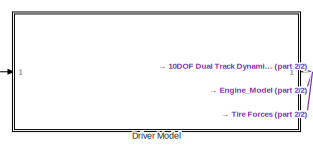
[diagram: root canvas - part 1/2, top left region]
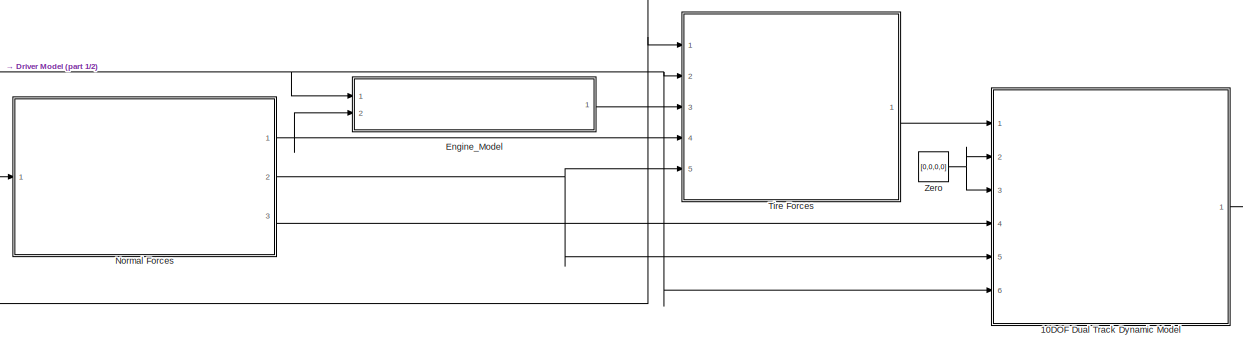
[diagram: root canvas - part 2/2, most of the canvas]
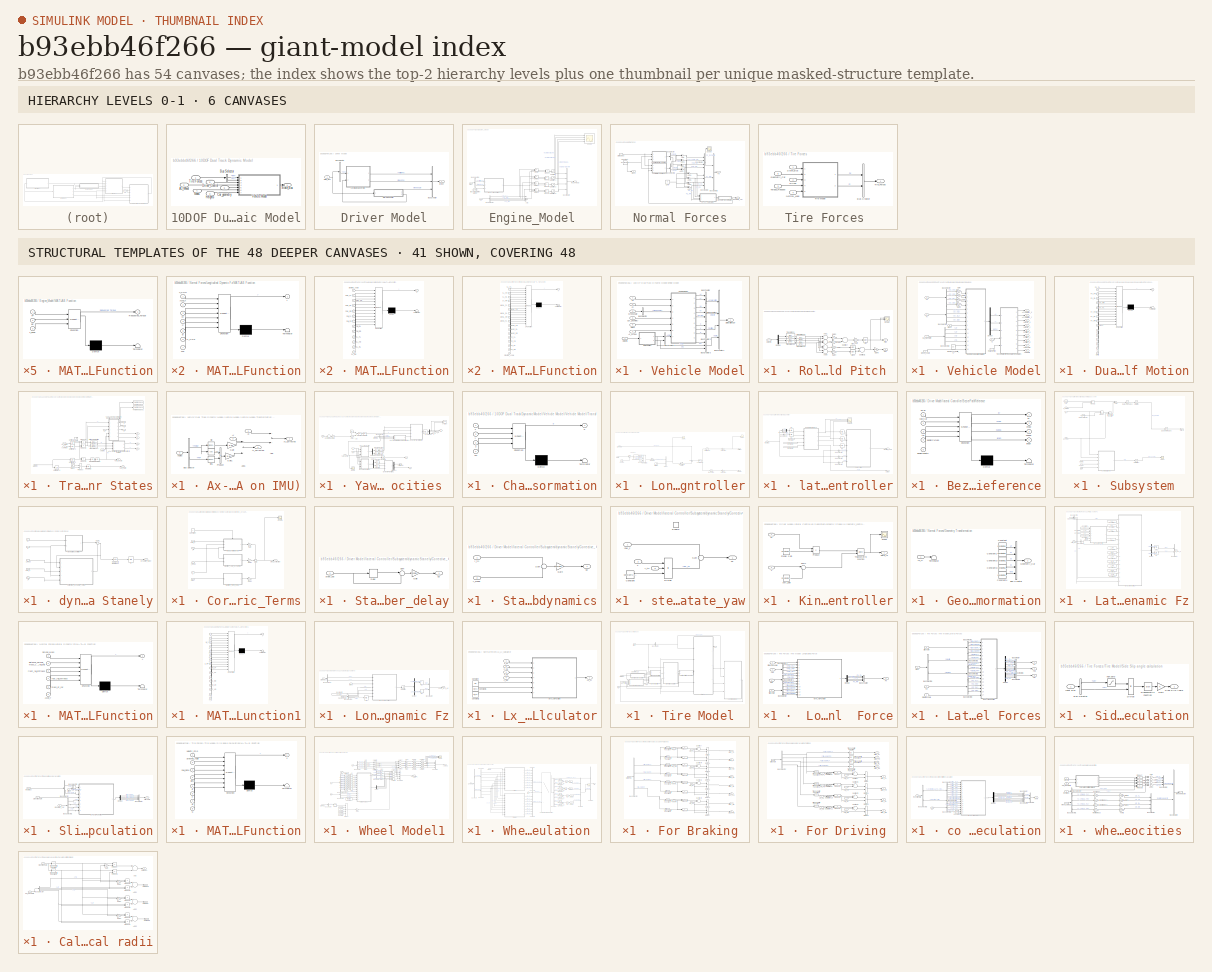
[diagram: thumbnail index - top-2 hierarchy levels (6 canvases) + 41 structural-template representatives of the remaining 48 canvases]
MODEL slx_b93ebb46f266
KIND model
CONFIG AbsTol = auto
CONFIG EnableMultiTasking = off
CONFIG FixedStep = 0.01
CONFIG MaxStep = auto
CONFIG MinStep = auto
CONFIG RelTol = 1e-3
CONFIG SampleTimeConstraint = Unconstrained
CONFIG Solver = ode1
CONFIG SolverName = ode1
CONFIG StartTime = 0.0
CONFIG StopTime = 170
BLOCK [SubSystem] 10DOF Dual Track Dynamic Model
  Ports = [6, 1]
  RequestExecContextInheritance = off
BLOCK [Inport] 10DOF Dual Track Dynamic Model/Az_Wheel
  IconDisplay = Port number
  Port = 2
BLOCK [BusSelector] 10DOF Dual Track Dynamic Model/Bus Selector
  OutputAsBus = off
  OutputSignals = Fx,Fy
  Ports = [1, 2]
BLOCK [Inport] 10DOF Dual Track Dynamic Model/Car_geometry
  IconDisplay = Port number
  Port = 5
BLOCK [Inport] 10DOF Dual Track Dynamic Model/Driver_Control
  IconDisplay = Port number
  Port = 6
BLOCK [Inport] 10DOF Dual Track Dynamic Model/Heights
  IconDisplay = Port number
  Port = 3
BLOCK [Inport] 10DOF Dual Track Dynamic Model/Mass
  IconDisplay = Port number
  Port = 4
BLOCK [Outport] 10DOF Dual Track Dynamic Model/State_Bus
  IconDisplay = Port number
  VectorParamsAs1DForOutWhenUnconnected = off
BLOCK [Inport] 10DOF Dual Track Dynamic Model/Tire Forces
  IconDisplay = Port number
BLOCK [SubSystem] 10DOF Dual Track Dynamic Model/Vehicle Model
  Ports = [7, 1]
  RequestExecContextInheritance = off
BLOCK [Inport] 10DOF Dual Track Dynamic Model/Vehicle Model/Az_Wheel
  IconDisplay = Port number
  Port = 4
BLOCK [BusCreator] 10DOF Dual Track Dynamic Model/Vehicle Model/Bus Creator
  DisplayOption = bar
  InheritFromInputs = on
  Inputs = 2
  Ports = [2, 1]
BLOCK [BusCreator] 10DOF Dual Track Dynamic Model/Vehicle Model/Bus Creator1
  DisplayOption = bar
  InheritFromInputs = on
  Inputs = 3
  Ports = [3, 1]
BLOCK [BusCreator] 10DOF Dual Track Dynamic Model/Vehicle Model/Bus Creator2
  DisplayOption = bar
  InheritFromInputs = on
  Inputs = 3
  Ports = [3, 1]
BLOCK [BusCreator] 10DOF Dual Track Dynamic Model/Vehicle Model/Bus Creator3
  DisplayOption = bar
  InheritFromInputs = on
  Inputs = 3
  Ports = [3, 1]
BLOCK [BusCreator] 10DOF Dual Track Dynamic Model/Vehicle Model/Bus Creator4
  DisplayOption = bar
  InheritFromInputs = on
  Inputs = 4
  Ports = [4, 1]
BLOCK [BusCreator] 10DOF Dual Track Dynamic Model/Vehicle Model/Bus Creator5
  DisplayOption = bar
  InheritFromInputs = on
  Inputs = 2
  Ports = [2, 1]
BLOCK [BusSelector] 10DOF Dual Track Dynamic Model/Vehicle Model/Bus Selector
  OutputAsBus = off
  OutputSignals = WheelAngle
  Ports = [1, 1]
BLOCK [Inport] 10DOF Dual Track Dynamic Model/Vehicle Model/Car_geometry
  IconDisplay = Port number
  Port = 5
BLOCK [Inport] 10DOF Dual Track Dynamic Model/Vehicle Model/Fx
  IconDisplay = Port number
BLOCK [Inport] 10DOF Dual Track Dynamic Model/Vehicle Model/Fy
  IconDisplay = Port number
  Port = 2
BLOCK [Inport] 10DOF Dual Track Dynamic Model/Vehicle Model/Heights
  IconDisplay = Port number
  Port = 7
BLOCK [Inport] 10DOF Dual Track Dynamic Model/Vehicle Model/Mass
  IconDisplay = Port number
  Port = 6
BLOCK [SubSystem] 10DOF Dual Track Dynamic Model/Vehicle Model/Roll And Pitch 
  Ports = [1, 2]
  RequestExecContextInheritance = off
BLOCK [Sum] 10DOF Dual Track Dynamic Model/Vehicle Model/Roll And Pitch /Add1
  InputSameDT = off
  OutDataTypeStr = Inherit: Inherit via internal rule
  Ports = [2, 1]
  SaturateOnIntegerOverflow = off
BLOCK [Sum] 10DOF Dual Track Dynamic Model/Vehicle Model/Roll And Pitch /Add2
  InputSameDT = off
  OutDataTypeStr = Inherit: Inherit via internal rule
  Ports = [2, 1]
  SaturateOnIntegerOverflow = off
BLOCK [Sum] 10DOF Dual Track Dynamic Model/Vehicle Model/Roll And Pitch /Add3
  InputSameDT = off
  Inputs = +-
  OutDataTypeStr = Inherit: Inherit via internal rule
  Ports = [2, 1]
  SaturateOnIntegerOverflow = off
BLOCK [Sum] 10DOF Dual Track Dynamic Model/Vehicle Model/Roll And Pitch /Add5
  InputSameDT = off
  Inputs = +-
  OutDataTypeStr = Inherit: Inherit via internal rule
  Ports = [2, 1]
  SaturateOnIntegerOverflow = off
BLOCK [Trigonometry] 10DOF Dual Track Dynamic Model/Vehicle Model/Roll And Pitch /Atan
  Operator = atan
  Ports = [1, 1]
BLOCK [Trigonometry] 10DOF Dual Track Dynamic Model/Vehicle Model/Roll And Pitch /Atan1
  Operator = atan
  Ports = [1, 1]
BLOCK [Trigonometry] 10DOF Dual Track Dynamic Model/Vehicle Model/Roll And Pitch /Atan2
  Operator = atan
  Ports = [1, 1]
BLOCK [Demux] 10DOF Dual Track Dynamic Model/Vehicle Model/Roll And Pitch /Demux
  DisplayOption = bar
  Ports = [1, 4]
BLOCK [Gain] 10DOF Dual Track Dynamic Model/Vehicle Model/Roll And Pitch /Gain
  Gain = 1/Constants.dim_param.wheel_base
  OutDataTypeStr = Inherit: Inherit via internal rule
  ParamDataTypeStr = Inherit: Inherit via internal rule
  SaturateOnIntegerOverflow = off
BLOCK [Gain] 10DOF Dual Track Dynamic Model/Vehicle Model/Roll And Pitch /Gain1
  Gain = 1/Constants.dim_param.front_track
  OutDataTypeStr = Inherit: Inherit via internal rule
  ParamDataTypeStr = Inherit: Inherit via internal rule
  SaturateOnIntegerOverflow = off
BLOCK [Gain] 10DOF Dual Track Dynamic Model/Vehicle Model/Roll And Pitch /Gain2
  Gain = 0.5
  OutDataTypeStr = Inherit: Inherit via internal rule
  ParamDataTypeStr = Inherit: Inherit via internal rule
  SaturateOnIntegerOverflow = off
BLOCK [Gain] 10DOF Dual Track Dynamic Model/Vehicle Model/Roll And Pitch /Gain3
  Gain = 0.5
  OutDataTypeStr = Inherit: Inherit via internal rule
  ParamDataTypeStr = Inherit: Inherit via internal rule
  SaturateOnIntegerOverflow = off
BLOCK [Gain] 10DOF Dual Track Dynamic Model/Vehicle Model/Roll And Pitch /Gain4
  Gain = 1/Constants.dim_param.rear_track
  OutDataTypeStr = Inherit: Inherit via internal rule
  ParamDataTypeStr = Inherit: Inherit via internal rule
  SaturateOnIntegerOverflow = off
BLOCK [Gain] 10DOF Dual Track Dynamic Model/Vehicle Model/Roll And Pitch /Gain5
  Gain = -0.5
  OutDataTypeStr = Inherit: Inherit via internal rule
  ParamDataTypeStr = Inherit: Inherit via internal rule
  SaturateOnIntegerOverflow = off
BLOCK [Inport] 10DOF Dual Track Dynamic Model/Vehicle Model/Roll And Pitch /Heights
  IconDisplay = Port number
BLOCK [Outport] 10DOF Dual Track Dynamic Model/Vehicle Model/Roll And Pitch /Pitch
  IconDisplay = Port number
  VectorParamsAs1DForOutWhenUnconnected = off
BLOCK [Outport] 10DOF Dual Track Dynamic Model/Vehicle Model/Roll And Pitch /Roll
  IconDisplay = Port number
  Port = 2
  VectorParamsAs1DForOutWhenUnconnected = off
BLOCK [Scope] 10DOF Dual Track Dynamic Model/Vehicle Model/Roll And Pitch /Scope
  Floating = off
  NumInputPorts = 2
  Ports = [2]
  ScopeSpecificationString = Simulink.scopes.TimeScopeBlockCfg('CurrentConfiguration', extmgr.ConfigurationSet(extmgr.Configuration('Core','General UI',true),extmgr.Configuration('Core','Source UI',true),extmgr.Configuration('Sources','WiredSimulink',true,'DataLoggingVariableName','ScopeData1'),extmgr.Configuration('Visuals','Time Domain',true,'SerializedDisplays',{struct('MinYLimReal','-1.00000','MaxYLimReal','1.00000','YLab...<+1375ch>
BLOCK [Sum] 10DOF Dual Track Dynamic Model/Vehicle Model/Roll And Pitch /Subtract
  InputSameDT = off
  Inputs = -+
  OutDataTypeStr = Inherit: Inherit via internal rule
  Ports = [2, 1]
  SaturateOnIntegerOverflow = off
BLOCK [Sum] 10DOF Dual Track Dynamic Model/Vehicle Model/Roll And Pitch /Subtract1
  InputSameDT = off
  OutDataTypeStr = Inherit: Inherit via internal rule
  Ports = [2, 1]
  SaturateOnIntegerOverflow = off
BLOCK [TransferFcn] 10DOF Dual Track Dynamic Model/Vehicle Model/Roll And Pitch /Transfer Fcn
  Denominator = [1 Ts]
  Numerator = [Ts]
BLOCK [TransferFcn] 10DOF Dual Track Dynamic Model/Vehicle Model/Roll And Pitch /Transfer Fcn1
  Denominator = [1 Ts]
  Numerator = [Ts]
BLOCK [TransferFcn] 10DOF Dual Track Dynamic Model/Vehicle Model/Roll And Pitch /Transfer Fcn2
  Denominator = [1 Ts]
  Numerator = [Ts]
BLOCK [TransferFcn] 10DOF Dual Track Dynamic Model/Vehicle Model/Roll And Pitch /Transfer Fcn3
  Denominator = [1 Ts]
  Numerator = [Ts]
BLOCK [Outport] 10DOF Dual Track Dynamic Model/Vehicle Model/States Of the Car
  IconDisplay = Port number
  VectorParamsAs1DForOutWhenUnconnected = off
BLOCK [SubSystem] 10DOF Dual Track Dynamic Model/Vehicle Model/Vehicle Model
  Ports = [7, 9]
  RequestExecContextInheritance = off
BLOCK [Outport] 10DOF Dual Track Dynamic Model/Vehicle Model/Vehicle Model/Acceleration_X
  IconDisplay = Port number
  VectorParamsAs1DForOutWhenUnconnected = off
BLOCK [Outport] 10DOF Dual Track Dynamic Model/Vehicle Model/Vehicle Model/Acceleration_Y
  IconDisplay = Port number
  Port = 2
  VectorParamsAs1DForOutWhenUnconnected = off
BLOCK [Inport] 10DOF Dual Track Dynamic Model/Vehicle Model/Vehicle Model/Az
  IconDisplay = Port number
  Port = 6
BLOCK [BusSelector] 10DOF Dual Track Dynamic Model/Vehicle Model/Vehicle Model/Bus Selector
  OutputAsBus = off
  OutputSignals = Fx_FR,Fx_FR,Fx_RL,Fx_RR
  Ports = [1, 4]
BLOCK [BusSelector] 10DOF Dual Track Dynamic Model/Vehicle Model/Vehicle Model/Bus Selector1
  OutputAsBus = off
  OutputSignals = Fy_FL,Fy_FR,Fy_RL,Fy_RR
  Ports = [1, 4]
BLOCK [BusSelector] 10DOF Dual Track Dynamic Model/Vehicle Model/Vehicle Model/Bus Selector2
  OutputAsBus = off
  OutputSignals = Lf,Lr,Tf,Tr
  Ports = [1, 4]
BLOCK [Inport] 10DOF Dual Track Dynamic Model/Vehicle Model/Vehicle Model/Car_Geometry
  IconDisplay = Port number
  Port = 4
BLOCK [Demux] 10DOF Dual Track Dynamic Model/Vehicle Model/Vehicle Model/Demux
  DisplayOption = bar
  Outputs = 3
  Ports = [1, 3]
BLOCK [SubSystem] 10DOF Dual Track Dynamic Model/Vehicle Model/Vehicle Model/Dual Track Equation of Motion
  ErrorFcn = Stateflow.Translate.translate
  PermitHierarchicalResolution = ExplicitOnly
  Ports = [15, 1]
  RequestExecContextInheritance = off
  SFBlockType = MATLAB Function
  TreatAsAtomicUnit = on
BLOCK [Demux] 10DOF Dual Track Dynamic Model/Vehicle Model/Vehicle Model/Dual Track Equation of Motion/ Demux 
  Outputs = 1
  Ports = [1, 1]
BLOCK [S-Function] 10DOF Dual Track Dynamic Model/Vehicle Model/Vehicle Model/Dual Track Equation of Motion/ SFunction 
  EnableBusSupport = on
  FunctionName = sf_sfun
  PortCounts = [15 2]
  Ports = [15, 2]
  SFcnIsStateOwnerBlock = off
  SFunctionDeploymentMode = off
  Tag = Stateflow S-Function 18
BLOCK [Terminator] 10DOF Dual Track Dynamic Model/Vehicle Model/Vehicle Model/Dual Track Equation of Motion/ Terminator 
BLOCK [Inport] 10DOF Dual Track Dynamic Model/Vehicle Model/Vehicle Model/Dual Track Equation of Motion/Delta
  IconDisplay = Port number
  Port = 15
BLOCK [Inport] 10DOF Dual Track Dynamic Model/Vehicle Model/Vehicle Model/Dual Track Equation of Motion/Fx_FL
  IconDisplay = Port number
BLOCK [Inport] 10DOF Dual Track Dynamic Model/Vehicle Model/Vehicle Model/Dual Track Equation of Motion/Fx_FR
  IconDisplay = Port number
  Port = 2
BLOCK [Inport] 10DOF Dual Track Dynamic Model/Vehicle Model/Vehicle Model/Dual Track Equation of Motion/Fx_RL
  IconDisplay = Port number
  Port = 3
BLOCK [Inport] 10DOF Dual Track Dynamic Model/Vehicle Model/Vehicle Model/Dual Track Equation of Motion/Fx_RR
  IconDisplay = Port number
  Port = 4
BLOCK [Inport] 10DOF Dual Track Dynamic Model/Vehicle Model/Vehicle Model/Dual Track Equation of Motion/Fy_FL
  IconDisplay = Port number
  Port = 5
BLOCK [Inport] 10DOF Dual Track Dynamic Model/Vehicle Model/Vehicle Model/Dual Track Equation of Motion/Fy_FR
  IconDisplay = Port number
  Port = 6
BLOCK [Inport] 10DOF Dual Track Dynamic Model/Vehicle Model/Vehicle Model/Dual Track Equation of Motion/Fy_RL
  IconDisplay = Port number
  Port = 7
BLOCK [Inport] 10DOF Dual Track Dynamic Model/Vehicle Model/Vehicle Model/Dual Track Equation of Motion/Fy_RR
  IconDisplay = Port number
  Port = 8
BLOCK [Inport] 10DOF Dual Track Dynamic Model/Vehicle Model/Vehicle Model/Dual Track Equation of Motion/Jz
  IconDisplay = Port number
  Port = 14
BLOCK [Inport] 10DOF Dual Track Dynamic Model/Vehicle Model/Vehicle Model/Dual Track Equation of Motion/Lf
  IconDisplay = Port number
  Port = 10
BLOCK [Inport] 10DOF Dual Track Dynamic Model/Vehicle Model/Vehicle Model/Dual Track Equation of Motion/Lr
  IconDisplay = Port number
  Port = 11
BLOCK [Inport] 10DOF Dual Track Dynamic Model/Vehicle Model/Vehicle Model/Dual Track Equation of Motion/Mass
  IconDisplay = Port number
  Port = 9
BLOCK [Inport] 10DOF Dual Track Dynamic Model/Vehicle Model/Vehicle Model/Dual Track Equation of Motion/Tf
  IconDisplay = Port number
  Port = 12
BLOCK [Inport] 10DOF Dual Track Dynamic Model/Vehicle Model/Vehicle Model/Dual Track Equation of Motion/Tr
  IconDisplay = Port number
  Port = 13
BLOCK [Outport] 10DOF Dual Track Dynamic Model/Vehicle Model/Vehicle Model/Dual Track Equation of Motion/y
  IconDisplay = Port number
  VectorParamsAs1DForOutWhenUnconnected = off
BLOCK [Inport] 10DOF Dual Track Dynamic Model/Vehicle Model/Vehicle Model/Fx
  IconDisplay = Port number
BLOCK [Inport] 10DOF Dual Track Dynamic Model/Vehicle Model/Vehicle Model/Fy 
  IconDisplay = Port number
  Port = 2
BLOCK [Gain] 10DOF Dual Track Dynamic Model/Vehicle Model/Vehicle Model/Gain
  Gain = 1/(Radius)
  OutDataTypeStr = Inherit: Inherit via internal rule
  ParamDataTypeStr = Inherit: Inherit via internal rule
  SaturateOnIntegerOverflow = off
BLOCK [Gain] 10DOF Dual Track Dynamic Model/Vehicle Model/Vehicle Model/Gain1
  Gain = 1/(Radius)
  OutDataTypeStr = Inherit: Inherit via internal rule
  ParamDataTypeStr = Inherit: Inherit via internal rule
  SaturateOnIntegerOverflow = off
BLOCK [Gain] 10DOF Dual Track Dynamic Model/Vehicle Model/Vehicle Model/Gain2
  Gain = 1/(Radius)
  OutDataTypeStr = Inherit: Inherit via internal rule
  ParamDataTypeStr = Inherit: Inherit via internal rule
  SaturateOnIntegerOverflow = off
BLOCK [Gain] 10DOF Dual Track Dynamic Model/Vehicle Model/Vehicle Model/Gain3
  Gain = 1/(Radius)
  OutDataTypeStr = Inherit: Inherit via internal rule
  ParamDataTypeStr = Inherit: Inherit via internal rule
  SaturateOnIntegerOverflow = off
BLOCK [Inport] 10DOF Dual Track Dynamic Model/Vehicle Model/Vehicle Model/Mass
  IconDisplay = Port number
  Port = 5
BLOCK [Constant] 10DOF Dual Track Dynamic Model/Vehicle Model/Vehicle Model/Moment_of_Inertia_Z
  Value = Jz
BLOCK [Outport] 10DOF Dual Track Dynamic Model/Vehicle Model/Vehicle Model/Position_X
  IconDisplay = Port number
  Port = 6
  VectorParamsAs1DForOutWhenUnconnected = off
BLOCK [Outport] 10DOF Dual Track Dynamic Model/Vehicle Model/Vehicle Model/Position_Y
  IconDisplay = Port number
  Port = 7
  VectorParamsAs1DForOutWhenUnconnected = off
BLOCK [Outport] 10DOF Dual Track Dynamic Model/Vehicle Model/Vehicle Model/Position_Z
  IconDisplay = Port number
  Port = 8
  VectorParamsAs1DForOutWhenUnconnected = off
BLOCK [Inport] 10DOF Dual Track Dynamic Model/Vehicle Model/Vehicle Model/Roll and Pitch
  IconDisplay = Port number
  Port = 7
BLOCK [SubSystem] 10DOF Dual Track Dynamic Model/Vehicle Model/Vehicle Model/Transformation from Raw States to Car States
  Ports = [5, 9]
  RequestExecContextInheritance = off
BLOCK [Inport] 10DOF Dual Track Dynamic Model/Vehicle Model/Vehicle Model/Transformation from Raw States to Car States/Angles
  IconDisplay = Port number
  Port = 5
BLOCK [Outport] 10DOF Dual Track Dynamic Model/Vehicle Model/Vehicle Model/Transformation from Raw States to Car States/Ax
  IconDisplay = Port number
  VectorParamsAs1DForOutWhenUnconnected = off
BLOCK [SubSystem] 10DOF Dual Track Dynamic Model/Vehicle Model/Vehicle Model/Transformation from Raw States to Car States/Ax-Ay Correction (Roll and Pitch effects on IMU)
  Ports = [3, 2]
  RequestExecContextInheritance = off
BLOCK [Sum] 10DOF Dual Track Dynamic Model/Vehicle Model/Vehicle Model/Transformation from Raw States to Car States/Ax-Ay Correction (Roll and Pitch effects on IMU)/Add
  InputSameDT = off
  OutDataTypeStr = Inherit: Inherit via internal rule
  Ports = [2, 1]
  SaturateOnIntegerOverflow = off
BLOCK [Sum] 10DOF Dual Track Dynamic Model/Vehicle Model/Vehicle Model/Transformation from Raw States to Car States/Ax-Ay Correction (Roll and Pitch effects on IMU)/Add1
  InputSameDT = off
  Inputs = +-
  OutDataTypeStr = Inherit: Inherit via internal rule
  Ports = [2, 1]
  SaturateOnIntegerOverflow = off
BLOCK [Inport] 10DOF Dual Track Dynamic Model/Vehicle Model/Vehicle Model/Transformation from Raw States to Car States/Ax-Ay Correction (Roll and Pitch effects on IMU)/Angles 
  IconDisplay = Port number
  Port = 3
BLOCK [Inport] 10DOF Dual Track Dynamic Model/Vehicle Model/Vehicle Model/Transformation from Raw States to Car States/Ax-Ay Correction (Roll and Pitch effects on IMU)/Ax
  IconDisplay = Port number
BLOCK [Outport] 10DOF Dual Track Dynamic Model/Vehicle Model/Vehicle Model/Transformation from Raw States to Car States/Ax-Ay Correction (Roll and Pitch effects on IMU)/Ax_Corrected
  IconDisplay = Port number
  VectorParamsAs1DForOutWhenUnconnected = off
BLOCK [Inport] 10DOF Dual Track Dynamic Model/Vehicle Model/Vehicle Model/Transformation from Raw States to Car States/Ax-Ay Correction (Roll and Pitch effects on IMU)/Ay
  IconDisplay = Port number
  Port = 2
BLOCK [Outport] 10DOF Dual Track Dynamic Model/Vehicle Model/Vehicle Model/Transformation from Raw States to Car States/Ax-Ay Correction (Roll and Pitch effects on IMU)/Ay_Corrected 
  IconDisplay = Port number
  Port = 2
  VectorParamsAs1DForOutWhenUnconnected = off
BLOCK [BusSelector] 10DOF Dual Track Dynamic Model/Vehicle Model/Vehicle Model/Transformation from Raw States to Car States/Ax-Ay Correction (Roll and Pitch effects on IMU)/Bus Selector
  OutputAsBus = off
  OutputSignals = Theta,Phi
  Ports = [1, 2]
BLOCK [Trigonometry] 10DOF Dual Track Dynamic Model/Vehicle Model/Vehicle Model/Transformation from Raw States to Car States/Ax-Ay Correction (Roll and Pitch effects on IMU)/Cos
  Operator = cos
  Ports = [1, 1]
BLOCK [Gain] 10DOF Dual Track Dynamic Model/Vehicle Model/Vehicle Model/Transformation from Raw States to Car States/Ax-Ay Correction (Roll and Pitch effects on IMU)/Gain
  Gain = 9.81
  OutDataTypeStr = Inherit: Inherit via internal rule
  ParamDataTypeStr = Inherit: Inherit via internal rule
  SaturateOnIntegerOverflow = off
BLOCK [Gain] 10DOF Dual Track Dynamic Model/Vehicle Model/Vehicle Model/Transformation from Raw States to Car States/Ax-Ay Correction (Roll and Pitch effects on IMU)/Gain1
  Gain = 9.81
  OutDataTypeStr = Inherit: Inherit via internal rule
  ParamDataTypeStr = Inherit: Inherit via internal rule
  SaturateOnIntegerOverflow = off
BLOCK [Product] 10DOF Dual Track Dynamic Model/Vehicle Model/Vehicle Model/Transformation from Raw States to Car States/Ax-Ay Correction (Roll and Pitch effects on IMU)/Product
  InputSameDT = off
  OutDataTypeStr = Inherit: Inherit via internal rule
  Ports = [2, 1]
  RndMeth = Floor
  SaturateOnIntegerOverflow = off
BLOCK [Trigonometry] 10DOF Dual Track Dynamic Model/Vehicle Model/Vehicle Model/Transformation from Raw States to Car States/Ax-Ay Correction (Roll and Pitch effects on IMU)/Sin
  Ports = [1, 1]
BLOCK [Trigonometry] 10DOF Dual Track Dynamic Model/Vehicle Model/Vehicle Model/Transformation from Raw States to Car States/Ax-Ay Correction (Roll and Pitch effects on IMU)/Sin1
  Ports = [1, 1]
BLOCK [Inport] 10DOF Dual Track Dynamic Model/Vehicle Model/Vehicle Model/Transformation from Raw States to Car States/Ax_Raw
  IconDisplay = Port number
BLOCK [Outport] 10DOF Dual Track Dynamic Model/Vehicle Model/Vehicle Model/Transformation from Raw States to Car States/Ay
  IconDisplay = Port number
  Port = 2
  VectorParamsAs1DForOutWhenUnconnected = off
BLOCK [Inport] 10DOF Dual Track Dynamic Model/Vehicle Model/Vehicle Model/Transformation from Raw States to Car States/Ay_Raw
  IconDisplay = Port number
  Port = 2
BLOCK [Inport] 10DOF Dual Track Dynamic Model/Vehicle Model/Vehicle Model/Transformation from Raw States to Car States/Az
  IconDisplay = Port number
  Port = 4
BLOCK [TransferFcn] 10DOF Dual Track Dynamic Model/Vehicle Model/Vehicle Model/Transformation from Raw States to Car States/Filter sampling time
  Denominator = [1 Ts]
  Numerator = [Ts]
BLOCK [Integrator] 10DOF Dual Track Dynamic Model/Vehicle Model/Vehicle Model/Transformation from Raw States to Car States/Integrator1
  Ports = [1, 1]
BLOCK [Integrator] 10DOF Dual Track Dynamic Model/Vehicle Model/Vehicle Model/Transformation from Raw States to Car States/Integrator2
  InitialCondition = 0.0000000001
  Ports = [1, 1]
BLOCK [Integrator] 10DOF Dual Track Dynamic Model/Vehicle Model/Vehicle Model/Transformation from Raw States to Car States/Integrator6
  Ports = [1, 1]
BLOCK [Product] 10DOF Dual Track Dynamic Model/Vehicle Model/Vehicle Model/Transformation from Raw States to Car States/Product
  InputSameDT = off
  OutDataTypeStr = Inherit: Inherit via internal rule
  Ports = [2, 1]
  RndMeth = Floor
  SaturateOnIntegerOverflow = off
BLOCK [Product] 10DOF Dual Track Dynamic Model/Vehicle Model/Vehicle Model/Transformation from Raw States to Car States/Product1
  InputSameDT = off
  OutDataTypeStr = Inherit: Inherit via internal rule
  Ports = [2, 1]
  RndMeth = Floor
  SaturateOnIntegerOverflow = off
BLOCK [Product] 10DOF Dual Track Dynamic Model/Vehicle Model/Vehicle Model/Transformation from Raw States to Car States/Product2
  InputSameDT = off
  OutDataTypeStr = Inherit: Inherit via internal rule
  Ports = [2, 1]
  RndMeth = Floor
  SaturateOnIntegerOverflow = off
BLOCK [Product] 10DOF Dual Track Dynamic Model/Vehicle Model/Vehicle Model/Transformation from Raw States to Car States/Product3
  InputSameDT = off
  OutDataTypeStr = Inherit: Inherit via internal rule
  Ports = [2, 1]
  RndMeth = Floor
  SaturateOnIntegerOverflow = off
BLOCK [Step] 10DOF Dual Track Dynamic Model/Vehicle Model/Vehicle Model/Transformation from Raw States to Car States/Step
  Time = 2
BLOCK [Step] 10DOF Dual Track Dynamic Model/Vehicle Model/Vehicle Model/Transformation from Raw States to Car States/Step1
  Time = 2.00000
BLOCK [ToWorkspace] 10DOF Dual Track Dynamic Model/Vehicle Model/Vehicle Model/Transformation from Raw States to Car States/To Workspace
  FixptAsFi = on
  MaxDataPoints = inf
  Ports = [1]
  SampleTime = -1
  VariableName = xout
BLOCK [ToWorkspace] 10DOF Dual Track Dynamic Model/Vehicle Model/Vehicle Model/Transformation from Raw States to Car States/To Workspace1
  FixptAsFi = on
  MaxDataPoints = inf
  Ports = [1]
  SampleTime = -1
  VariableName = yout
BLOCK [TransferFcn] 10DOF Dual Track Dynamic Model/Vehicle Model/Vehicle Model/Transformation from Raw States to Car States/Transfer Fcn1
  Denominator = [1 Ts]
  Numerator = [Ts]
BLOCK [UnitDelay] 10DOF Dual Track Dynamic Model/Vehicle Model/Vehicle Model/Transformation from Raw States to Car States/Unit Delay1
  HasFrameUpgradeWarning = on
  SampleTime = -1
BLOCK [UnitDelay] 10DOF Dual Track Dynamic Model/Vehicle Model/Vehicle Model/Transformation from Raw States to Car States/Unit Delay2
  HasFrameUpgradeWarning = on
  SampleTime = -1
BLOCK [UnitDelay] 10DOF Dual Track Dynamic Model/Vehicle Model/Vehicle Model/Transformation from Raw States to Car States/Unit Delay3
  HasFrameUpgradeWarning = on
  SampleTime = -1
BLOCK [UnitDelay] 10DOF Dual Track Dynamic Model/Vehicle Model/Vehicle Model/Transformation from Raw States to Car States/Unit Delay4
  HasFrameUpgradeWarning = on
  InitialCondition = 0.1
  SampleTime = -1
BLOCK [Outport] 10DOF Dual Track Dynamic Model/Vehicle Model/Vehicle Model/Transformation from Raw States to Car States/Vx
  IconDisplay = Port number
  Port = 3
  VectorParamsAs1DForOutWhenUnconnected = off
BLOCK [Outport] 10DOF Dual Track Dynamic Model/Vehicle Model/Vehicle Model/Transformation from Raw States to Car States/Vy
  IconDisplay = Port number
  Port = 4
  VectorParamsAs1DForOutWhenUnconnected = off
BLOCK [Outport] 10DOF Dual Track Dynamic Model/Vehicle Model/Vehicle Model/Transformation from Raw States to Car States/X
  IconDisplay = Port number
  Port = 5
  VectorParamsAs1DForOutWhenUnconnected = off
BLOCK [Outport] 10DOF Dual Track Dynamic Model/Vehicle Model/Vehicle Model/Transformation from Raw States to Car States/Y
  IconDisplay = Port number
  Port = 6
  VectorParamsAs1DForOutWhenUnconnected = off
BLOCK [SubSystem] 10DOF Dual Track Dynamic Model/Vehicle Model/Vehicle Model/Transformation from Raw States to Car States/Yaw Angle Transformation Positions and Velocities 
  Ports = [5, 5]
  RequestExecContextInheritance = off
BLOCK [Sum] 10DOF Dual Track Dynamic Model/Vehicle Model/Vehicle Model/Transformation from Raw States to Car States/Yaw Angle Transformation Positions and Velocities /Add
  InputSameDT = off
  OutDataTypeStr = Inherit: Inherit via internal rule
  Ports = [2, 1]
  SaturateOnIntegerOverflow = off
BLOCK [Inport] 10DOF Dual Track Dynamic Model/Vehicle Model/Vehicle Model/Transformation from Raw States to Car States/Yaw Angle Transformation Positions and Velocities /Ax
  IconDisplay = Port number
BLOCK [Inport] 10DOF Dual Track Dynamic Model/Vehicle Model/Vehicle Model/Transformation from Raw States to Car States/Yaw Angle Transformation Positions and Velocities /Ay
  IconDisplay = Port number
  Port = 2
BLOCK [Inport] 10DOF Dual Track Dynamic Model/Vehicle Model/Vehicle Model/Transformation from Raw States to Car States/Yaw Angle Transformation Positions and Velocities /Az 
  IconDisplay = Port number
  Port = 3
BLOCK [BusSelector] 10DOF Dual Track Dynamic Model/Vehicle Model/Vehicle Model/Transformation from Raw States to Car States/Yaw Angle Transformation Positions and Velocities /Bus Selector
  OutputAsBus = off
  OutputSignals = Phi,Theta
  Ports = [1, 2]
BLOCK [SubSystem] 10DOF Dual Track Dynamic Model/Vehicle Model/Vehicle Model/Transformation from Raw States to Car States/Yaw Angle Transformation Positions and Velocities /Chassis Transformation
  ErrorFcn = Stateflow.Translate.translate
  PermitHierarchicalResolution = ExplicitOnly
  Ports = [4, 1]
  RequestExecContextInheritance = off
  SFBlockType = MATLAB Function
  TreatAsAtomicUnit = on
BLOCK [Demux] 10DOF Dual Track Dynamic Model/Vehicle Model/Vehicle Model/Transformation from Raw States to Car States/Yaw Angle Transformation Positions and Velocities /Chassis Transformation/ Demux 
  Outputs = 1
  Ports = [1, 1]
BLOCK [S-Function] 10DOF Dual Track Dynamic Model/Vehicle Model/Vehicle Model/Transformation from Raw States to Car States/Yaw Angle Transformation Positions and Velocities /Chassis Transformation/ SFunction 
  EnableBusSupport = on
  FunctionName = sf_sfun
  PortCounts = [4 2]
  Ports = [4, 2]
  SFcnIsStateOwnerBlock = off
  SFunctionDeploymentMode = off
  Tag = Stateflow S-Function 2
BLOCK [Terminator] 10DOF Dual Track Dynamic Model/Vehicle Model/Vehicle Model/Transformation from Raw States to Car States/Yaw Angle Transformation Positions and Velocities /Chassis Transformation/ Terminator 
BLOCK [Inport] 10DOF Dual Track Dynamic Model/Vehicle Model/Vehicle Model/Transformation from Raw States to Car States/Yaw Angle Transformation Positions and Velocities /Chassis Transformation/TM
  IconDisplay = Port number
  Port = 4
BLOCK [Outport] 10DOF Dual Track Dynamic Model/Vehicle Model/Vehicle Model/Transformation from Raw States to Car States/Yaw Angle Transformation Positions and Velocities /Chassis Transformation/p
  IconDisplay = Port number
  VectorParamsAs1DForOutWhenUnconnected = off
BLOCK [Inport] 10DOF Dual Track Dynamic Model/Vehicle Model/Vehicle Model/Transformation from Raw States to Car States/Yaw Angle Transformation Positions and Velocities /Chassis Transformation/x
  IconDisplay = Port number
BLOCK [Inport] 10DOF Dual Track Dynamic Model/Vehicle Model/Vehicle Model/Transformation from Raw States to Car States/Yaw Angle Transformation Positions and Velocities /Chassis Transformation/y
  IconDisplay = Port number
  Port = 2
BLOCK [Inport] 10DOF Dual Track Dynamic Model/Vehicle Model/Vehicle Model/Transformation from Raw States to Car States/Yaw Angle Transformation Positions and Velocities /Chassis Transformation/z
  IconDisplay = Port number
  Port = 3
BLOCK [Demux] 10DOF Dual Track Dynamic Model/Vehicle Model/Vehicle Model/Transformation from Raw States to Car States/Yaw Angle Transformation Positions and Velocities /Demux
  DisplayOption = bar
  Outputs = 2
  Ports = [1, 2]
BLOCK [Demux] 10DOF Dual Track Dynamic Model/Vehicle Model/Vehicle Model/Transformation from Raw States to Car States/Yaw Angle Transformation Positions and Velocities /Demux1
  DisplayOption = bar
  Outputs = 2
  Ports = [1, 2]
BLOCK [Demux] 10DOF Dual Track Dynamic Model/Vehicle Model/Vehicle Model/Transformation from Raw States to Car States/Yaw Angle Transformation Positions and Velocities /Demux2
  DisplayOption = bar
  Outputs = 2
  Ports = [1, 2]
BLOCK [Demux] 10DOF Dual Track Dynamic Model/Vehicle Model/Vehicle Model/Transformation from Raw States to Car States/Yaw Angle Transformation Positions and Velocities /Demux3
  DisplayOption = bar
  Outputs = 3
  Ports = [1, 3]
BLOCK [Gain] 10DOF Dual Track Dynamic Model/Vehicle Model/Vehicle Model/Transformation from Raw States to Car States/Yaw Angle Transformation Positions and Velocities /Gain
  Gain = 0.25
  OutDataTypeStr = Inherit: Inherit via internal rule
  ParamDataTypeStr = Inherit: Inherit via internal rule
  SaturateOnIntegerOverflow = off
BLOCK [Gain] 10DOF Dual Track Dynamic Model/Vehicle Model/Vehicle Model/Transformation from Raw States to Car States/Yaw Angle Transformation Positions and Velocities /Gain4
  Gain = -1
  OutDataTypeStr = Inherit: Inherit via internal rule
  ParamDataTypeStr = Inherit: Inherit via internal rule
  SaturateOnIntegerOverflow = off
BLOCK [InitialCondition] 10DOF Dual Track Dynamic Model/Vehicle Model/Vehicle Model/Transformation from Raw States to Car States/Yaw Angle Transformation Positions and Velocities /IC
  Value = [Constants.initial_param.X0;Constants.initial_param.Y0;Constants.initial_param.Z0]
BLOCK [Integrator] 10DOF Dual Track Dynamic Model/Vehicle Model/Vehicle Model/Transformation from Raw States to Car States/Yaw Angle Transformation Positions and Velocities /Integrator
  Ports = [1, 1]
BLOCK [Integrator] 10DOF Dual Track Dynamic Model/Vehicle Model/Vehicle Model/Transformation from Raw States to Car States/Yaw Angle Transformation Positions and Velocities /Integrator1
  Ports = [1, 1]
BLOCK [Integrator] 10DOF Dual Track Dynamic Model/Vehicle Model/Vehicle Model/Transformation from Raw States to Car States/Yaw Angle Transformation Positions and Velocities /Integrator2
  InitialCondition = Constants.initial_param.X0
  Ports = [1, 1]
BLOCK [Integrator] 10DOF Dual Track Dynamic Model/Vehicle Model/Vehicle Model/Transformation from Raw States to Car States/Yaw Angle Transformation Positions and Velocities /Integrator3
  InitialCondition = Constants.initial_param.Y0
  Ports = [1, 1]
BLOCK [Integrator] 10DOF Dual Track Dynamic Model/Vehicle Model/Vehicle Model/Transformation from Raw States to Car States/Yaw Angle Transformation Positions and Velocities /Integrator4
  Ports = [1, 1]
BLOCK [Integrator] 10DOF Dual Track Dynamic Model/Vehicle Model/Vehicle Model/Transformation from Raw States to Car States/Yaw Angle Transformation Positions and Velocities /Integrator5
  Ports = [1, 1]
BLOCK [Integrator] 10DOF Dual Track Dynamic Model/Vehicle Model/Vehicle Model/Transformation from Raw States to Car States/Yaw Angle Transformation Positions and Velocities /Integrator6
  InitialCondition = 0.1
  Ports = [1, 1]
BLOCK [Integrator] 10DOF Dual Track Dynamic Model/Vehicle Model/Vehicle Model/Transformation from Raw States to Car States/Yaw Angle Transformation Positions and Velocities /Integrator7
  Ports = [1, 1]
BLOCK [Integrator] 10DOF Dual Track Dynamic Model/Vehicle Model/Vehicle Model/Transformation from Raw States to Car States/Yaw Angle Transformation Positions and Velocities /Integrator8
  InitialCondition = Constants.initial_param.Z0
  Ports = [1, 1]
BLOCK [SubSystem] 10DOF Dual Track Dynamic Model/Vehicle Model/Vehicle Model/Transformation from Raw States to Car States/Yaw Angle Transformation Positions and Velocities /MATLAB Function
  ErrorFcn = Stateflow.Translate.translate
  PermitHierarchicalResolution = ExplicitOnly
  Ports = [3, 1]
  RequestExecContextInheritance = off
  SFBlockType = MATLAB Function
  TreatAsAtomicUnit = on
BLOCK [Demux] 10DOF Dual Track Dynamic Model/Vehicle Model/Vehicle Model/Transformation from Raw States to Car States/Yaw Angle Transformation Positions and Velocities /MATLAB Function/ Demux 
  Outputs = 1
  Ports = [1, 1]
BLOCK [S-Function] 10DOF Dual Track Dynamic Model/Vehicle Model/Vehicle Model/Transformation from Raw States to Car States/Yaw Angle Transformation Positions and Velocities /MATLAB Function/ SFunction 
  EnableBusSupport = on
  FunctionName = sf_sfun
  PortCounts = [3 2]
  Ports = [3, 2]
  SFcnIsStateOwnerBlock = off
  SFunctionDeploymentMode = off
  Tag = Stateflow S-Function 19
BLOCK [Terminator] 10DOF Dual Track Dynamic Model/Vehicle Model/Vehicle Model/Transformation from Raw States to Car States/Yaw Angle Transformation Positions and Velocities /MATLAB Function/ Terminator 
BLOCK [Inport] 10DOF Dual Track Dynamic Model/Vehicle Model/Vehicle Model/Transformation from Raw States to Car States/Yaw Angle Transformation Positions and Velocities /MATLAB Function/Ax
  IconDisplay = Port number
BLOCK [Inport] 10DOF Dual Track Dynamic Model/Vehicle Model/Vehicle Model/Transformation from Raw States to Car States/Yaw Angle Transformation Positions and Velocities /MATLAB Function/Ay
  IconDisplay = Port number
  Port = 2
BLOCK [Inport] 10DOF Dual Track Dynamic Model/Vehicle Model/Vehicle Model/Transformation from Raw States to Car States/Yaw Angle Transformation Positions and Velocities /MATLAB Function/Ya
  IconDisplay = Port number
  Port = 3
BLOCK [Outport] 10DOF Dual Track Dynamic Model/Vehicle Model/Vehicle Model/Transformation from Raw States to Car States/Yaw Angle Transformation Positions and Velocities /MATLAB Function/y
  IconDisplay = Port number
  VectorParamsAs1DForOutWhenUnconnected = off
BLOCK [SubSystem] 10DOF Dual Track Dynamic Model/Vehicle Model/Vehicle Model/Transformation from Raw States to Car States/Yaw Angle Transformation Positions and Velocities /MATLAB Function1
  ErrorFcn = Stateflow.Translate.translate
  PermitHierarchicalResolution = ExplicitOnly
  Ports = [3, 1]
  RequestExecContextInheritance = off
  SFBlockType = MATLAB Function
  TreatAsAtomicUnit = on
BLOCK [Demux] 10DOF Dual Track Dynamic Model/Vehicle Model/Vehicle Model/Transformation from Raw States to Car States/Yaw Angle Transformation Positions and Velocities /MATLAB Function1/ Demux 
  Outputs = 1
  Ports = [1, 1]
BLOCK [S-Function] 10DOF Dual Track Dynamic Model/Vehicle Model/Vehicle Model/Transformation from Raw States to Car States/Yaw Angle Transformation Positions and Velocities /MATLAB Function1/ SFunction 
  EnableBusSupport = on
  FunctionName = sf_sfun
  PortCounts = [3 2]
  Ports = [3, 2]
  SFcnIsStateOwnerBlock = off
  SFunctionDeploymentMode = off
  Tag = Stateflow S-Function 20
BLOCK [Terminator] 10DOF Dual Track Dynamic Model/Vehicle Model/Vehicle Model/Transformation from Raw States to Car States/Yaw Angle Transformation Positions and Velocities /MATLAB Function1/ Terminator 
BLOCK [Inport] 10DOF Dual Track Dynamic Model/Vehicle Model/Vehicle Model/Transformation from Raw States to Car States/Yaw Angle Transformation Positions and Velocities /MATLAB Function1/Ax
  IconDisplay = Port number
BLOCK [Inport] 10DOF Dual Track Dynamic Model/Vehicle Model/Vehicle Model/Transformation from Raw States to Car States/Yaw Angle Transformation Positions and Velocities /MATLAB Function1/Ay
  IconDisplay = Port number
  Port = 2
BLOCK [Inport] 10DOF Dual Track Dynamic Model/Vehicle Model/Vehicle Model/Transformation from Raw States to Car States/Yaw Angle Transformation Positions and Velocities /MATLAB Function1/Ya
  IconDisplay = Port number
  Port = 3
BLOCK [Outport] 10DOF Dual Track Dynamic Model/Vehicle Model/Vehicle Model/Transformation from Raw States to Car States/Yaw Angle Transformation Positions and Velocities /MATLAB Function1/y
  IconDisplay = Port number
  VectorParamsAs1DForOutWhenUnconnected = off
BLOCK [SubSystem] 10DOF Dual Track Dynamic Model/Vehicle Model/Vehicle Model/Transformation from Raw States to Car States/Yaw Angle Transformation Positions and Velocities /MATLAB Function2
  ErrorFcn = Stateflow.Translate.translate
  PermitHierarchicalResolution = ExplicitOnly
  Ports = [3, 1]
  RequestExecContextInheritance = off
  SFBlockType = MATLAB Function
  TreatAsAtomicUnit = on
BLOCK [Demux] 10DOF Dual Track Dynamic Model/Vehicle Model/Vehicle Model/Transformation from Raw States to Car States/Yaw Angle Transformation Positions and Velocities /MATLAB Function2/ Demux 
  Outputs = 1
  Ports = [1, 1]
BLOCK [S-Function] 10DOF Dual Track Dynamic Model/Vehicle Model/Vehicle Model/Transformation from Raw States to Car States/Yaw Angle Transformation Positions and Velocities /MATLAB Function2/ SFunction 
  EnableBusSupport = on
  FunctionName = sf_sfun
  PortCounts = [3 2]
  Ports = [3, 2]
  SFcnIsStateOwnerBlock = off
  SFunctionDeploymentMode = off
  Tag = Stateflow S-Function 21
BLOCK [Terminator] 10DOF Dual Track Dynamic Model/Vehicle Model/Vehicle Model/Transformation from Raw States to Car States/Yaw Angle Transformation Positions and Velocities /MATLAB Function2/ Terminator 
BLOCK [Inport] 10DOF Dual Track Dynamic Model/Vehicle Model/Vehicle Model/Transformation from Raw States to Car States/Yaw Angle Transformation Positions and Velocities /MATLAB Function2/Vx
  IconDisplay = Port number
BLOCK [Inport] 10DOF Dual Track Dynamic Model/Vehicle Model/Vehicle Model/Transformation from Raw States to Car States/Yaw Angle Transformation Positions and Velocities /MATLAB Function2/Vy
  IconDisplay = Port number
  Port = 2
BLOCK [Inport] 10DOF Dual Track Dynamic Model/Vehicle Model/Vehicle Model/Transformation from Raw States to Car States/Yaw Angle Transformation Positions and Velocities /MATLAB Function2/Ya
  IconDisplay = Port number
  Port = 3
BLOCK [Outport] 10DOF Dual Track Dynamic Model/Vehicle Model/Vehicle Model/Transformation from Raw States to Car States/Yaw Angle Transformation Positions and Velocities /MATLAB Function2/y
  IconDisplay = Port number
  VectorParamsAs1DForOutWhenUnconnected = off
BLOCK [Inport] 10DOF Dual Track Dynamic Model/Vehicle Model/Vehicle Model/Transformation from Raw States to Car States/Yaw Angle Transformation Positions and Velocities /Pitch Roll 
  IconDisplay = Port number
  Port = 5
BLOCK [SubSystem] 10DOF Dual Track Dynamic Model/Vehicle Model/Vehicle Model/Transformation from Raw States to Car States/Yaw Angle Transformation Positions and Velocities /Pos Transformation (Angle Corrections) 
  ErrorFcn = Stateflow.Translate.translate
  PermitHierarchicalResolution = ExplicitOnly
  Ports = [3, 1]
  RequestExecContextInheritance = off
  SFBlockType = MATLAB Function
  TreatAsAtomicUnit = on
BLOCK [Demux] 10DOF Dual Track Dynamic Model/Vehicle Model/Vehicle Model/Transformation from Raw States to Car States/Yaw Angle Transformation Positions and Velocities /Pos Transformation (Angle Corrections) / Demux 
  Outputs = 1
  Ports = [1, 1]
BLOCK [S-Function] 10DOF Dual Track Dynamic Model/Vehicle Model/Vehicle Model/Transformation from Raw States to Car States/Yaw Angle Transformation Positions and Velocities /Pos Transformation (Angle Corrections) / SFunction 
  EnableBusSupport = on
  FunctionName = sf_sfun
  PortCounts = [3 2]
  Ports = [3, 2]
  SFcnIsStateOwnerBlock = off
  SFunctionDeploymentMode = off
  Tag = Stateflow S-Function 3
BLOCK [Terminator] 10DOF Dual Track Dynamic Model/Vehicle Model/Vehicle Model/Transformation from Raw States to Car States/Yaw Angle Transformation Positions and Velocities /Pos Transformation (Angle Corrections) / Terminator 
BLOCK [Outport] 10DOF Dual Track Dynamic Model/Vehicle Model/Vehicle Model/Transformation from Raw States to Car States/Yaw Angle Transformation Positions and Velocities /Pos Transformation (Angle Corrections) /TM
  IconDisplay = Port number
  VectorParamsAs1DForOutWhenUnconnected = off
BLOCK [Inport] 10DOF Dual Track Dynamic Model/Vehicle Model/Vehicle Model/Transformation from Raw States to Car States/Yaw Angle Transformation Positions and Velocities /Pos Transformation (Angle Corrections) /a
  IconDisplay = Port number
BLOCK [Inport] 10DOF Dual Track Dynamic Model/Vehicle Model/Vehicle Model/Transformation from Raw States to Car States/Yaw Angle Transformation Positions and Velocities /Pos Transformation (Angle Corrections) /b
  IconDisplay = Port number
  Port = 2
BLOCK [Inport] 10DOF Dual Track Dynamic Model/Vehicle Model/Vehicle Model/Transformation from Raw States to Car States/Yaw Angle Transformation Positions and Velocities /Pos Transformation (Angle Corrections) /g
  IconDisplay = Port number
  Port = 3
BLOCK [Scope] 10DOF Dual Track Dynamic Model/Vehicle Model/Vehicle Model/Transformation from Raw States to Car States/Yaw Angle Transformation Positions and Velocities /Scope
  Floating = off
  NumInputPorts = 1
  Ports = [1]
  ScopeSpecificationString = Simulink.scopes.TimeScopeBlockCfg('CurrentConfiguration', extmgr.ConfigurationSet(extmgr.Configuration('Core','General UI',true),extmgr.Configuration('Core','Source UI',true),extmgr.Configuration('Sources','WiredSimulink',true,'DataLoggingVariableName','ScopeData1'),extmgr.Configuration('Visuals','Time Domain',true,'SerializedDisplays',{struct('MinYLimReal','-1.70805','MaxYLimReal','2.56333','YLab...<+1368ch>
BLOCK [Sum] 10DOF Dual Track Dynamic Model/Vehicle Model/Vehicle Model/Transformation from Raw States to Car States/Yaw Angle Transformation Positions and Velocities /Sum of Elements
  InputSameDT = off
  Inputs = +
  OutDataTypeStr = Inherit: Inherit via internal rule
  Ports = [1, 1]
  SaturateOnIntegerOverflow = off
BLOCK [Terminator] 10DOF Dual Track Dynamic Model/Vehicle Model/Vehicle Model/Transformation from Raw States to Car States/Yaw Angle Transformation Positions and Velocities /Terminator
BLOCK [Outport] 10DOF Dual Track Dynamic Model/Vehicle Model/Vehicle Model/Transformation from Raw States to Car States/Yaw Angle Transformation Positions and Velocities /Vx
  IconDisplay = Port number
  Port = 4
  VectorParamsAs1DForOutWhenUnconnected = off
BLOCK [Outport] 10DOF Dual Track Dynamic Model/Vehicle Model/Vehicle Model/Transformation from Raw States to Car States/Yaw Angle Transformation Positions and Velocities /Vy
  IconDisplay = Port number
  Port = 5
  VectorParamsAs1DForOutWhenUnconnected = off
BLOCK [Outport] 10DOF Dual Track Dynamic Model/Vehicle Model/Vehicle Model/Transformation from Raw States to Car States/Yaw Angle Transformation Positions and Velocities /X
  IconDisplay = Port number
  VectorParamsAs1DForOutWhenUnconnected = off
BLOCK [Reference] 10DOF Dual Track Dynamic Model/Vehicle Model/Vehicle Model/Transformation from Raw States to Car States/Yaw Angle Transformation Positions and Velocities /XY Graph  REF=simulink/Sinks/XY Graph
  Ports = [2]
  SourceBlock = simulink/Sinks/XY Graph
  SourceProductBaseCode = SL
  SourceProductName = Simulink
  SourceType = XY scope.
BLOCK [Outport] 10DOF Dual Track Dynamic Model/Vehicle Model/Vehicle Model/Transformation from Raw States to Car States/Yaw Angle Transformation Positions and Velocities /Y
  IconDisplay = Port number
  Port = 2
  VectorParamsAs1DForOutWhenUnconnected = off
BLOCK [Inport] 10DOF Dual Track Dynamic Model/Vehicle Model/Vehicle Model/Transformation from Raw States to Car States/Yaw Angle Transformation Positions and Velocities /Yaw_Angle
  IconDisplay = Port number
  Port = 4
BLOCK [Outport] 10DOF Dual Track Dynamic Model/Vehicle Model/Vehicle Model/Transformation from Raw States to Car States/Yaw Angle Transformation Positions and Velocities /Z
  IconDisplay = Port number
  Port = 3
  VectorParamsAs1DForOutWhenUnconnected = off
BLOCK [Constant] 10DOF Dual Track Dynamic Model/Vehicle Model/Vehicle Model/Transformation from Raw States to Car States/Yaw Angle Transformation Positions and Velocities /g
  Value = -9.81
BLOCK [Outport] 10DOF Dual Track Dynamic Model/Vehicle Model/Vehicle Model/Transformation from Raw States to Car States/Yaw_Rate
  IconDisplay = Port number
  Port = 9
  VectorParamsAs1DForOutWhenUnconnected = off
BLOCK [Outport] 10DOF Dual Track Dynamic Model/Vehicle Model/Vehicle Model/Transformation from Raw States to Car States/Yaw_angle
  IconDisplay = Port number
  Port = 8
  VectorParamsAs1DForOutWhenUnconnected = off
BLOCK [Outport] 10DOF Dual Track Dynamic Model/Vehicle Model/Vehicle Model/Transformation from Raw States to Car States/Z
  IconDisplay = Port number
  Port = 7
  VectorParamsAs1DForOutWhenUnconnected = off
BLOCK [Inport] 10DOF Dual Track Dynamic Model/Vehicle Model/Vehicle Model/Transformation from Raw States to Car States/ddPsi
  IconDisplay = Port number
  Port = 3
BLOCK [Outport] 10DOF Dual Track Dynamic Model/Vehicle Model/Vehicle Model/Velocity_X
  IconDisplay = Port number
  Port = 3
  VectorParamsAs1DForOutWhenUnconnected = off
BLOCK [Outport] 10DOF Dual Track Dynamic Model/Vehicle Model/Vehicle Model/Velocity_Y
  IconDisplay = Port number
  Port = 4
  VectorParamsAs1DForOutWhenUnconnected = off
BLOCK [Inport] 10DOF Dual Track Dynamic Model/Vehicle Model/Vehicle Model/Wheel_Angle
  IconDisplay = Port number
  Port = 3
BLOCK [Outport] 10DOF Dual Track Dynamic Model/Vehicle Model/Vehicle Model/Yaw Angle
  IconDisplay = Port number
  Port = 9
  VectorParamsAs1DForOutWhenUnconnected = off
BLOCK [Outport] 10DOF Dual Track Dynamic Model/Vehicle Model/Vehicle Model/Yaw Rate
  IconDisplay = Port number
  Port = 5
  VectorParamsAs1DForOutWhenUnconnected = off
BLOCK [Inport] 10DOF Dual Track Dynamic Model/Vehicle Model/Wheel Angle
  IconDisplay = Port number
  Port = 3
BLOCK [SubSystem] Driver Model
  Ports = [1, 1]
  RequestExecContextInheritance = off
BLOCK [BusCreator] Driver Model/Bus Creator
  DisplayOption = bar
  InheritFromInputs = on
  Inputs = 3
  Ports = [3, 1]
BLOCK [BusSelector] Driver Model/Bus Selector
  OutputAsBus = off
  OutputSignals = Velocity.Vx
  Ports = [1, 1]
BLOCK [Outport] Driver Model/Driver
  IconDisplay = Port number
  VectorParamsAs1DForOutWhenUnconnected = off
BLOCK [SubSystem] Driver Model/Longitudinal Controller
  Ports = [2, 2]
  RequestExecContextInheritance = off
  VariantControl = Manual_Driving
BLOCK [Lookup_n-D] Driver Model/Longitudinal Controller/1-D Lookup Table
  BreakpointsForDimension1 = Ln
  InternalRulePriority = Speed
  NumberOfTableDimensions = 1
  Ports = [1, 1]
  RndMeth = Simplest
  Table = v31
BLOCK [Gain] Driver Model/Longitudinal Controller/B % to Decimal
  Gain = -0.01
  OutDataTypeStr = Inherit: Inherit via internal rule
  ParamDataTypeStr = Inherit: Inherit via internal rule
  SaturateOnIntegerOverflow = off
BLOCK [Outport] Driver Model/Longitudinal Controller/Brake (0-1)
  IconDisplay = Port number
  Port = 2
  VectorParamsAs1DForOutWhenUnconnected = off
BLOCK [Saturate] Driver Model/Longitudinal Controller/Brake extractor
  InputPortMap = u0
  LowerLimit = -100
  Ports = [1, 1]
  UpperLimit = 0
BLOCK [Constant] Driver Model/Longitudinal Controller/Constant1
  Value = 1.53
BLOCK [Inport] Driver Model/Longitudinal Controller/Drive Velocity
  IconDisplay = Port number
BLOCK [Step] Driver Model/Longitudinal Controller/Initialization
  After = Constants.initial_param.step_val
  Time = Constants.initial_param.initialization_velocity
BLOCK [Reference] Driver Model/Longitudinal Controller/Longitudinal PID  REF=simulink/Continuous/PID Controller
  Ports = [1, 1]
  SourceBlock = simulink/Continuous/PID Controller
  SourceProductBaseCode = SL
  SourceProductName = Simulink
  SourceType = PID 1dof
BLOCK [Constant] Driver Model/Longitudinal Controller/Manual Input
  Value = 35
BLOCK [ManualSwitch] Driver Model/Longitudinal Controller/Manual Switch
  CurrentSetting = 0
BLOCK [Saturate] Driver Model/Longitudinal Controller/Max_Velocity Saturation
  InputPortMap = u0
  LowerLimit = 0
  Ports = [1, 1]
  UpperLimit = 50
BLOCK [Product] Driver Model/Longitudinal Controller/Product
  InputSameDT = off
  OutDataTypeStr = Inherit: Inherit via internal rule
  Ports = [2, 1]
  RndMeth = Floor
  SaturateOnIntegerOverflow = off
BLOCK [Scope] Driver Model/Longitudinal Controller/Scope1
  Floating = off
  NumInputPorts = 1
  Ports = [1]
  ScopeSpecificationString = Simulink.scopes.TimeScopeBlockCfg('CurrentConfiguration', extmgr.ConfigurationSet(extmgr.Configuration('Core','General UI',true),extmgr.Configuration('Core','Source UI',true),extmgr.Configuration('Sources','WiredSimulink',true,'DataLoggingVariableName','ScopeData1'),extmgr.Configuration('Visuals','Time Domain',true,'SerializedDisplays',{struct('MinYLimReal','8.72222','MaxYLimReal','10.72222','YLab...<+1368ch>
BLOCK [Scope] Driver Model/Longitudinal Controller/Scope2
  Floating = off
  NumInputPorts = 1
  Ports = [1]
  ScopeSpecificationString = Simulink.scopes.TimeScopeBlockCfg('CurrentConfiguration', extmgr.ConfigurationSet(extmgr.Configuration('Core','General UI',true),extmgr.Configuration('Core','Source UI',true),extmgr.Configuration('Sources','WiredSimulink',true,'DataLoggingVariableName','ScopeData2'),extmgr.Configuration('Visuals','Time Domain',true,'SerializedDisplays',{struct('MinYLimReal','-0.07111','MaxYLimReal','1.11901','YLab...<+1373ch>
BLOCK [Sum] Driver Model/Longitudinal Controller/Sum
  IconShape = round
  InputSameDT = off
  Inputs = -+
  OutDataTypeStr = Inherit: Inherit via internal rule
  Ports = [2, 1]
  SaturateOnIntegerOverflow = off
BLOCK [Sum] Driver Model/Longitudinal Controller/Sum1
  IconShape = round
  InputSameDT = off
  Inputs = |++
  OutDataTypeStr = Inherit: Inherit via internal rule
  Ports = [2, 1]
  SaturateOnIntegerOverflow = off
BLOCK [Gain] Driver Model/Longitudinal Controller/T % to Decimal
  Gain = 0.01
  OutDataTypeStr = Inherit: Inherit via internal rule
  ParamDataTypeStr = Inherit: Inherit via internal rule
  SaturateOnIntegerOverflow = off
BLOCK [Outport] Driver Model/Longitudinal Controller/Throttle (0-1)
  IconDisplay = Port number
  VectorParamsAs1DForOutWhenUnconnected = off
BLOCK [Saturate] Driver Model/Longitudinal Controller/Throttle extractor
  InputPortMap = u0
  LowerLimit = 0
  Ports = [1, 1]
  UpperLimit = 100
BLOCK [Gain] Driver Model/Longitudinal Controller/kmph to mps
  Gain = 1/3.6
  OutDataTypeStr = Inherit: Inherit via internal rule
  ParamDataTypeStr = Inherit: Inherit via internal rule
  SaturateOnIntegerOverflow = off
BLOCK [Gain] Driver Model/Longitudinal Controller/kmph to mps2
  Gain = 3.6
  OutDataTypeStr = Inherit: Inherit via internal rule
  ParamDataTypeStr = Inherit: Inherit via internal rule
  SaturateOnIntegerOverflow = off
BLOCK [Inport] Driver Model/Longitudinal Controller/length
  IconDisplay = Port number
  Port = 2
BLOCK [Inport] Driver Model/State_Bus
  IconDisplay = Port number
BLOCK [SubSystem] Driver Model/lateral Controller
  Ports = [1, 2]
  RequestExecContextInheritance = off
BLOCK [SubSystem] Driver Model/lateral Controller/BezierPathReference
  ErrorFcn = Stateflow.Translate.translate
  PermitHierarchicalResolution = ExplicitOnly
  Ports = [5, 4]
  RequestExecContextInheritance = off
  SFBlockType = MATLAB Function
  TreatAsAtomicUnit = on
BLOCK [Demux] Driver Model/lateral Controller/BezierPathReference/ Demux 
  Outputs = 1
  Ports = [1, 1]
BLOCK [S-Function] Driver Model/lateral Controller/BezierPathReference/ SFunction 
  EnableBusSupport = on
  FunctionName = sf_sfun
  PortCounts = [5 5]
  Ports = [5, 5]
  SFcnIsStateOwnerBlock = off
  SFunctionDeploymentMode = off
  Tag = Stateflow S-Function 4
BLOCK [Terminator] Driver Model/lateral Controller/BezierPathReference/ Terminator 
BLOCK [Inport] Driver Model/lateral Controller/BezierPathReference/bezierCurves
  IconDisplay = Port number
  Port = 4
BLOCK [Inport] Driver Model/lateral Controller/BezierPathReference/bezierLength
  IconDisplay = Port number
  Port = 5
BLOCK [Outport] Driver Model/lateral Controller/BezierPathReference/eYaw
  IconDisplay = Port number
  Port = 2
  VectorParamsAs1DForOutWhenUnconnected = off
BLOCK [Outport] Driver Model/lateral Controller/BezierPathReference/ey
  IconDisplay = Port number
  VectorParamsAs1DForOutWhenUnconnected = off
BLOCK [Outport] Driver Model/lateral Controller/BezierPathReference/kappa
  IconDisplay = Port number
  Port = 3
BLOCK [Outport] Driver Model/lateral Controller/BezierPathReference/lengh
  IconDisplay = Port number
  Port = 4
BLOCK [Inport] Driver Model/lateral Controller/BezierPathReference/pCar
  IconDisplay = Port number
BLOCK [Inport] Driver Model/lateral Controller/BezierPathReference/tol
  IconDisplay = Port number
  Port = 3
BLOCK [Inport] Driver Model/lateral Controller/BezierPathReference/yawCar
  IconDisplay = Port number
  Port = 2
BLOCK [BusSelector] Driver Model/lateral Controller/Bus Selector
  OutputAsBus = off
  OutputSignals = Angle.Psi
  Ports = [1, 1]
BLOCK [BusSelector] Driver Model/lateral Controller/Bus Selector1
  OutputAsBus = off
  OutputSignals = Position.X,Position.Y,Position.Z
  Ports = [1, 3]
BLOCK [BusSelector] Driver Model/lateral Controller/Bus Selector2
  OutputAsBus = off
  OutputSignals = Velocity.Psi_Dot
  Ports = [1, 1]
BLOCK [BusSelector] Driver Model/lateral Controller/Bus Selector3
  OutputAsBus = off
  OutputSignals = Velocity.Vx
  Ports = [1, 1]
BLOCK [BusSelector] Driver Model/lateral Controller/Bus Selector4
  OutputAsBus = off
  OutputSignals = Angle.Psi
  Ports = [1, 1]
BLOCK [Constant] Driver Model/lateral Controller/Constant
  Value = 0.001
BLOCK [Constant] Driver Model/lateral Controller/Constant1
  Value = BezierCurves
BLOCK [Constant] Driver Model/lateral Controller/Constant2
  Value = BezierLength
BLOCK [InitialCondition] Driver Model/lateral Controller/IC
  Value = 0
BLOCK [InitialCondition] Driver Model/lateral Controller/IC1
  Value = 0
BLOCK [InitialCondition] Driver Model/lateral Controller/IC2
  Value = 0
BLOCK [InitialCondition] Driver Model/lateral Controller/IC3
  Value = [0;0;0]
BLOCK [InitialCondition] Driver Model/lateral Controller/IC4
  Value = 0
BLOCK [Inport] Driver Model/lateral Controller/Input Bus 
  IconDisplay = Port number
BLOCK [Mux] Driver Model/lateral Controller/Mux
  DisplayOption = bar
  Inputs = 3
  Ports = [3, 1]
BLOCK [Outport] Driver Model/lateral Controller/Output
  IconDisplay = Port number
  Port = 2
BLOCK [Scope] Driver Model/lateral Controller/Scope2
  Floating = off
  NumInputPorts = 3
  Ports = [3]
  ScopeSpecificationString = Simulink.scopes.TimeScopeBlockCfg('CurrentConfiguration', extmgr.ConfigurationSet(extmgr.Configuration('Core','General UI',true),extmgr.Configuration('Core','Source UI',true),extmgr.Configuration('Sources','WiredSimulink',true,'DataLoggingVariableName','ScopeData3'),extmgr.Configuration('Visuals','Time Domain',true,'SerializedDisplays',{struct('MinYLimReal','-0.53419','MaxYLimReal','0.65546','YLab...<+1446ch>
BLOCK [Outport] Driver Model/lateral Controller/Steering_Angle
  IconDisplay = Port number
  VectorParamsAs1DForOutWhenUnconnected = off
BLOCK [SubSystem] Driver Model/lateral Controller/Subsystem
  Ports = [6, 1]
  RequestExecContextInheritance = off
BLOCK [Reference] Driver Model/lateral Controller/Subsystem/Degrees to Radians  REF=simulink_extras/Transformations/Degrees to
Radians
  Ports = [1, 1]
  SourceBlock = simulink_extras/Transformations/Degrees to\nRadians
  SourceProductBaseCode = SL
  SourceProductName = Simulink
  SourceType = DegreesToRadians
BLOCK [Constant] Driver Model/lateral Controller/Subsystem/Gain
  Value = Constants.cont_param.k_yaw
BLOCK [Product] Driver Model/lateral Controller/Subsystem/Product
  InputSameDT = off
  Inputs = **
  OutDataTypeStr = Inherit: Inherit via internal rule
  Ports = [2, 1]
  RndMeth = Floor
  SaturateOnIntegerOverflow = off
BLOCK [Product] Driver Model/lateral Controller/Subsystem/Product1
  InputSameDT = off
  OutDataTypeStr = Inherit: Inherit via internal rule
  Ports = [2, 1]
  RndMeth = Floor
  SaturateOnIntegerOverflow = off
BLOCK [Reference] Driver Model/lateral Controller/Subsystem/Radians to Degrees  REF=simulink_extras/Transformations/Radians
to Degrees
  Ports = [1, 1]
  SourceBlock = simulink_extras/Transformations/Radians\nto Degrees
  SourceProductBaseCode = SL
  SourceProductName = Simulink
  SourceType = RadiansToDegrees
BLOCK [Saturate] Driver Model/lateral Controller/Subsystem/Saturation
  InputPortMap = u0
  LowerLimit = -30
  Ports = [1, 1]
  UpperLimit = 30
BLOCK [Saturate] Driver Model/lateral Controller/Subsystem/Saturation1
  Commented = on
  InputPortMap = u0
  LowerLimit = -30
  Ports = [1, 1]
  UpperLimit = 30
BLOCK [Scope] Driver Model/lateral Controller/Subsystem/Scope
  Commented = on
  Floating = off
  NumInputPorts = 1
  Ports = [1]
  ScopeSpecificationString = Simulink.scopes.TimeScopeBlockCfg('CurrentConfiguration', extmgr.ConfigurationSet(extmgr.Configuration('Core','General UI',true),extmgr.Configuration('Core','Source UI',true),extmgr.Configuration('Sources','WiredSimulink',true,'DataLoggingVariableName','ScopeData1'),extmgr.Configuration('Visuals','Time Domain',true,'SerializedDisplays',{struct('MinYLimReal','-37.5','MaxYLimReal','37.5','YLabelReal...<+1354ch>
BLOCK [Constant] Driver Model/lateral Controller/Subsystem/Stanley Gain max
  Value = Constants.cont_param.k_stan
BLOCK [Sum] Driver Model/lateral Controller/Subsystem/Sum
  IconShape = round
  InputSameDT = off
  Inputs = |++
  OutDataTypeStr = Inherit: Inherit via internal rule
  Ports = [2, 1]
  SaturateOnIntegerOverflow = off
BLOCK [Trigonometry] Driver Model/lateral Controller/Subsystem/Trigonometric Function
  Operator = atan2
  Ports = [2, 1]
BLOCK [Outport] Driver Model/lateral Controller/Subsystem/delta_fb
  IconDisplay = Port number
  VectorParamsAs1DForOutWhenUnconnected = off
BLOCK [Inport] Driver Model/lateral Controller/Subsystem/dx_C_dt
  IconDisplay = Port number
  Port = 5
BLOCK [SubSystem] Driver Model/lateral Controller/Subsystem/dynamic Stanely
  Commented = on
  Ports = [5, 1]
  RequestExecContextInheritance = off
BLOCK [SubSystem] Driver Model/lateral Controller/Subsystem/dynamic Stanely/Corrective_dynamic_Terms
  Ports = [5, 1]
  RequestExecContextInheritance = off
BLOCK [Constant] Driver Model/lateral Controller/Subsystem/dynamic Stanely/Corrective_dynamic_Terms/Constant
BLOCK [Gain] Driver Model/lateral Controller/Subsystem/dynamic Stanely/Corrective_dynamic_Terms/Gain
  Gain = 0
  OutDataTypeStr = Inherit: Inherit via internal rule
  ParamDataTypeStr = Inherit: Inherit via internal rule
  SaturateOnIntegerOverflow = off
BLOCK [Gain] Driver Model/lateral Controller/Subsystem/dynamic Stanely/Corrective_dynamic_Terms/Gain1
  Gain = 0
  OutDataTypeStr = Inherit: Inherit via internal rule
  ParamDataTypeStr = Inherit: Inherit via internal rule
  SaturateOnIntegerOverflow = off
BLOCK [Gain] Driver Model/lateral Controller/Subsystem/dynamic Stanely/Corrective_dynamic_Terms/Gain2
  OutDataTypeStr = Inherit: Inherit via internal rule
  ParamDataTypeStr = Inherit: Inherit via internal rule
  SaturateOnIntegerOverflow = off
BLOCK [Scope] Driver Model/lateral Controller/Subsystem/dynamic Stanely/Corrective_dynamic_Terms/Scope
  Floating = off
  NumInputPorts = 1
  Ports = [1]
  ScopeSpecificationString = Simulink.scopes.TimeScopeBlockCfg('CurrentConfiguration', extmgr.ConfigurationSet(extmgr.Configuration('Core','General UI',true),extmgr.Configuration('Core','Source UI',true),extmgr.Configuration('Sources','WiredSimulink',true,'DataLoggingVariableName','ScopeData3'),extmgr.Configuration('Visuals','Time Domain',true,'SerializedDisplays',{struct('MinYLimReal','-1.00000','MaxYLimReal','1.00000','YLab...<+1362ch>
BLOCK [SubSystem] Driver Model/lateral Controller/Subsystem/dynamic Stanely/Corrective_dynamic_Terms/Stabilize_steer_delay
  Ports = [1, 1]
  RequestExecContextInheritance = off
BLOCK [Delay] Driver Model/lateral Controller/Subsystem/dynamic Stanely/Corrective_dynamic_Terms/Stabilize_steer_delay/Delay
  InitialCondition = 0.001
  InputPortMap = u0
  Ports = [1, 1]
BLOCK [Gain] Driver Model/lateral Controller/Subsystem/dynamic Stanely/Corrective_dynamic_Terms/Stabilize_steer_delay/Gain
  Gain = Constants.cont_param.kd_steer*-1
  OutDataTypeStr = Inherit: Inherit via internal rule
  ParamDataTypeStr = Inherit: Inherit via internal rule
  SaturateOnIntegerOverflow = off
BLOCK [Sum] Driver Model/lateral Controller/Subsystem/dynamic Stanely/Corrective_dynamic_Terms/Stabilize_steer_delay/Sum
  IconShape = round
  InputSameDT = off
  Inputs = |+-
  OutDataTypeStr = Inherit: Inherit via internal rule
  Ports = [2, 1]
  SaturateOnIntegerOverflow = off
BLOCK [Outport] Driver Model/lateral Controller/Subsystem/dynamic Stanely/Corrective_dynamic_Terms/Stabilize_steer_delay/d3
  IconDisplay = Port number
BLOCK [Inport] Driver Model/lateral Controller/Subsystem/dynamic Stanely/Corrective_dynamic_Terms/Stabilize_steer_delay/steer_out
  IconDisplay = Port number
BLOCK [SubSystem] Driver Model/lateral Controller/Subsystem/dynamic Stanely/Corrective_dynamic_Terms/Stabilize_yaw_dynamics
  Ports = [2, 1]
  RequestExecContextInheritance = off
BLOCK [Gain] Driver Model/lateral Controller/Subsystem/dynamic Stanely/Corrective_dynamic_Terms/Stabilize_yaw_dynamics/Gain
  Gain = Constants.cont_param.kd_yaw
  OutDataTypeStr = Inherit: Inherit via internal rule
  ParamDataTypeStr = Inherit: Inherit via internal rule
  SaturateOnIntegerOverflow = off
BLOCK [Sum] Driver Model/lateral Controller/Subsystem/dynamic Stanely/Corrective_dynamic_Terms/Stabilize_yaw_dynamics/Sum
  IconShape = round
  InputSameDT = off
  Inputs = -+
  OutDataTypeStr = Inherit: Inherit via internal rule
  Ports = [2, 1]
  SaturateOnIntegerOverflow = off
BLOCK [Outport] Driver Model/lateral Controller/Subsystem/dynamic Stanely/Corrective_dynamic_Terms/Stabilize_yaw_dynamics/d2
  IconDisplay = Port number
BLOCK [Inport] Driver Model/lateral Controller/Subsystem/dynamic Stanely/Corrective_dynamic_Terms/Stabilize_yaw_dynamics/r_meas
  IconDisplay = Port number
  Port = 2
BLOCK [Inport] Driver Model/lateral Controller/Subsystem/dynamic Stanely/Corrective_dynamic_Terms/Stabilize_yaw_dynamics/r_trj
  IconDisplay = Port number
BLOCK [Sum] Driver Model/lateral Controller/Subsystem/dynamic Stanely/Corrective_dynamic_Terms/Sum
  IconShape = round
  InputSameDT = off
  Inputs = +++
  OutDataTypeStr = Inherit: Inherit via internal rule
  Ports = [3, 1]
  SaturateOnIntegerOverflow = off
BLOCK [Inport] Driver Model/lateral Controller/Subsystem/dynamic Stanely/Corrective_dynamic_Terms/r_meas
  IconDisplay = Port number
BLOCK [Inport] Driver Model/lateral Controller/Subsystem/dynamic Stanely/Corrective_dynamic_Terms/r_trj
  IconDisplay = Port number
  Port = 5
BLOCK [SubSystem] Driver Model/lateral Controller/Subsystem/dynamic Stanely/Corrective_dynamic_Terms/steadystate_yaw
  Ports = [3, 1, 1]
  RequestExecContextInheritance = off
BLOCK [Constant] Driver Model/lateral Controller/Subsystem/dynamic Stanely/Corrective_dynamic_Terms/steadystate_yaw/Constant
  Value = Constants.cont_param.k_ag/-1
BLOCK [Product] Driver Model/lateral Controller/Subsystem/dynamic Stanely/Corrective_dynamic_Terms/steadystate_yaw/Divide
  InputSameDT = off
  Inputs = ***
  OutDataTypeStr = Inherit: Inherit via internal rule
  Ports = [3, 1]
  RndMeth = Floor
  SaturateOnIntegerOverflow = off
BLOCK [EnablePort] Driver Model/lateral Controller/Subsystem/dynamic Stanely/Corrective_dynamic_Terms/steadystate_yaw/Enable
  Ports = []
BLOCK [Sum] Driver Model/lateral Controller/Subsystem/dynamic Stanely/Corrective_dynamic_Terms/steadystate_yaw/Sum
  IconShape = round
  InputSameDT = off
  Inputs = +-
  OutDataTypeStr = Inherit: Inherit via internal rule
  Ports = [2, 1]
  SaturateOnIntegerOverflow = off
BLOCK [Outport] Driver Model/lateral Controller/Subsystem/dynamic Stanely/Corrective_dynamic_Terms/steadystate_yaw/d1
  IconDisplay = Port number
BLOCK [Inport] Driver Model/lateral Controller/Subsystem/dynamic Stanely/Corrective_dynamic_Terms/steadystate_yaw/r_trj
  IconDisplay = Port number
  Port = 3
BLOCK [Inport] Driver Model/lateral Controller/Subsystem/dynamic Stanely/Corrective_dynamic_Terms/steadystate_yaw/v
  IconDisplay = Port number
  Port = 2
BLOCK [Inport] Driver Model/lateral Controller/Subsystem/dynamic Stanely/Corrective_dynamic_Terms/steadystate_yaw/yaw_c
  IconDisplay = Port number
BLOCK [Inport] Driver Model/lateral Controller/Subsystem/dynamic Stanely/Corrective_dynamic_Terms/steer
  IconDisplay = Port number
  Port = 2
BLOCK [Outport] Driver Model/lateral Controller/Subsystem/dynamic Stanely/Corrective_dynamic_Terms/steer_correction
  IconDisplay = Port number
BLOCK [Inport] Driver Model/lateral Controller/Subsystem/dynamic Stanely/Corrective_dynamic_Terms/v
  IconDisplay = Port number
  Port = 4
BLOCK [Inport] Driver Model/lateral Controller/Subsystem/dynamic Stanely/Corrective_dynamic_Terms/yaw_c
  IconDisplay = Port number
  Port = 3
BLOCK [InitialCondition] Driver Model/lateral Controller/Subsystem/dynamic Stanely/IC
  Value = 0
BLOCK [SubSystem] Driver Model/lateral Controller/Subsystem/dynamic Stanely/Kinematic_controller
  Ports = [2, 1]
  RequestExecContextInheritance = off
BLOCK [Product] Driver Model/lateral Controller/Subsystem/dynamic Stanely/Kinematic_controller/Product
  InputSameDT = off
  Inputs = **
  OutDataTypeStr = Inherit: Inherit via internal rule
  Ports = [2, 1]
  RndMeth = Floor
  SaturateOnIntegerOverflow = off
BLOCK [Scope] Driver Model/lateral Controller/Subsystem/dynamic Stanely/Kinematic_controller/Scope
  Floating = off
  NumInputPorts = 1
  Ports = [1]
  ScopeSpecificationString = Simulink.scopes.TimeScopeBlockCfg('CurrentConfiguration', extmgr.ConfigurationSet(extmgr.Configuration('Core','General UI',true),extmgr.Configuration('Core','Source UI',true),extmgr.Configuration('Sources','WiredSimulink',true,'DataLoggingVariableName','ScopeData2'),extmgr.Configuration('Visuals','Time Domain',true,'SerializedDisplays',{struct('MinYLimReal','-1.92514','MaxYLimReal','1.90341','YLab...<+1414ch>
BLOCK [Constant] Driver Model/lateral Controller/Subsystem/dynamic Stanely/Kinematic_controller/Stanley Gain
  Value = Constants.cont_param.k_stan
BLOCK [Sum] Driver Model/lateral Controller/Subsystem/dynamic Stanely/Kinematic_controller/Sum1
  IconShape = round
  InputSameDT = off
  Inputs = |++
  OutDataTypeStr = Inherit: Inherit via internal rule
  Ports = [2, 1]
  SaturateOnIntegerOverflow = off
BLOCK [Trigonometry] Driver Model/lateral Controller/Subsystem/dynamic Stanely/Kinematic_controller/Trigonometric Function
  Operator = atan2
  Ports = [2, 1]
BLOCK [Outport] Driver Model/lateral Controller/Subsystem/dynamic Stanely/Kinematic_controller/delta_fb
  IconDisplay = Port number
  VectorParamsAs1DForOutWhenUnconnected = off
BLOCK [Inport] Driver Model/lateral Controller/Subsystem/dynamic Stanely/Kinematic_controller/ey
  IconDisplay = Port number
BLOCK [Constant] Driver Model/lateral Controller/Subsystem/dynamic Stanely/Kinematic_controller/soft_gain
  Value = Constants.cont_param.k_soft
BLOCK [Inport] Driver Model/lateral Controller/Subsystem/dynamic Stanely/Kinematic_controller/v
  IconDisplay = Port number
  Port = 2
BLOCK [Reference] Driver Model/lateral Controller/Subsystem/dynamic Stanely/Radians to Degrees1  REF=simulink_extras/Transformations/Radians
to Degrees
  Ports = [1, 1]
  SourceBlock = simulink_extras/Transformations/Radians\nto Degrees
  SourceProductBaseCode = SL
  SourceProductName = Simulink
  SourceType = RadiansToDegrees
BLOCK [Sum] Driver Model/lateral Controller/Subsystem/dynamic Stanely/Sum1
  IconShape = round
  InputSameDT = off
  Inputs = |++
  OutDataTypeStr = Inherit: Inherit via internal rule
  Ports = [2, 1]
  SaturateOnIntegerOverflow = off
BLOCK [Inport] Driver Model/lateral Controller/Subsystem/dynamic Stanely/Yaw_c
  IconDisplay = Port number
  Port = 5
BLOCK [Outport] Driver Model/lateral Controller/Subsystem/dynamic Stanely/dynamic_steer
  IconDisplay = Port number
BLOCK [Inport] Driver Model/lateral Controller/Subsystem/dynamic Stanely/ey
  IconDisplay = Port number
BLOCK [Inport] Driver Model/lateral Controller/Subsystem/dynamic Stanely/r_meas
  IconDisplay = Port number
  Port = 3
BLOCK [Inport] Driver Model/lateral Controller/Subsystem/dynamic Stanely/r_trj
  IconDisplay = Port number
  Port = 4
BLOCK [Inport] Driver Model/lateral Controller/Subsystem/dynamic Stanely/v
  IconDisplay = Port number
  Port = 2
BLOCK [Inport] Driver Model/lateral Controller/Subsystem/e_gamma
  IconDisplay = Port number
  Port = 2
BLOCK [Inport] Driver Model/lateral Controller/Subsystem/ey
  IconDisplay = Port number
BLOCK [Inport] Driver Model/lateral Controller/Subsystem/kappa
  IconDisplay = Port number
  Port = 3
BLOCK [Inport] Driver Model/lateral Controller/Subsystem/psi
  IconDisplay = Port number
  Port = 6
BLOCK [Inport] Driver Model/lateral Controller/Subsystem/psi_dot
  IconDisplay = Port number
  Port = 4
BLOCK [SubSystem] Engine_Model
  Ports = [2, 1]
  RequestExecContextInheritance = off
BLOCK [Sum] Engine_Model/Add
  InputSameDT = off
  Inputs = 4
  OutDataTypeStr = Inherit: Inherit via internal rule
  Ports = [4, 1]
  SaturateOnIntegerOverflow = off
BLOCK [BusCreator] Engine_Model/Bus Creator
  DisplayOption = bar
  InheritFromInputs = on
  Inputs = 4
  Ports = [4, 1]
BLOCK [BusSelector] Engine_Model/Bus Selector
  OutputAsBus = off
  OutputSignals = Fz_total.FZ_FL,Fz_total.FZ_FR,Fz_total.FZ_RL,Fz_total.FZ_RR
  Ports = [1, 4]
BLOCK [BusSelector] Engine_Model/Bus Selector1
  OutputAsBus = off
  OutputSignals = ThrottlePos,BrakePos
  Ports = [1, 2]
BLOCK [Product] Engine_Model/Divide
  InputSameDT = off
  Inputs = */
  OutDataTypeStr = Inherit: Inherit via internal rule
  Ports = [2, 1]
  RndMeth = Floor
  SaturateOnIntegerOverflow = off
BLOCK [Product] Engine_Model/Divide1
  InputSameDT = off
  Inputs = */
  OutDataTypeStr = Inherit: Inherit via internal rule
  Ports = [2, 1]
  RndMeth = Floor
  SaturateOnIntegerOverflow = off
BLOCK [Product] Engine_Model/Divide2
  InputSameDT = off
  Inputs = */
  OutDataTypeStr = Inherit: Inherit via internal rule
  Ports = [2, 1]
  RndMeth = Floor
  SaturateOnIntegerOverflow = off
BLOCK [Product] Engine_Model/Divide3
  InputSameDT = off
  Inputs = */
  OutDataTypeStr = Inherit: Inherit via internal rule
  Ports = [2, 1]
  RndMeth = Floor
  SaturateOnIntegerOverflow = off
BLOCK [Inport] Engine_Model/Driver 
  IconDisplay = Port number
BLOCK [Inport] Engine_Model/Fz
  IconDisplay = Port number
  Port = 2
BLOCK [SubSystem] Engine_Model/MATLAB Function
  ErrorFcn = Stateflow.Translate.translate
  PermitHierarchicalResolution = ExplicitOnly
  Ports = [3, 1]
  RequestExecContextInheritance = off
  SFBlockType = MATLAB Function
  TreatAsAtomicUnit = on
BLOCK [Demux] Engine_Model/MATLAB Function/ Demux 
  Outputs = 1
  Ports = [1, 1]
BLOCK [S-Function] Engine_Model/MATLAB Function/ SFunction 
  EnableBusSupport = on
  FunctionName = sf_sfun
  PortCounts = [3 2]
  Ports = [3, 2]
  SFcnIsStateOwnerBlock = off
  SFunctionDeploymentMode = off
  Tag = Stateflow S-Function 1
BLOCK [Terminator] Engine_Model/MATLAB Function/ Terminator 
BLOCK [Inport] Engine_Model/MATLAB Function/BP
  IconDisplay = Port number
  Port = 2
BLOCK [Outport] Engine_Model/MATLAB Function/Requested_Torque
  IconDisplay = Port number
  VectorParamsAs1DForOutWhenUnconnected = off
BLOCK [Inport] Engine_Model/MATLAB Function/TP
  IconDisplay = Port number
BLOCK [Inport] Engine_Model/MATLAB Function/T_peak
  IconDisplay = Port number
  Port = 3
BLOCK [Constant] Engine_Model/Max Torque for the Car(Nm)
  Value = Constants.driving_param.front_peak_torque*4
BLOCK [Product] Engine_Model/Product
  InputSameDT = off
  OutDataTypeStr = Inherit: Inherit via internal rule
  Ports = [2, 1]
  RndMeth = Floor
  SaturateOnIntegerOverflow = off
BLOCK [Product] Engine_Model/Product1
  InputSameDT = off
  OutDataTypeStr = Inherit: Inherit via internal rule
  Ports = [2, 1]
  RndMeth = Floor
  SaturateOnIntegerOverflow = off
BLOCK [Product] Engine_Model/Product2
  InputSameDT = off
  OutDataTypeStr = Inherit: Inherit via internal rule
  Ports = [2, 1]
  RndMeth = Floor
  SaturateOnIntegerOverflow = off
BLOCK [Product] Engine_Model/Product3
  InputSameDT = off
  OutDataTypeStr = Inherit: Inherit via internal rule
  Ports = [2, 1]
  RndMeth = Floor
  SaturateOnIntegerOverflow = off
BLOCK [Outport] Engine_Model/Req_Torque
  IconDisplay = Port number
  VectorParamsAs1DForOutWhenUnconnected = off
BLOCK [Saturate] Engine_Model/Saturation
  InputPortMap = u0
  LowerLimit = -Constants.driving_param.front_peak_torque
  Ports = [1, 1]
  UpperLimit = Constants.driving_param.front_peak_torque
BLOCK [Saturate] Engine_Model/Saturation1
  InputPortMap = u0
  LowerLimit = -Constants.driving_param.front_peak_torque
  Ports = [1, 1]
  UpperLimit = Constants.driving_param.front_peak_torque
BLOCK [Saturate] Engine_Model/Saturation2
  InputPortMap = u0
  LowerLimit = -Constants.driving_param.front_peak_torque
  Ports = [1, 1]
  UpperLimit = Constants.driving_param.front_peak_torque
BLOCK [Saturate] Engine_Model/Saturation3
  InputPortMap = u0
  LowerLimit = -Constants.driving_param.front_peak_torque
  Ports = [1, 1]
  UpperLimit = Constants.driving_param.front_peak_torque
BLOCK [Scope] Engine_Model/Scope
  Floating = off
  NumInputPorts = 4
  Ports = [4]
  ScopeSpecificationString = Simulink.scopes.TimeScopeBlockCfg('CurrentConfiguration', extmgr.ConfigurationSet(extmgr.Configuration('Core','General UI',true),extmgr.Configuration('Core','Source UI',true),extmgr.Configuration('Sources','WiredSimulink',true,'DataLoggingVariableName','ScopeData2'),extmgr.Configuration('Visuals','Time Domain',true,'SerializedDisplays',{struct('MinYLimReal','-26.76449','MaxYLimReal','22.52625','YL...<+1496ch>
BLOCK [SubSystem] Normal Forces
  Ports = [1, 3]
  RequestExecContextInheritance = off
BLOCK [Sum] Normal Forces/Add
  InputSameDT = off
  Inputs = +-
  OutDataTypeStr = Inherit: Inherit via internal rule
  Ports = [2, 1]
  SaturateOnIntegerOverflow = off
BLOCK [Sum] Normal Forces/Add1
  InputSameDT = off
  OutDataTypeStr = Inherit: Inherit via internal rule
  Ports = [2, 1]
  SaturateOnIntegerOverflow = off
BLOCK [Sum] Normal Forces/Add2
  InputSameDT = off
  Inputs = +-
  OutDataTypeStr = Inherit: Inherit via internal rule
  Ports = [2, 1]
  SaturateOnIntegerOverflow = off
BLOCK [Sum] Normal Forces/Add3
  InputSameDT = off
  OutDataTypeStr = Inherit: Inherit via internal rule
  Ports = [2, 1]
  SaturateOnIntegerOverflow = off
BLOCK [Sum] Normal Forces/Add4
  InputSameDT = off
  OutDataTypeStr = Inherit: Inherit via internal rule
  Ports = [2, 1]
  SaturateOnIntegerOverflow = off
BLOCK [Sum] Normal Forces/Add5
  InputSameDT = off
  OutDataTypeStr = Inherit: Inherit via internal rule
  Ports = [2, 1]
  SaturateOnIntegerOverflow = off
BLOCK [Sum] Normal Forces/Add6
  InputSameDT = off
  OutDataTypeStr = Inherit: Inherit via internal rule
  Ports = [2, 1]
  SaturateOnIntegerOverflow = off
BLOCK [Sum] Normal Forces/Add7
  InputSameDT = off
  OutDataTypeStr = Inherit: Inherit via internal rule
  Ports = [2, 1]
  SaturateOnIntegerOverflow = off
BLOCK [BusCreator] Normal Forces/Bus Creator
  DisplayOption = bar
  InheritFromInputs = on
  Inputs = 4
  Ports = [4, 1]
BLOCK [BusCreator] Normal Forces/Bus Creator1
  DisplayOption = bar
  InheritFromInputs = on
  Inputs = 4
  Ports = [4, 1]
BLOCK [BusCreator] Normal Forces/Bus Creator2
  DisplayOption = bar
  InheritFromInputs = on
  Inputs = 2
  Ports = [2, 1]
BLOCK [BusSelector] Normal Forces/Bus Selector
  OutputAsBus = off
  OutputSignals = Front,Rear
  Ports = [1, 2]
BLOCK [BusSelector] Normal Forces/Bus Selector1
  OutputAsBus = off
  OutputSignals = Front,Rear
  Ports = [1, 2]
BLOCK [Constant] Normal Forces/Constant
  Value = Constants.mass_param.car_mass
BLOCK [Outport] Normal Forces/Fz
  IconDisplay = Port number
  VectorParamsAs1DForOutWhenUnconnected = off
BLOCK [SubSystem] Normal Forces/Geometry Transformation
  Ports = [1, 1]
  RequestExecContextInheritance = off
BLOCK [BusCreator] Normal Forces/Geometry Transformation/Bus Creator
  DisplayOption = bar
  InheritFromInputs = on
  Inputs = 5
  Ports = [5, 1]
BLOCK [Constant] Normal Forces/Geometry Transformation/Constant
  Value = Constants.dim_param.dist_cg_front
BLOCK [Constant] Normal Forces/Geometry Transformation/Constant1
  Value = Constants.dim_param.dist_cg_rear
BLOCK [Constant] Normal Forces/Geometry Transformation/Constant2
  Value = Constants.dim_param.front_track
BLOCK [Constant] Normal Forces/Geometry Transformation/Constant3
  Value = Constants.dim_param.rear_track
BLOCK [Constant] Normal Forces/Geometry Transformation/Constant4
  Value = Constants.dim_param.wheel_base
BLOCK [Outport] Normal Forces/Geometry Transformation/Geometry_Car
  IconDisplay = Port number
  VectorParamsAs1DForOutWhenUnconnected = off
BLOCK [Inport] Normal Forces/Geometry Transformation/Lx_Ly
  IconDisplay = Port number
BLOCK [Terminator] Normal Forces/Geometry Transformation/Terminator
BLOCK [Outport] Normal Forces/Geometry_car
  IconDisplay = Port number
  Port = 2
  VectorParamsAs1DForOutWhenUnconnected = off
BLOCK [SubSystem] Normal Forces/Lateral Dynamic Fz
  Ports = [3, 1]
  RequestExecContextInheritance = off
BLOCK [BusCreator] Normal Forces/Lateral Dynamic Fz/Bus Creator
  DisplayOption = bar
  InheritFromInputs = on
  Inputs = 2
  Ports = [2, 1]
BLOCK [BusSelector] Normal Forces/Lateral Dynamic Fz/Bus Selector
  OutputAsBus = off
  OutputSignals = Acceleration.Ay
  Ports = [1, 1]
BLOCK [BusSelector] Normal Forces/Lateral Dynamic Fz/Bus Selector1
  OutputAsBus = off
  OutputSignals = Wb,Tf,Tr
  Ports = [1, 3]
BLOCK [Constant] Normal Forces/Lateral Dynamic Fz/Constant1
  Value = K_F
BLOCK [Constant] Normal Forces/Lateral Dynamic Fz/Constant10
  Value = W_uF
  VectorParams1D = off
BLOCK [Constant] Normal Forces/Lateral Dynamic Fz/Constant11
  Value = Z_uF
  VectorParams1D = off
BLOCK [Constant] Normal Forces/Lateral Dynamic Fz/Constant12
  Value = K_R
  VectorParams1D = off
BLOCK [Constant] Normal Forces/Lateral Dynamic Fz/Constant13
  Value = Z_RR
  VectorParams1D = off
BLOCK [Constant] Normal Forces/Lateral Dynamic Fz/Constant14
  Value = W_uR
  VectorParams1D = off
BLOCK [Constant] Normal Forces/Lateral Dynamic Fz/Constant15
  Value = Z_uR
  VectorParams1D = off
BLOCK [Constant] Normal Forces/Lateral Dynamic Fz/Constant2
  Value = W_s
BLOCK [Constant] Normal Forces/Lateral Dynamic Fz/Constant3
  Value = L_cgr
BLOCK [Constant] Normal Forces/Lateral Dynamic Fz/Constant4
  Value = K_R
BLOCK [Constant] Normal Forces/Lateral Dynamic Fz/Constant5
  Value = a_s
BLOCK [Constant] Normal Forces/Lateral Dynamic Fz/Constant6
  Value = W_s
  VectorParams1D = off
BLOCK [Constant] Normal Forces/Lateral Dynamic Fz/Constant7
  Value = K_F
  VectorParams1D = off
BLOCK [Constant] Normal Forces/Lateral Dynamic Fz/Constant8
  Value = H_s
  VectorParams1D = off
BLOCK [Constant] Normal Forces/Lateral Dynamic Fz/Constant9
  Value = Z_RF
  VectorParams1D = off
BLOCK [Demux] Normal Forces/Lateral Dynamic Fz/Demux
  DisplayOption = bar
  Outputs = 2
  Ports = [1, 2]
BLOCK [InitialCondition] Normal Forces/Lateral Dynamic Fz/IC
  Value = 0
BLOCK [InitialCondition] Normal Forces/Lateral Dynamic Fz/IC1
  Value = 0
BLOCK [Outport] Normal Forces/Lateral Dynamic Fz/Lat_Dyn_Nz
  IconDisplay = Port number
  VectorParamsAs1DForOutWhenUnconnected = off
BLOCK [SubSystem] Normal Forces/Lateral Dynamic Fz/MATLAB Function
  ErrorFcn = Stateflow.Translate.translate
  PermitHierarchicalResolution = ExplicitOnly
  Ports = [6, 1]
  RequestExecContextInheritance = off
  SFBlockType = MATLAB Function
  TreatAsAtomicUnit = on
BLOCK [Demux] Normal Forces/Lateral Dynamic Fz/MATLAB Function/ Demux 
  Outputs = 1
  Ports = [1, 1]
BLOCK [S-Function] Normal Forces/Lateral Dynamic Fz/MATLAB Function/ SFunction 
  EnableBusSupport = on
  FunctionName = sf_sfun
  PortCounts = [6 2]
  Ports = [6, 2]
  SFcnIsStateOwnerBlock = off
  SFunctionDeploymentMode = off
  Tag = Stateflow S-Function 101
BLOCK [Terminator] Normal Forces/Lateral Dynamic Fz/MATLAB Function/ Terminator 
BLOCK [Inport] Normal Forces/Lateral Dynamic Fz/MATLAB Function/Accel_Y
  IconDisplay = Port number
  Port = 6
BLOCK [Inport] Normal Forces/Lateral Dynamic Fz/MATLAB Function/Sprung_Mass
  IconDisplay = Port number
BLOCK [Inport] Normal Forces/Lateral Dynamic Fz/MATLAB Function/distance_sprung_mass_cg_and_roll_axis
  IconDisplay = Port number
  Port = 2
BLOCK [Inport] Normal Forces/Lateral Dynamic Fz/MATLAB Function/front_roll_stiffness
  IconDisplay = Port number
  Port = 3
BLOCK [Inport] Normal Forces/Lateral Dynamic Fz/MATLAB Function/mass_of_car
  IconDisplay = Port number
  Port = 5
BLOCK [Inport] Normal Forces/Lateral Dynamic Fz/MATLAB Function/rear_roll_stiffness
  IconDisplay = Port number
  Port = 4
BLOCK [Outport] Normal Forces/Lateral Dynamic Fz/MATLAB Function/y
  IconDisplay = Port number
  VectorParamsAs1DForOutWhenUnconnected = off
BLOCK [SubSystem] Normal Forces/Lateral Dynamic Fz/MATLAB Function1
  ErrorFcn = Stateflow.Translate.translate
  PermitHierarchicalResolution = ExplicitOnly
  Ports = [16, 1]
  RequestExecContextInheritance = off
  SFBlockType = MATLAB Function
  TreatAsAtomicUnit = on
BLOCK [Demux] Normal Forces/Lateral Dynamic Fz/MATLAB Function1/ Demux 
  Outputs = 1
  Ports = [1, 1]
BLOCK [S-Function] Normal Forces/Lateral Dynamic Fz/MATLAB Function1/ SFunction 
  EnableBusSupport = on
  FunctionName = sf_sfun
  PortCounts = [16 2]
  Ports = [16, 2]
  SFcnIsStateOwnerBlock = off
  SFunctionDeploymentMode = off
  Tag = Stateflow S-Function 114
BLOCK [Terminator] Normal Forces/Lateral Dynamic Fz/MATLAB Function1/ Terminator 
BLOCK [Inport] Normal Forces/Lateral Dynamic Fz/MATLAB Function1/A_y
  IconDisplay = Port number
  Port = 7
BLOCK [Inport] Normal Forces/Lateral Dynamic Fz/MATLAB Function1/H_s
  IconDisplay = Port number
  Port = 6
BLOCK [Inport] Normal Forces/Lateral Dynamic Fz/MATLAB Function1/K_F
  IconDisplay = Port number
  Port = 4
BLOCK [Inport] Normal Forces/Lateral Dynamic Fz/MATLAB Function1/K_R
  IconDisplay = Port number
  Port = 11
BLOCK [Inport] Normal Forces/Lateral Dynamic Fz/MATLAB Function1/Phi
  IconDisplay = Port number
  Port = 5
BLOCK [Inport] Normal Forces/Lateral Dynamic Fz/MATLAB Function1/T_F
  IconDisplay = Port number
  Port = 15
BLOCK [Inport] Normal Forces/Lateral Dynamic Fz/MATLAB Function1/T_R
  IconDisplay = Port number
  Port = 16
BLOCK [Inport] Normal Forces/Lateral Dynamic Fz/MATLAB Function1/W_S
  IconDisplay = Port number
  Port = 3
BLOCK [Inport] Normal Forces/Lateral Dynamic Fz/MATLAB Function1/W_uF
  IconDisplay = Port number
  Port = 9
BLOCK [Inport] Normal Forces/Lateral Dynamic Fz/MATLAB Function1/W_uR
  IconDisplay = Port number
  Port = 13
BLOCK [Inport] Normal Forces/Lateral Dynamic Fz/MATLAB Function1/Z_RF
  IconDisplay = Port number
  Port = 8
BLOCK [Inport] Normal Forces/Lateral Dynamic Fz/MATLAB Function1/Z_RR
  IconDisplay = Port number
  Port = 12
BLOCK [Inport] Normal Forces/Lateral Dynamic Fz/MATLAB Function1/Z_uF
  IconDisplay = Port number
  Port = 10
BLOCK [Inport] Normal Forces/Lateral Dynamic Fz/MATLAB Function1/Z_uR
  IconDisplay = Port number
  Port = 14
BLOCK [Inport] Normal Forces/Lateral Dynamic Fz/MATLAB Function1/a_s
  IconDisplay = Port number
  Port = 2
BLOCK [Inport] Normal Forces/Lateral Dynamic Fz/MATLAB Function1/l
  IconDisplay = Port number
BLOCK [Outport] Normal Forces/Lateral Dynamic Fz/MATLAB Function1/y
  IconDisplay = Port number
  VectorParamsAs1DForOutWhenUnconnected = off
BLOCK [Inport] Normal Forces/Lateral Dynamic Fz/Mass
  IconDisplay = Port number
  Port = 2
BLOCK [Inport] Normal Forces/Lateral Dynamic Fz/State_Bus
  IconDisplay = Port number
BLOCK [Inport] Normal Forces/Lateral Dynamic Fz/car_Geometry
  IconDisplay = Port number
  Port = 3
BLOCK [SubSystem] Normal Forces/Longitudinal Dynamic Fz
  Ports = [3, 1]
  RequestExecContextInheritance = off
BLOCK [BusCreator] Normal Forces/Longitudinal Dynamic Fz/Bus Creator
  DisplayOption = bar
  InheritFromInputs = on
  Inputs = 2
  Ports = [2, 1]
BLOCK [BusSelector] Normal Forces/Longitudinal Dynamic Fz/Bus Selector
  OutputAsBus = off
  OutputSignals = Velocity.Vx,Acceleration.Ax
  Ports = [1, 2]
BLOCK [BusSelector] Normal Forces/Longitudinal Dynamic Fz/Bus Selector1
  OutputAsBus = off
  OutputSignals = Lr,Lf,Wb
  Ports = [1, 3]
BLOCK [Inport] Normal Forces/Longitudinal Dynamic Fz/Car_Geometry
  IconDisplay = Port number
  Port = 3
BLOCK [Constant] Normal Forces/Longitudinal Dynamic Fz/Constant5
  Value = CG_Height
BLOCK [Demux] Normal Forces/Longitudinal Dynamic Fz/Demux
  DisplayOption = bar
  Outputs = 2
  Ports = [1, 2]
BLOCK [InitialCondition] Normal Forces/Longitudinal Dynamic Fz/IC
  Value = Constants.dim_param.wheel_base
BLOCK [InitialCondition] Normal Forces/Longitudinal Dynamic Fz/IC1
  Value = Constants.mass_param.car_mass*9.81/4
BLOCK [InitialCondition] Normal Forces/Longitudinal Dynamic Fz/IC2
  Value = Constants.mass_param.car_mass*9.81/4
BLOCK [Outport] Normal Forces/Longitudinal Dynamic Fz/Long_Dyn_Nz
  IconDisplay = Port number
  VectorParamsAs1DForOutWhenUnconnected = off
BLOCK [SubSystem] Normal Forces/Longitudinal Dynamic Fz/MATLAB Function
  ErrorFcn = Stateflow.Translate.translate
  PermitHierarchicalResolution = ExplicitOnly
  Ports = [7, 1]
  RequestExecContextInheritance = off
  SFBlockType = MATLAB Function
  TreatAsAtomicUnit = on
BLOCK [Demux] Normal Forces/Longitudinal Dynamic Fz/MATLAB Function/ Demux 
  Outputs = 1
  Ports = [1, 1]
BLOCK [S-Function] Normal Forces/Longitudinal Dynamic Fz/MATLAB Function/ SFunction 
  EnableBusSupport = on
  FunctionName = sf_sfun
  PortCounts = [7 2]
  Ports = [7, 2]
  SFcnIsStateOwnerBlock = off
  SFunctionDeploymentMode = off
  Tag = Stateflow S-Function 100
BLOCK [Terminator] Normal Forces/Longitudinal Dynamic Fz/MATLAB Function/ Terminator 
BLOCK [Inport] Normal Forces/Longitudinal Dynamic Fz/MATLAB Function/Accel_X
  IconDisplay = Port number
  Port = 2
BLOCK [Inport] Normal Forces/Longitudinal Dynamic Fz/MATLAB Function/B
  IconDisplay = Port number
  Port = 5
BLOCK [Inport] Normal Forces/Longitudinal Dynamic Fz/MATLAB Function/C
  IconDisplay = Port number
  Port = 4
BLOCK [Inport] Normal Forces/Longitudinal Dynamic Fz/MATLAB Function/H_COG
  IconDisplay = Port number
  Port = 6
BLOCK [Inport] Normal Forces/Longitudinal Dynamic Fz/MATLAB Function/V_COG
  IconDisplay = Port number
BLOCK [Inport] Normal Forces/Longitudinal Dynamic Fz/MATLAB Function/W
  IconDisplay = Port number
  Port = 3
BLOCK [Inport] Normal Forces/Longitudinal Dynamic Fz/MATLAB Function/Wb
  IconDisplay = Port number
  Port = 7
BLOCK [Outport] Normal Forces/Longitudinal Dynamic Fz/MATLAB Function/y
  IconDisplay = Port number
  VectorParamsAs1DForOutWhenUnconnected = off
BLOCK [Inport] Normal Forces/Longitudinal Dynamic Fz/Mass
  IconDisplay = Port number
  Port = 2
BLOCK [Saturate] Normal Forces/Longitudinal Dynamic Fz/Saturation
  InputPortMap = u0
  LowerLimit = -1600
  Ports = [1, 1]
  UpperLimit = 1600
BLOCK [Inport] Normal Forces/Longitudinal Dynamic Fz/State_Bus
  IconDisplay = Port number
BLOCK [SubSystem] Normal Forces/Lx_Ly_Calculator
  Ports = [4, 1]
  RequestExecContextInheritance = off
BLOCK [Constant] Normal Forces/Lx_Ly_Calculator/Constant
  Value = wb
BLOCK [Constant] Normal Forces/Lx_Ly_Calculator/Constant1
  Value = wt_FA
BLOCK [Constant] Normal Forces/Lx_Ly_Calculator/Constant2
  Value = wt_RA
BLOCK [Inport] Normal Forces/Lx_Ly_Calculator/F_FL
  IconDisplay = Port number
BLOCK [Inport] Normal Forces/Lx_Ly_Calculator/F_FR
  IconDisplay = Port number
  Port = 2
BLOCK [Inport] Normal Forces/Lx_Ly_Calculator/F_RL
  IconDisplay = Port number
  Port = 3
BLOCK [Inport] Normal Forces/Lx_Ly_Calculator/F_RR
  IconDisplay = Port number
  Port = 4
BLOCK [Outport] Normal Forces/Lx_Ly_Calculator/Lx_Ly
  IconDisplay = Port number
  VectorParamsAs1DForOutWhenUnconnected = off
BLOCK [SubSystem] Normal Forces/Lx_Ly_Calculator/MATLAB Function
  ErrorFcn = Stateflow.Translate.translate
  PermitHierarchicalResolution = ExplicitOnly
  Ports = [7, 1]
  RequestExecContextInheritance = off
  SFBlockType = MATLAB Function
  TreatAsAtomicUnit = on
BLOCK [Demux] Normal Forces/Lx_Ly_Calculator/MATLAB Function/ Demux 
  Outputs = 1
  Ports = [1, 1]
BLOCK [S-Function] Normal Forces/Lx_Ly_Calculator/MATLAB Function/ SFunction 
  EnableBusSupport = on
  FunctionName = sf_sfun
  PortCounts = [7 2]
  Ports = [7, 2]
  SFcnIsStateOwnerBlock = off
  SFunctionDeploymentMode = off
  Tag = Stateflow S-Function 8
BLOCK [Terminator] Normal Forces/Lx_Ly_Calculator/MATLAB Function/ Terminator 
BLOCK [Inport] Normal Forces/Lx_Ly_Calculator/MATLAB Function/Front_track
  IconDisplay = Port number
  Port = 6
BLOCK [Inport] Normal Forces/Lx_Ly_Calculator/MATLAB Function/Rear_track
  IconDisplay = Port number
  Port = 7
BLOCK [Inport] Normal Forces/Lx_Ly_Calculator/MATLAB Function/W_FL
  IconDisplay = Port number
BLOCK [Inport] Normal Forces/Lx_Ly_Calculator/MATLAB Function/W_FR
  IconDisplay = Port number
  Port = 2
BLOCK [Inport] Normal Forces/Lx_Ly_Calculator/MATLAB Function/W_RL
  IconDisplay = Port number
  Port = 3
BLOCK [Inport] Normal Forces/Lx_Ly_Calculator/MATLAB Function/W_RR
  IconDisplay = Port number
  Port = 4
BLOCK [Inport] Normal Forces/Lx_Ly_Calculator/MATLAB Function/Wheel_Base
  IconDisplay = Port number
  Port = 5
BLOCK [Outport] Normal Forces/Lx_Ly_Calculator/MATLAB Function/y
  IconDisplay = Port number
  VectorParamsAs1DForOutWhenUnconnected = off
BLOCK [Outport] Normal Forces/Mass
  IconDisplay = Port number
  Port = 3
  VectorParamsAs1DForOutWhenUnconnected = off
BLOCK [Scope] Normal Forces/Scope
  Floating = off
  NumInputPorts = 1
  Ports = [1]
  ScopeSpecificationString = Simulink.scopes.TimeScopeBlockCfg('CurrentConfiguration', extmgr.ConfigurationSet(extmgr.Configuration('Core','General UI',true),extmgr.Configuration('Core','Source UI',true),extmgr.Configuration('Sources','WiredSimulink',true,'DataLoggingVariableName','ScopeData2'),extmgr.Configuration('Visuals','Time Domain',true,'SerializedDisplays',{struct('MinYLimReal','-62.31867','MaxYLimReal','1397.03232','...<+1517ch>
BLOCK [Inport] Normal Forces/State_Bus
  IconDisplay = Port number
BLOCK [Constant] Normal Forces/Zero
  OutDataTypeStr = Inherit: Inherit via back propagation
  Value = 0
BLOCK [SubSystem] Tire Forces 
  Ports = [5, 1]
  RequestExecContextInheritance = off
BLOCK [BusCreator] Tire Forces /Bus Creator
  DisplayOption = bar
  InheritFromInputs = on
  Inputs = 2
  Ports = [2, 1]
BLOCK [Inport] Tire Forces /Driver
  IconDisplay = Port number
  Port = 2
BLOCK [Inport] Tire Forces /Geometry_Car
  IconDisplay = Port number
  Port = 5
BLOCK [Inport] Tire Forces /Normal_Load
  IconDisplay = Port number
  Port = 4
BLOCK [Inport] Tire Forces /State_Bus
  IconDisplay = Port number
BLOCK [SubSystem] Tire Forces /Tire Model
  Ports = [5, 2]
  RequestExecContextInheritance = off
BLOCK [SubSystem] Tire Forces /Tire Model/ Longitudinal  Force
  Ports = [4, 1]
  RequestExecContextInheritance = off
BLOCK [BusCreator] Tire Forces /Tire Model/ Longitudinal  Force/Bus Creator
  DisplayOption = bar
  InheritFromInputs = on
  Inputs = 4
  Ports = [4, 1]
BLOCK [BusSelector] Tire Forces /Tire Model/ Longitudinal  Force/Bus Selector
  OutputAsBus = off
  OutputSignals = Slip Angle FL,Slip Angle FR,Slip Angle RL,Slip Angle RR
  Ports = [1, 4]
BLOCK [BusSelector] Tire Forces /Tire Model/ Longitudinal  Force/Bus Selector1
  OutputAsBus = off
  OutputSignals = Fwl_FL,Fwl_FR,Fwl_RL,Fwl_RR
  Ports = [1, 4]
BLOCK [BusSelector] Tire Forces /Tire Model/ Longitudinal  Force/Bus Selector2
  OutputAsBus = off
  OutputSignals = Fws_FL,Fws_FR,Fws_RL,Fws_RR
  Ports = [1, 4]
BLOCK [Demux] Tire Forces /Tire Model/ Longitudinal  Force/Demux
  DisplayOption = bar
  Ports = [1, 4]
BLOCK [Inport] Tire Forces /Tire Model/ Longitudinal  Force/Fwl 
  IconDisplay = Port number
  Port = 3
BLOCK [Inport] Tire Forces /Tire Model/ Longitudinal  Force/Fws
  IconDisplay = Port number
BLOCK [Outport] Tire Forces /Tire Model/ Longitudinal  Force/Fx
  IconDisplay = Port number
  VectorParamsAs1DForOutWhenUnconnected = off
BLOCK [SubSystem] Tire Forces /Tire Model/ Longitudinal  Force/MATLAB Function
  ErrorFcn = Stateflow.Translate.translate
  PermitHierarchicalResolution = ExplicitOnly
  Ports = [13, 1]
  RequestExecContextInheritance = off
  SFBlockType = MATLAB Function
  TreatAsAtomicUnit = on
BLOCK [Demux] Tire Forces /Tire Model/ Longitudinal  Force/MATLAB Function/ Demux 
  Outputs = 1
  Ports = [1, 1]
BLOCK [S-Function] Tire Forces /Tire Model/ Longitudinal  Force/MATLAB Function/ SFunction 
  EnableBusSupport = on
  FunctionName = sf_sfun
  PortCounts = [13 2]
  Ports = [13, 2]
  SFcnIsStateOwnerBlock = off
  SFunctionDeploymentMode = off
  Tag = Stateflow S-Function 110
BLOCK [Terminator] Tire Forces /Tire Model/ Longitudinal  Force/MATLAB Function/ Terminator 
BLOCK [Inport] Tire Forces /Tire Model/ Longitudinal  Force/MATLAB Function/Fwl_FL
  IconDisplay = Port number
  Port = 6
BLOCK [Inport] Tire Forces /Tire Model/ Longitudinal  Force/MATLAB Function/Fwl_FR
  IconDisplay = Port number
  Port = 7
BLOCK [Inport] Tire Forces /Tire Model/ Longitudinal  Force/MATLAB Function/Fwl_RL
  IconDisplay = Port number
  Port = 8
BLOCK [Inport] Tire Forces /Tire Model/ Longitudinal  Force/MATLAB Function/Fwl_RR
  IconDisplay = Port number
  Port = 9
BLOCK [Inport] Tire Forces /Tire Model/ Longitudinal  Force/MATLAB Function/Fws_FL
  IconDisplay = Port number
  Port = 2
BLOCK [Inport] Tire Forces /Tire Model/ Longitudinal  Force/MATLAB Function/Fws_FR
  IconDisplay = Port number
  Port = 3
BLOCK [Inport] Tire Forces /Tire Model/ Longitudinal  Force/MATLAB Function/Fws_RL
  IconDisplay = Port number
  Port = 4
BLOCK [Inport] Tire Forces /Tire Model/ Longitudinal  Force/MATLAB Function/Fws_RR
  IconDisplay = Port number
  Port = 5
BLOCK [Inport] Tire Forces /Tire Model/ Longitudinal  Force/MATLAB Function/SA_FL
  IconDisplay = Port number
  Port = 10
BLOCK [Inport] Tire Forces /Tire Model/ Longitudinal  Force/MATLAB Function/SA_FR
  IconDisplay = Port number
  Port = 11
BLOCK [Inport] Tire Forces /Tire Model/ Longitudinal  Force/MATLAB Function/SA_RL
  IconDisplay = Port number
  Port = 12
BLOCK [Inport] Tire Forces /Tire Model/ Longitudinal  Force/MATLAB Function/SA_RR
  IconDisplay = Port number
  Port = 13
BLOCK [Inport] Tire Forces /Tire Model/ Longitudinal  Force/MATLAB Function/Steering_Angle
  IconDisplay = Port number
BLOCK [Outport] Tire Forces /Tire Model/ Longitudinal  Force/MATLAB Function/y
  IconDisplay = Port number
  VectorParamsAs1DForOutWhenUnconnected = off
BLOCK [Inport] Tire Forces /Tire Model/ Longitudinal  Force/Slip Angle
  IconDisplay = Port number
  Port = 4
BLOCK [Inport] Tire Forces /Tire Model/ Longitudinal  Force/Steering Angle
  IconDisplay = Port number
  Port = 2
BLOCK [BusSelector] Tire Forces /Tire Model/Bus Selector
  OutputAsBus = off
  OutputSignals = WheelAngle
  Ports = [1, 1]
BLOCK [Inport] Tire Forces /Tire Model/Driver
  IconDisplay = Port number
  Port = 3
BLOCK [Outport] Tire Forces /Tire Model/Fx
  IconDisplay = Port number
  VectorParamsAs1DForOutWhenUnconnected = off
BLOCK [Outport] Tire Forces /Tire Model/Fy
  IconDisplay = Port number
  Port = 2
  VectorParamsAs1DForOutWhenUnconnected = off
BLOCK [Inport] Tire Forces /Tire Model/Geometry_Car
  IconDisplay = Port number
  Port = 2
BLOCK [SubSystem] Tire Forces /Tire Model/Lateral Forces
  Ports = [4, 3]
  RequestExecContextInheritance = off
BLOCK [BusCreator] Tire Forces /Tire Model/Lateral Forces/Bus Creator
  DisplayOption = bar
  InheritFromInputs = on
  Inputs = 4
  Ports = [4, 1]
BLOCK [BusCreator] Tire Forces /Tire Model/Lateral Forces/Bus Creator1
  DisplayOption = bar
  InheritFromInputs = on
  Inputs = 4
  Ports = [4, 1]
BLOCK [BusCreator] Tire Forces /Tire Model/Lateral Forces/Bus Creator2
  DisplayOption = bar
  InheritFromInputs = on
  Inputs = 4
  Ports = [4, 1]
BLOCK [BusSelector] Tire Forces /Tire Model/Lateral Forces/Bus Selector
  OutputAsBus = off
  OutputSignals = Slip Angle FL,Slip Angle FR,Slip Angle RL,Slip Angle RR
  Ports = [1, 4]
BLOCK [BusSelector] Tire Forces /Tire Model/Lateral Forces/Bus Selector1
  OutputAsBus = off
  OutputSignals = Mew(l)_FL,Mew(l)_FR,Mew(l)_RL,Mew(l)_RR
  Ports = [1, 4]
BLOCK [BusSelector] Tire Forces /Tire Model/Lateral Forces/Bus Selector2
  OutputAsBus = off
  OutputSignals = Mew(s)_FL,Mew(s)_FR,Mew(s)_RL,Mew(s)_RR
  Ports = [1, 4]
BLOCK [BusSelector] Tire Forces /Tire Model/Lateral Forces/Bus Selector3
  OutputAsBus = off
  OutputSignals = Fz_total.FZ_FL,Fz_total.FZ_FR,Fz_total.FZ_RL,Fz_total.FZ_RR
  Ports = [1, 4]
BLOCK [BusSelector] Tire Forces /Tire Model/Lateral Forces/Bus Selector4
  OutputAsBus = off
  OutputSignals = Mew(l),Mew(s)
  Ports = [1, 2]
BLOCK [Demux] Tire Forces /Tire Model/Lateral Forces/Demux
  DisplayOption = bar
  Outputs = 12
  Ports = [1, 12]
BLOCK [Inport] Tire Forces /Tire Model/Lateral Forces/FZ
  IconDisplay = Port number
  Port = 4
BLOCK [Outport] Tire Forces /Tire Model/Lateral Forces/Fwl
  IconDisplay = Port number
  Port = 3
  VectorParamsAs1DForOutWhenUnconnected = off
BLOCK [Outport] Tire Forces /Tire Model/Lateral Forces/Fws
  IconDisplay = Port number
  Port = 2
  VectorParamsAs1DForOutWhenUnconnected = off
BLOCK [Outport] Tire Forces /Tire Model/Lateral Forces/Fy
  IconDisplay = Port number
  VectorParamsAs1DForOutWhenUnconnected = off
BLOCK [SubSystem] Tire Forces /Tire Model/Lateral Forces/MATLAB Function
  ErrorFcn = Stateflow.Translate.translate
  PermitHierarchicalResolution = ExplicitOnly
  Ports = [17, 1]
  RequestExecContextInheritance = off
  SFBlockType = MATLAB Function
  TreatAsAtomicUnit = on
BLOCK [Demux] Tire Forces /Tire Model/Lateral Forces/MATLAB Function/ Demux 
  Outputs = 1
  Ports = [1, 1]
BLOCK [S-Function] Tire Forces /Tire Model/Lateral Forces/MATLAB Function/ SFunction 
  EnableBusSupport = on
  FunctionName = sf_sfun
  PortCounts = [17 2]
  Ports = [17, 2]
  SFcnIsStateOwnerBlock = off
  SFunctionDeploymentMode = off
  Tag = Stateflow S-Function 109
BLOCK [Terminator] Tire Forces /Tire Model/Lateral Forces/MATLAB Function/ Terminator 
BLOCK [Inport] Tire Forces /Tire Model/Lateral Forces/MATLAB Function/FZ_FL
  IconDisplay = Port number
  Port = 13
BLOCK [Inport] Tire Forces /Tire Model/Lateral Forces/MATLAB Function/FZ_FR
  IconDisplay = Port number
  Port = 14
BLOCK [Inport] Tire Forces /Tire Model/Lateral Forces/MATLAB Function/FZ_RL
  IconDisplay = Port number
  Port = 15
BLOCK [Inport] Tire Forces /Tire Model/Lateral Forces/MATLAB Function/FZ_RR
  IconDisplay = Port number
  Port = 16
BLOCK [Inport] Tire Forces /Tire Model/Lateral Forces/MATLAB Function/MewL_FL
  IconDisplay = Port number
  Port = 5
BLOCK [Inport] Tire Forces /Tire Model/Lateral Forces/MATLAB Function/MewL_FR
  IconDisplay = Port number
  Port = 6
BLOCK [Inport] Tire Forces /Tire Model/Lateral Forces/MATLAB Function/MewL_RL
  IconDisplay = Port number
  Port = 7
BLOCK [Inport] Tire Forces /Tire Model/Lateral Forces/MATLAB Function/MewL_RR
  IconDisplay = Port number
  Port = 8
BLOCK [Inport] Tire Forces /Tire Model/Lateral Forces/MATLAB Function/MewS_FL
  IconDisplay = Port number
  Port = 9
BLOCK [Inport] Tire Forces /Tire Model/Lateral Forces/MATLAB Function/MewS_FR
  IconDisplay = Port number
  Port = 10
BLOCK [Inport] Tire Forces /Tire Model/Lateral Forces/MATLAB Function/MewS_RL
  IconDisplay = Port number
  Port = 11
BLOCK [Inport] Tire Forces /Tire Model/Lateral Forces/MATLAB Function/MewS_RR
  IconDisplay = Port number
  Port = 12
BLOCK [Inport] Tire Forces /Tire Model/Lateral Forces/MATLAB Function/SA_FL
  IconDisplay = Port number
BLOCK [Inport] Tire Forces /Tire Model/Lateral Forces/MATLAB Function/SA_FR
  IconDisplay = Port number
  Port = 2
BLOCK [Inport] Tire Forces /Tire Model/Lateral Forces/MATLAB Function/SA_RL
  IconDisplay = Port number
  Port = 3
BLOCK [Inport] Tire Forces /Tire Model/Lateral Forces/MATLAB Function/SA_RR
  IconDisplay = Port number
  Port = 4
BLOCK [Inport] Tire Forces /Tire Model/Lateral Forces/MATLAB Function/Steering_Angle
  IconDisplay = Port number
  Port = 17
BLOCK [Outport] Tire Forces /Tire Model/Lateral Forces/MATLAB Function/y
  IconDisplay = Port number
  VectorParamsAs1DForOutWhenUnconnected = off
BLOCK [Inport] Tire Forces /Tire Model/Lateral Forces/Mew
  IconDisplay = Port number
  Port = 3
BLOCK [Inport] Tire Forces /Tire Model/Lateral Forces/Slip Angle
  IconDisplay = Port number
  Port = 2
BLOCK [Inport] Tire Forces /Tire Model/Lateral Forces/Steering Angle
  IconDisplay = Port number
BLOCK [Inport] Tire Forces /Tire Model/Nz
  IconDisplay = Port number
  Port = 5
BLOCK [Inport] Tire Forces /Tire Model/Req Torrque
  IconDisplay = Port number
  Port = 4
BLOCK [SubSystem] Tire Forces /Tire Model/Side Slip angle calculation
  Ports = [1, 1]
  RequestExecContextInheritance = off
BLOCK [BusSelector] Tire Forces /Tire Model/Side Slip angle calculation/Bus Selector
  OutputAsBus = off
  OutputSignals = Velocity.Vx,Velocity.Vy
  Ports = [1, 2]
BLOCK [Product] Tire Forces /Tire Model/Side Slip angle calculation/Divide
  InputSameDT = off
  Inputs = /*
  OutDataTypeStr = Inherit: Inherit via internal rule
  Ports = [2, 1]
  RndMeth = Floor
  SaturateOnIntegerOverflow = off
BLOCK [Gain] Tire Forces /Tire Model/Side Slip angle calculation/Gain
  OutDataTypeStr = Inherit: Inherit via internal rule
  ParamDataTypeStr = Inherit: Inherit via internal rule
  SaturateOnIntegerOverflow = off
BLOCK [Inport] Tire Forces /Tire Model/Side Slip angle calculation/Input Bus
  IconDisplay = Port number
BLOCK [Outport] Tire Forces /Tire Model/Side Slip angle calculation/Side Slip Angle
  IconDisplay = Port number
  VectorParamsAs1DForOutWhenUnconnected = off
BLOCK [Trigonometry] Tire Forces /Tire Model/Side Slip angle calculation/Trigonometric Function
  Operator = atan
  Ports = [1, 1]
BLOCK [Saturate] Tire Forces /Tire Model/Side Slip angle calculation/non zero
  InputPortMap = u0
  LowerLimit = 0.00001
  Ports = [1, 1]
  UpperLimit = 300
BLOCK [SubSystem] Tire Forces /Tire Model/Slip angle calculation
  Ports = [4, 1]
  RequestExecContextInheritance = off
BLOCK [BusCreator] Tire Forces /Tire Model/Slip angle calculation/Bus Creator
  DisplayOption = bar
  InheritFromInputs = on
  Inputs = 4
  Ports = [4, 1]
BLOCK [BusSelector] Tire Forces /Tire Model/Slip angle calculation/Bus Selector
  OutputAsBus = off
  OutputSignals = Velocity.Vx,Velocity.Psi_Dot
  Ports = [1, 2]
BLOCK [BusSelector] Tire Forces /Tire Model/Slip angle calculation/Bus Selector1
  OutputAsBus = off
  OutputSignals = Lf,Lr,Tf,Tr
  Ports = [1, 4]
BLOCK [BusSelector] Tire Forces /Tire Model/Slip angle calculation/Bus Selector2
  OutputAsBus = off
  OutputSignals = WheelAngle
  Ports = [1, 1]
BLOCK [Demux] Tire Forces /Tire Model/Slip angle calculation/Demux
  DisplayOption = bar
  Ports = [1, 4]
BLOCK [Inport] Tire Forces /Tire Model/Slip angle calculation/Driver 
  IconDisplay = Port number
BLOCK [Inport] Tire Forces /Tire Model/Slip angle calculation/Geometry_car
  IconDisplay = Port number
  Port = 2
BLOCK [Inport] Tire Forces /Tire Model/Slip angle calculation/Input Bus
  IconDisplay = Port number
  Port = 3
BLOCK [SubSystem] Tire Forces /Tire Model/Slip angle calculation/MATLAB Function
  ErrorFcn = Stateflow.Translate.translate
  PermitHierarchicalResolution = ExplicitOnly
  Ports = [8, 1]
  RequestExecContextInheritance = off
  SFBlockType = MATLAB Function
  TreatAsAtomicUnit = on
BLOCK [Demux] Tire Forces /Tire Model/Slip angle calculation/MATLAB Function/ Demux 
  Outputs = 1
  Ports = [1, 1]
BLOCK [S-Function] Tire Forces /Tire Model/Slip angle calculation/MATLAB Function/ SFunction 
  EnableBusSupport = on
  FunctionName = sf_sfun
  PortCounts = [8 2]
  Ports = [8, 2]
  SFcnIsStateOwnerBlock = off
  SFunctionDeploymentMode = off
  Tag = Stateflow S-Function 111
BLOCK [Terminator] Tire Forces /Tire Model/Slip angle calculation/MATLAB Function/ Terminator 
BLOCK [Inport] Tire Forces /Tire Model/Slip angle calculation/MATLAB Function/Beta
  IconDisplay = Port number
  Port = 4
BLOCK [Inport] Tire Forces /Tire Model/Slip angle calculation/MATLAB Function/Steering_Angle
  IconDisplay = Port number
  Port = 2
BLOCK [Inport] Tire Forces /Tire Model/Slip angle calculation/MATLAB Function/Tf
  IconDisplay = Port number
  Port = 7
BLOCK [Inport] Tire Forces /Tire Model/Slip angle calculation/MATLAB Function/Tr
  IconDisplay = Port number
  Port = 8
BLOCK [Inport] Tire Forces /Tire Model/Slip angle calculation/MATLAB Function/Velocity_COG
  IconDisplay = Port number
BLOCK [Inport] Tire Forces /Tire Model/Slip angle calculation/MATLAB Function/Yaw_Rate
  IconDisplay = Port number
  Port = 3
BLOCK [Inport] Tire Forces /Tire Model/Slip angle calculation/MATLAB Function/lf
  IconDisplay = Port number
  Port = 5
BLOCK [Inport] Tire Forces /Tire Model/Slip angle calculation/MATLAB Function/lr
  IconDisplay = Port number
  Port = 6
BLOCK [Outport] Tire Forces /Tire Model/Slip angle calculation/MATLAB Function/y
  IconDisplay = Port number
  VectorParamsAs1DForOutWhenUnconnected = off
BLOCK [Inport] Tire Forces /Tire Model/Slip angle calculation/Side slip angle
  IconDisplay = Port number
  Port = 4
BLOCK [Outport] Tire Forces /Tire Model/Slip angle calculation/Slip Angle
  IconDisplay = Port number
  VectorParamsAs1DForOutWhenUnconnected = off
BLOCK [Inport] Tire Forces /Tire Model/State Bus
  IconDisplay = Port number
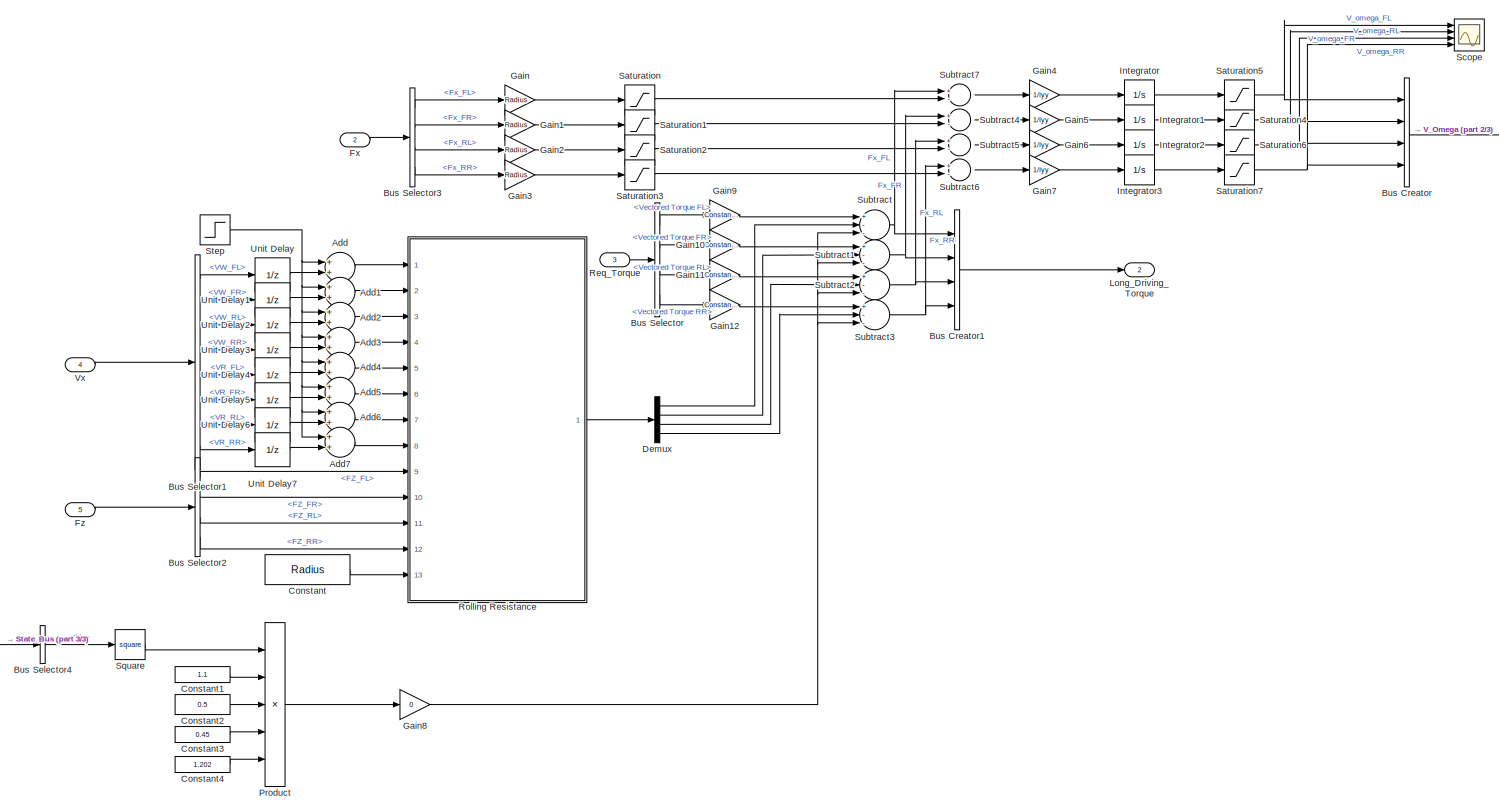
[diagram: Tire Forces /Tire Model/Wheel Model1 - part 1/3, most of the canvas]
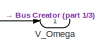
[diagram: Tire Forces /Tire Model/Wheel Model1 - part 2/3, top right region]
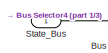
[diagram: Tire Forces /Tire Model/Wheel Model1 - part 3/3, bottom left region]
BLOCK [SubSystem] Tire Forces /Tire Model/Wheel Model1
  Ports = [5, 2]
  RequestExecContextInheritance = off
BLOCK [Sum] Tire Forces /Tire Model/Wheel Model1/Add
  InputSameDT = off
  OutDataTypeStr = Inherit: Inherit via internal rule
  Ports = [2, 1]
  SaturateOnIntegerOverflow = off
BLOCK [Sum] Tire Forces /Tire Model/Wheel Model1/Add1
  InputSameDT = off
  OutDataTypeStr = Inherit: Inherit via internal rule
  Ports = [2, 1]
  SaturateOnIntegerOverflow = off
BLOCK [Sum] Tire Forces /Tire Model/Wheel Model1/Add2
  InputSameDT = off
  OutDataTypeStr = Inherit: Inherit via internal rule
  Ports = [2, 1]
  SaturateOnIntegerOverflow = off
BLOCK [Sum] Tire Forces /Tire Model/Wheel Model1/Add3
  InputSameDT = off
  OutDataTypeStr = Inherit: Inherit via internal rule
  Ports = [2, 1]
  SaturateOnIntegerOverflow = off
BLOCK [Sum] Tire Forces /Tire Model/Wheel Model1/Add4
  InputSameDT = off
  OutDataTypeStr = Inherit: Inherit via internal rule
  Ports = [2, 1]
  SaturateOnIntegerOverflow = off
BLOCK [Sum] Tire Forces /Tire Model/Wheel Model1/Add5
  InputSameDT = off
  OutDataTypeStr = Inherit: Inherit via internal rule
  Ports = [2, 1]
  SaturateOnIntegerOverflow = off
BLOCK [Sum] Tire Forces /Tire Model/Wheel Model1/Add6
  InputSameDT = off
  OutDataTypeStr = Inherit: Inherit via internal rule
  Ports = [2, 1]
  SaturateOnIntegerOverflow = off
BLOCK [Sum] Tire Forces /Tire Model/Wheel Model1/Add7
  InputSameDT = off
  OutDataTypeStr = Inherit: Inherit via internal rule
  Ports = [2, 1]
  SaturateOnIntegerOverflow = off
BLOCK [BusCreator] Tire Forces /Tire Model/Wheel Model1/Bus Creator
  DisplayOption = bar
  InheritFromInputs = on
  Inputs = 4
  Ports = [4, 1]
BLOCK [BusCreator] Tire Forces /Tire Model/Wheel Model1/Bus Creator1
  DisplayOption = bar
  InheritFromInputs = on
  Inputs = 4
  Ports = [4, 1]
BLOCK [BusSelector] Tire Forces /Tire Model/Wheel Model1/Bus Selector
  OutputAsBus = off
  OutputSignals = Vectored Torque FL,Vectored Torque FR,Vectored Torque RL,Vectored Torque RR
  Ports = [1, 4]
BLOCK [BusSelector] Tire Forces /Tire Model/Wheel Model1/Bus Selector1
  OutputAsBus = off
  OutputSignals = Linear Velocity.VW_FL,Linear Velocity.VW_FR,Linear Velocity.VW_RL,Linear Velocity.VW_RR,Rotational Velocity.VR_FL,Rotational Velocity.VR_FR,Rotational Velocity.VR_RL,Rotational Velocity.VR_RR
  Ports = [1, 8]
BLOCK [BusSelector] Tire Forces /Tire Model/Wheel Model1/Bus Selector2
  OutputAsBus = off
  OutputSignals = Fz_total.FZ_FL,Fz_total.FZ_FR,Fz_total.FZ_RL,Fz_total.FZ_RR
  Ports = [1, 4]
BLOCK [BusSelector] Tire Forces /Tire Model/Wheel Model1/Bus Selector3
  OutputAsBus = off
  OutputSignals = Fx_FL,Fx_FR,Fx_RL,Fx_RR
  Ports = [1, 4]
BLOCK [BusSelector] Tire Forces /Tire Model/Wheel Model1/Bus Selector4
  OutputAsBus = off
  OutputSignals = Velocity.Vx
  Ports = [1, 1]
BLOCK [Constant] Tire Forces /Tire Model/Wheel Model1/Constant
  Value = Radius
BLOCK [Constant] Tire Forces /Tire Model/Wheel Model1/Constant1
  Value = 1.1
BLOCK [Constant] Tire Forces /Tire Model/Wheel Model1/Constant2
  Value = 0.5
BLOCK [Constant] Tire Forces /Tire Model/Wheel Model1/Constant3
  Value = 0.45
BLOCK [Constant] Tire Forces /Tire Model/Wheel Model1/Constant4
  Value = 1.202
BLOCK [Demux] Tire Forces /Tire Model/Wheel Model1/Demux
  DisplayOption = bar
  Ports = [1, 4]
BLOCK [Inport] Tire Forces /Tire Model/Wheel Model1/Fx
  IconDisplay = Port number
  Port = 2
BLOCK [Inport] Tire Forces /Tire Model/Wheel Model1/Fz
  IconDisplay = Port number
  Port = 5
BLOCK [Gain] Tire Forces /Tire Model/Wheel Model1/Gain
  Gain = Radius
  OutDataTypeStr = Inherit: Inherit via internal rule
  ParamDataTypeStr = Inherit: Inherit via internal rule
  SaturateOnIntegerOverflow = off
BLOCK [Gain] Tire Forces /Tire Model/Wheel Model1/Gain1
  Gain = Radius
  OutDataTypeStr = Inherit: Inherit via internal rule
  ParamDataTypeStr = Inherit: Inherit via internal rule
  SaturateOnIntegerOverflow = off
BLOCK [Gain] Tire Forces /Tire Model/Wheel Model1/Gain10
  Gain = Constants.driving_param.gear_ratio
  OutDataTypeStr = Inherit: Inherit via internal rule
  ParamDataTypeStr = Inherit: Inherit via internal rule
  SaturateOnIntegerOverflow = off
BLOCK [Gain] Tire Forces /Tire Model/Wheel Model1/Gain11
  Gain = Constants.driving_param.gear_ratio
  OutDataTypeStr = Inherit: Inherit via internal rule
  ParamDataTypeStr = Inherit: Inherit via internal rule
  SaturateOnIntegerOverflow = off
BLOCK [Gain] Tire Forces /Tire Model/Wheel Model1/Gain12
  Gain = Constants.driving_param.gear_ratio
  OutDataTypeStr = Inherit: Inherit via internal rule
  ParamDataTypeStr = Inherit: Inherit via internal rule
  SaturateOnIntegerOverflow = off
BLOCK [Gain] Tire Forces /Tire Model/Wheel Model1/Gain2
  Gain = Radius
  OutDataTypeStr = Inherit: Inherit via internal rule
  ParamDataTypeStr = Inherit: Inherit via internal rule
  SaturateOnIntegerOverflow = off
BLOCK [Gain] Tire Forces /Tire Model/Wheel Model1/Gain3
  Gain = Radius
  OutDataTypeStr = Inherit: Inherit via internal rule
  ParamDataTypeStr = Inherit: Inherit via internal rule
  SaturateOnIntegerOverflow = off
BLOCK [Gain] Tire Forces /Tire Model/Wheel Model1/Gain4
  Gain = 1/Iyy
  OutDataTypeStr = Inherit: Inherit via internal rule
  ParamDataTypeStr = Inherit: Inherit via internal rule
  SaturateOnIntegerOverflow = off
BLOCK [Gain] Tire Forces /Tire Model/Wheel Model1/Gain5
  Gain = 1/Iyy
  OutDataTypeStr = Inherit: Inherit via internal rule
  ParamDataTypeStr = Inherit: Inherit via internal rule
  SaturateOnIntegerOverflow = off
BLOCK [Gain] Tire Forces /Tire Model/Wheel Model1/Gain6
  Gain = 1/Iyy
  OutDataTypeStr = Inherit: Inherit via internal rule
  ParamDataTypeStr = Inherit: Inherit via internal rule
  SaturateOnIntegerOverflow = off
BLOCK [Gain] Tire Forces /Tire Model/Wheel Model1/Gain7
  Gain = 1/Iyy
  OutDataTypeStr = Inherit: Inherit via internal rule
  ParamDataTypeStr = Inherit: Inherit via internal rule
  SaturateOnIntegerOverflow = off
BLOCK [Gain] Tire Forces /Tire Model/Wheel Model1/Gain8
  Gain = 0
  OutDataTypeStr = Inherit: Inherit via internal rule
  ParamDataTypeStr = Inherit: Inherit via internal rule
  SaturateOnIntegerOverflow = off
BLOCK [Gain] Tire Forces /Tire Model/Wheel Model1/Gain9
  Gain = Constants.driving_param.gear_ratio
  OutDataTypeStr = Inherit: Inherit via internal rule
  ParamDataTypeStr = Inherit: Inherit via internal rule
  SaturateOnIntegerOverflow = off
BLOCK [Integrator] Tire Forces /Tire Model/Wheel Model1/Integrator
  Ports = [1, 1]
BLOCK [Integrator] Tire Forces /Tire Model/Wheel Model1/Integrator1
  Ports = [1, 1]
BLOCK [Integrator] Tire Forces /Tire Model/Wheel Model1/Integrator2
  Ports = [1, 1]
BLOCK [Integrator] Tire Forces /Tire Model/Wheel Model1/Integrator3
  Ports = [1, 1]
BLOCK [Outport] Tire Forces /Tire Model/Wheel Model1/Long_Driving_Torque
  IconDisplay = Port number
  Port = 2
  VectorParamsAs1DForOutWhenUnconnected = off
BLOCK [Product] Tire Forces /Tire Model/Wheel Model1/Product
  InputSameDT = off
  Inputs = 5
  OutDataTypeStr = Inherit: Inherit via internal rule
  Ports = [5, 1]
  RndMeth = Floor
  SaturateOnIntegerOverflow = off
BLOCK [Inport] Tire Forces /Tire Model/Wheel Model1/Req_Torque
  IconDisplay = Port number
  Port = 3
BLOCK [SubSystem] Tire Forces /Tire Model/Wheel Model1/Rolling Resistance
  ErrorFcn = Stateflow.Translate.translate
  PermitHierarchicalResolution = ExplicitOnly
  Ports = [13, 1]
  RequestExecContextInheritance = off
  SFBlockType = MATLAB Function
  TreatAsAtomicUnit = on
BLOCK [Demux] Tire Forces /Tire Model/Wheel Model1/Rolling Resistance/ Demux 
  Outputs = 1
  Ports = [1, 1]
BLOCK [S-Function] Tire Forces /Tire Model/Wheel Model1/Rolling Resistance/ SFunction 
  EnableBusSupport = on
  FunctionName = sf_sfun
  PortCounts = [13 2]
  Ports = [13, 2]
  SFcnIsStateOwnerBlock = off
  SFunctionDeploymentMode = off
  Tag = Stateflow S-Function 9
BLOCK [Terminator] Tire Forces /Tire Model/Wheel Model1/Rolling Resistance/ Terminator 
BLOCK [Outport] Tire Forces /Tire Model/Wheel Model1/Rolling Resistance/Fr
  IconDisplay = Port number
  VectorParamsAs1DForOutWhenUnconnected = off
BLOCK [Inport] Tire Forces /Tire Model/Wheel Model1/Rolling Resistance/Fz_FL
  IconDisplay = Port number
  Port = 9
BLOCK [Inport] Tire Forces /Tire Model/Wheel Model1/Rolling Resistance/Fz_FR
  IconDisplay = Port number
  Port = 10
BLOCK [Inport] Tire Forces /Tire Model/Wheel Model1/Rolling Resistance/Fz_RL
  IconDisplay = Port number
  Port = 11
BLOCK [Inport] Tire Forces /Tire Model/Wheel Model1/Rolling Resistance/Fz_RR
  IconDisplay = Port number
  Port = 12
BLOCK [Inport] Tire Forces /Tire Model/Wheel Model1/Rolling Resistance/Radius
  IconDisplay = Port number
  Port = 13
BLOCK [Inport] Tire Forces /Tire Model/Wheel Model1/Rolling Resistance/VR_FL
  IconDisplay = Port number
  Port = 5
BLOCK [Inport] Tire Forces /Tire Model/Wheel Model1/Rolling Resistance/VR_FR
  IconDisplay = Port number
  Port = 6
BLOCK [Inport] Tire Forces /Tire Model/Wheel Model1/Rolling Resistance/VR_RL
  IconDisplay = Port number
  Port = 7
BLOCK [Inport] Tire Forces /Tire Model/Wheel Model1/Rolling Resistance/VR_RR
  IconDisplay = Port number
  Port = 8
BLOCK [Inport] Tire Forces /Tire Model/Wheel Model1/Rolling Resistance/VW_FL
  IconDisplay = Port number
BLOCK [Inport] Tire Forces /Tire Model/Wheel Model1/Rolling Resistance/VW_FR
  IconDisplay = Port number
  Port = 2
BLOCK [Inport] Tire Forces /Tire Model/Wheel Model1/Rolling Resistance/VW_RL
  IconDisplay = Port number
  Port = 3
BLOCK [Inport] Tire Forces /Tire Model/Wheel Model1/Rolling Resistance/VW_RR
  IconDisplay = Port number
  Port = 4
BLOCK [Saturate] Tire Forces /Tire Model/Wheel Model1/Saturation
  InputPortMap = u0
  LowerLimit = -500
  Ports = [1, 1]
  UpperLimit = 500
BLOCK [Saturate] Tire Forces /Tire Model/Wheel Model1/Saturation1
  InputPortMap = u0
  LowerLimit = -500
  Ports = [1, 1]
  UpperLimit = 500
BLOCK [Saturate] Tire Forces /Tire Model/Wheel Model1/Saturation2
  InputPortMap = u0
  LowerLimit = -500
  Ports = [1, 1]
  UpperLimit = 500
BLOCK [Saturate] Tire Forces /Tire Model/Wheel Model1/Saturation3
  InputPortMap = u0
  LowerLimit = -500
  Ports = [1, 1]
  UpperLimit = 500
BLOCK [Saturate] Tire Forces /Tire Model/Wheel Model1/Saturation4
  InputPortMap = u0
  LowerLimit = -1
  Ports = [1, 1]
  UpperLimit = 300
BLOCK [Saturate] Tire Forces /Tire Model/Wheel Model1/Saturation5
  InputPortMap = u0
  LowerLimit = -1
  Ports = [1, 1]
  UpperLimit = 300
BLOCK [Saturate] Tire Forces /Tire Model/Wheel Model1/Saturation6
  InputPortMap = u0
  LowerLimit = -1
  Ports = [1, 1]
  UpperLimit = 300
BLOCK [Saturate] Tire Forces /Tire Model/Wheel Model1/Saturation7
  InputPortMap = u0
  LowerLimit = -1
  Ports = [1, 1]
  UpperLimit = 300
BLOCK [Scope] Tire Forces /Tire Model/Wheel Model1/Scope
  Floating = off
  NumInputPorts = 4
  Ports = [4]
  ScopeSpecificationString = Simulink.scopes.TimeScopeBlockCfg('CurrentConfiguration', extmgr.ConfigurationSet(extmgr.Configuration('Core','General UI',true),extmgr.Configuration('Core','Source UI',true),extmgr.Configuration('Sources','WiredSimulink',true,'DataLoggingVariableName','ScopeData2'),extmgr.Configuration('Visuals','Time Domain',true,'SerializedDisplays',{struct('MinYLimReal','-38.625','MaxYLimReal','337.625','YLabe...<+1406ch>
BLOCK [Math] Tire Forces /Tire Model/Wheel Model1/Square
  Operator = square
  Ports = [1, 1]
BLOCK [Inport] Tire Forces /Tire Model/Wheel Model1/State_Bus
  IconDisplay = Port number
BLOCK [Step] Tire Forces /Tire Model/Wheel Model1/Step
  After = 0
  Before = 1
  Time = 2
BLOCK [Sum] Tire Forces /Tire Model/Wheel Model1/Subtract
  InputSameDT = off
  Inputs = +--
  OutDataTypeStr = Inherit: Inherit via internal rule
  Ports = [3, 1]
  SaturateOnIntegerOverflow = off
BLOCK [Sum] Tire Forces /Tire Model/Wheel Model1/Subtract1
  InputSameDT = off
  Inputs = +--
  OutDataTypeStr = Inherit: Inherit via internal rule
  Ports = [3, 1]
  SaturateOnIntegerOverflow = off
BLOCK [Sum] Tire Forces /Tire Model/Wheel Model1/Subtract2
  InputSameDT = off
  Inputs = +--
  OutDataTypeStr = Inherit: Inherit via internal rule
  Ports = [3, 1]
  SaturateOnIntegerOverflow = off
BLOCK [Sum] Tire Forces /Tire Model/Wheel Model1/Subtract3
  InputSameDT = off
  Inputs = +--
  OutDataTypeStr = Inherit: Inherit via internal rule
  Ports = [3, 1]
  SaturateOnIntegerOverflow = off
BLOCK [Sum] Tire Forces /Tire Model/Wheel Model1/Subtract4
  InputSameDT = off
  Inputs = +-
  OutDataTypeStr = Inherit: Inherit via internal rule
  Ports = [2, 1]
  SaturateOnIntegerOverflow = off
BLOCK [Sum] Tire Forces /Tire Model/Wheel Model1/Subtract5
  InputSameDT = off
  Inputs = +-
  OutDataTypeStr = Inherit: Inherit via internal rule
  Ports = [2, 1]
  SaturateOnIntegerOverflow = off
BLOCK [Sum] Tire Forces /Tire Model/Wheel Model1/Subtract6
  InputSameDT = off
  Inputs = +-
  OutDataTypeStr = Inherit: Inherit via internal rule
  Ports = [2, 1]
  SaturateOnIntegerOverflow = off
BLOCK [Sum] Tire Forces /Tire Model/Wheel Model1/Subtract7
  InputSameDT = off
  Inputs = +-
  OutDataTypeStr = Inherit: Inherit via internal rule
  Ports = [2, 1]
  SaturateOnIntegerOverflow = off
BLOCK [UnitDelay] Tire Forces /Tire Model/Wheel Model1/Unit Delay
  HasFrameUpgradeWarning = on
  InitialCondition = 1
  SampleTime = -1
BLOCK [UnitDelay] Tire Forces /Tire Model/Wheel Model1/Unit Delay1
  HasFrameUpgradeWarning = on
  InitialCondition = 1
  SampleTime = -1
BLOCK [UnitDelay] Tire Forces /Tire Model/Wheel Model1/Unit Delay2
  HasFrameUpgradeWarning = on
  InitialCondition = 1
  SampleTime = -1
BLOCK [UnitDelay] Tire Forces /Tire Model/Wheel Model1/Unit Delay3
  HasFrameUpgradeWarning = on
  InitialCondition = 1
  SampleTime = -1
BLOCK [UnitDelay] Tire Forces /Tire Model/Wheel Model1/Unit Delay4
  HasFrameUpgradeWarning = on
  InitialCondition = 1
  SampleTime = -1
BLOCK [UnitDelay] Tire Forces /Tire Model/Wheel Model1/Unit Delay5
  HasFrameUpgradeWarning = on
  InitialCondition = 1
  SampleTime = -1
BLOCK [UnitDelay] Tire Forces /Tire Model/Wheel Model1/Unit Delay6
  HasFrameUpgradeWarning = on
  InitialCondition = 1
  SampleTime = -1
BLOCK [UnitDelay] Tire Forces /Tire Model/Wheel Model1/Unit Delay7
  HasFrameUpgradeWarning = on
  InitialCondition = 1
  SampleTime = -1
BLOCK [Outport] Tire Forces /Tire Model/Wheel Model1/V_Omega
  IconDisplay = Port number
  VectorParamsAs1DForOutWhenUnconnected = off
BLOCK [Inport] Tire Forces /Tire Model/Wheel Model1/Vx
  IconDisplay = Port number
  Port = 4
BLOCK [SubSystem] Tire Forces /Tire Model/Wheel slip calculation 
  Ports = [3, 1]
  RequestExecContextInheritance = off
BLOCK [Outport] Tire Forces /Tire Model/Wheel slip calculation / Slip
  IconDisplay = Port number
  VectorParamsAs1DForOutWhenUnconnected = off
BLOCK [Sum] Tire Forces /Tire Model/Wheel slip calculation /Add
  InputSameDT = off
  OutDataTypeStr = Inherit: Inherit via internal rule
  Ports = [2, 1]
  SaturateOnIntegerOverflow = off
BLOCK [Sum] Tire Forces /Tire Model/Wheel slip calculation /Add1
  InputSameDT = off
  OutDataTypeStr = Inherit: Inherit via internal rule
  Ports = [2, 1]
  SaturateOnIntegerOverflow = off
BLOCK [Sum] Tire Forces /Tire Model/Wheel slip calculation /Add2
  InputSameDT = off
  OutDataTypeStr = Inherit: Inherit via internal rule
  Ports = [2, 1]
  SaturateOnIntegerOverflow = off
BLOCK [Sum] Tire Forces /Tire Model/Wheel slip calculation /Add3
  InputSameDT = off
  OutDataTypeStr = Inherit: Inherit via internal rule
  Ports = [2, 1]
  SaturateOnIntegerOverflow = off
BLOCK [BusCreator] Tire Forces /Tire Model/Wheel slip calculation /Bus Creator
  DisplayOption = bar
  InheritFromInputs = on
  Inputs = 8
  Ports = [8, 1]
BLOCK [BusCreator] Tire Forces /Tire Model/Wheel slip calculation /Bus Creator1
  DisplayOption = bar
  InheritFromInputs = on
  Inputs = 8
  Ports = [8, 1]
BLOCK [BusCreator] Tire Forces /Tire Model/Wheel slip calculation /Bus Creator2
  DisplayOption = bar
  InheritFromInputs = on
  Inputs = 4
  Ports = [4, 1]
BLOCK [BusCreator] Tire Forces /Tire Model/Wheel slip calculation /Bus Creator3
  DisplayOption = bar
  InheritFromInputs = on
  Inputs = 2
  Ports = [2, 1]
BLOCK [BusSelector] Tire Forces /Tire Model/Wheel slip calculation /Bus Selector
  OutputAsBus = off
  OutputSignals = Slip:L_FL,Slip:S_FL,Slip:L_FR,Slip:S_FR,Slip:L_RL,Slip:S_RL,Slip:L_RR,Slip:S_RR
  Ports = [1, 8]
BLOCK [BusSelector] Tire Forces /Tire Model/Wheel slip calculation /Bus Selector1
  OutputAsBus = off
  OutputSignals = VW_FL,VW_FR,VW_RL,VW_RR
  Ports = [1, 4]
BLOCK [BusSelector] Tire Forces /Tire Model/Wheel slip calculation /Bus Selector2
  OutputAsBus = off
  OutputSignals = VR_FL,VR_FR,VR_RL,VR_RR
  Ports = [1, 4]
BLOCK [BusSelector] Tire Forces /Tire Model/Wheel slip calculation /Bus Selector3
  OutputAsBus = off
  OutputSignals = BrakePos
  Ports = [1, 1]
BLOCK [BusSelector] Tire Forces /Tire Model/Wheel slip calculation /Bus Selector4
  OutputAsBus = off
  OutputSignals = Linear Velocity,Rotational Velocity
  Ports = [1, 2]
BLOCK [Inport] Tire Forces /Tire Model/Wheel slip calculation /Driver
  IconDisplay = Port number
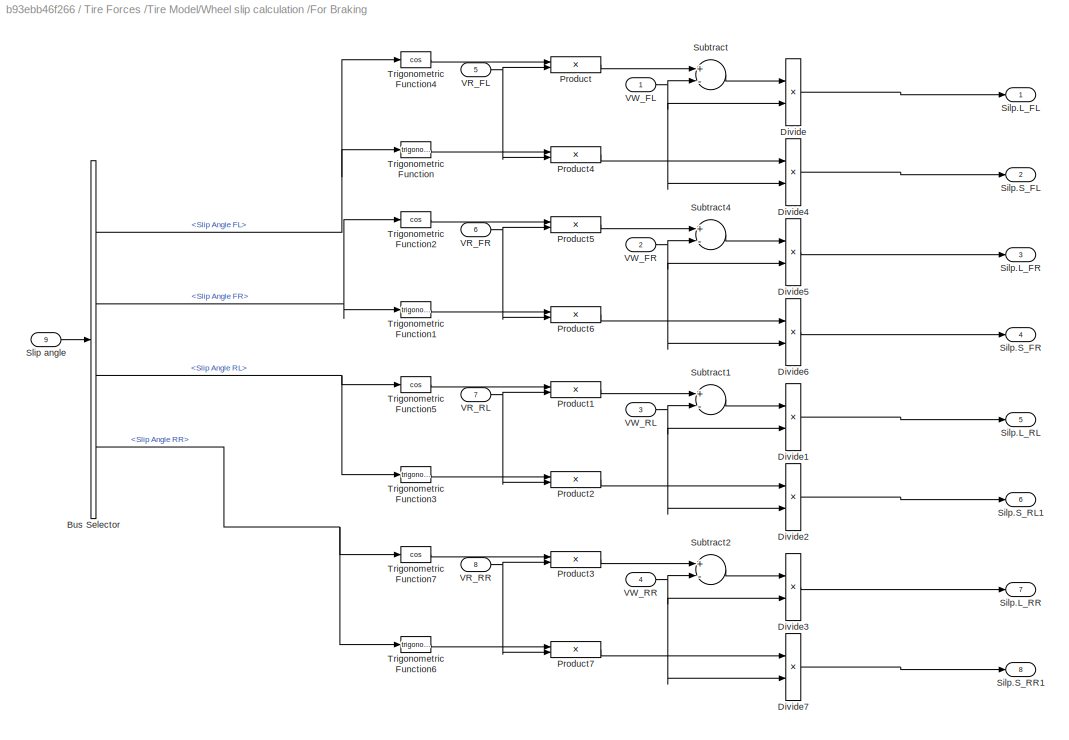
BLOCK [SubSystem] Tire Forces /Tire Model/Wheel slip calculation /For Braking
  Ports = [9, 8]
  RequestExecContextInheritance = off
BLOCK [BusSelector] Tire Forces /Tire Model/Wheel slip calculation /For Braking/Bus Selector
  OutputAsBus = off
  OutputSignals = Slip Angle FL,Slip Angle FR,Slip Angle RL,Slip Angle RR
  Ports = [1, 4]
BLOCK [Product] Tire Forces /Tire Model/Wheel slip calculation /For Braking/Divide
  InputSameDT = off
  Inputs = */
  OutDataTypeStr = Inherit: Inherit via internal rule
  Ports = [2, 1]
  RndMeth = Floor
  SaturateOnIntegerOverflow = off
BLOCK [Product] Tire Forces /Tire Model/Wheel slip calculation /For Braking/Divide1
  InputSameDT = off
  Inputs = */
  OutDataTypeStr = Inherit: Inherit via internal rule
  Ports = [2, 1]
  RndMeth = Floor
  SaturateOnIntegerOverflow = off
BLOCK [Product] Tire Forces /Tire Model/Wheel slip calculation /For Braking/Divide2
  InputSameDT = off
  Inputs = */
  OutDataTypeStr = Inherit: Inherit via internal rule
  Ports = [2, 1]
  RndMeth = Floor
  SaturateOnIntegerOverflow = off
BLOCK [Product] Tire Forces /Tire Model/Wheel slip calculation /For Braking/Divide3
  InputSameDT = off
  Inputs = */
  OutDataTypeStr = Inherit: Inherit via internal rule
  Ports = [2, 1]
  RndMeth = Floor
  SaturateOnIntegerOverflow = off
BLOCK [Product] Tire Forces /Tire Model/Wheel slip calculation /For Braking/Divide4
  InputSameDT = off
  Inputs = */
  OutDataTypeStr = Inherit: Inherit via internal rule
  Ports = [2, 1]
  RndMeth = Floor
  SaturateOnIntegerOverflow = off
BLOCK [Product] Tire Forces /Tire Model/Wheel slip calculation /For Braking/Divide5
  InputSameDT = off
  Inputs = */
  OutDataTypeStr = Inherit: Inherit via internal rule
  Ports = [2, 1]
  RndMeth = Floor
  SaturateOnIntegerOverflow = off
BLOCK [Product] Tire Forces /Tire Model/Wheel slip calculation /For Braking/Divide6
  InputSameDT = off
  Inputs = */
  OutDataTypeStr = Inherit: Inherit via internal rule
  Ports = [2, 1]
  RndMeth = Floor
  SaturateOnIntegerOverflow = off
BLOCK [Product] Tire Forces /Tire Model/Wheel slip calculation /For Braking/Divide7
  InputSameDT = off
  Inputs = */
  OutDataTypeStr = Inherit: Inherit via internal rule
  Ports = [2, 1]
  RndMeth = Floor
  SaturateOnIntegerOverflow = off
BLOCK [Product] Tire Forces /Tire Model/Wheel slip calculation /For Braking/Product
  InputSameDT = off
  OutDataTypeStr = Inherit: Inherit via internal rule
  Ports = [2, 1]
  RndMeth = Floor
  SaturateOnIntegerOverflow = off
BLOCK [Product] Tire Forces /Tire Model/Wheel slip calculation /For Braking/Product1
  InputSameDT = off
  OutDataTypeStr = Inherit: Inherit via internal rule
  Ports = [2, 1]
  RndMeth = Floor
  SaturateOnIntegerOverflow = off
BLOCK [Product] Tire Forces /Tire Model/Wheel slip calculation /For Braking/Product2
  InputSameDT = off
  OutDataTypeStr = Inherit: Inherit via internal rule
  Ports = [2, 1]
  RndMeth = Floor
  SaturateOnIntegerOverflow = off
BLOCK [Product] Tire Forces /Tire Model/Wheel slip calculation /For Braking/Product3
  InputSameDT = off
  OutDataTypeStr = Inherit: Inherit via internal rule
  Ports = [2, 1]
  RndMeth = Floor
  SaturateOnIntegerOverflow = off
BLOCK [Product] Tire Forces /Tire Model/Wheel slip calculation /For Braking/Product4
  InputSameDT = off
  OutDataTypeStr = Inherit: Inherit via internal rule
  Ports = [2, 1]
  RndMeth = Floor
  SaturateOnIntegerOverflow = off
BLOCK [Product] Tire Forces /Tire Model/Wheel slip calculation /For Braking/Product5
  InputSameDT = off
  OutDataTypeStr = Inherit: Inherit via internal rule
  Ports = [2, 1]
  RndMeth = Floor
  SaturateOnIntegerOverflow = off
BLOCK [Product] Tire Forces /Tire Model/Wheel slip calculation /For Braking/Product6
  InputSameDT = off
  OutDataTypeStr = Inherit: Inherit via internal rule
  Ports = [2, 1]
  RndMeth = Floor
  SaturateOnIntegerOverflow = off
BLOCK [Product] Tire Forces /Tire Model/Wheel slip calculation /For Braking/Product7
  InputSameDT = off
  OutDataTypeStr = Inherit: Inherit via internal rule
  Ports = [2, 1]
  RndMeth = Floor
  SaturateOnIntegerOverflow = off
BLOCK [Outport] Tire Forces /Tire Model/Wheel slip calculation /For Braking/Silp.L_FL
  IconDisplay = Port number
  VectorParamsAs1DForOutWhenUnconnected = off
BLOCK [Outport] Tire Forces /Tire Model/Wheel slip calculation /For Braking/Silp.L_FR
  IconDisplay = Port number
  Port = 3
  VectorParamsAs1DForOutWhenUnconnected = off
BLOCK [Outport] Tire Forces /Tire Model/Wheel slip calculation /For Braking/Silp.L_RL
  IconDisplay = Port number
  Port = 5
  VectorParamsAs1DForOutWhenUnconnected = off
BLOCK [Outport] Tire Forces /Tire Model/Wheel slip calculation /For Braking/Silp.L_RR
  IconDisplay = Port number
  Port = 7
  VectorParamsAs1DForOutWhenUnconnected = off
BLOCK [Outport] Tire Forces /Tire Model/Wheel slip calculation /For Braking/Silp.S_FL
  IconDisplay = Port number
  Port = 2
  VectorParamsAs1DForOutWhenUnconnected = off
BLOCK [Outport] Tire Forces /Tire Model/Wheel slip calculation /For Braking/Silp.S_FR
  IconDisplay = Port number
  Port = 4
  VectorParamsAs1DForOutWhenUnconnected = off
BLOCK [Outport] Tire Forces /Tire Model/Wheel slip calculation /For Braking/Silp.S_RL1
  IconDisplay = Port number
  Port = 6
  VectorParamsAs1DForOutWhenUnconnected = off
BLOCK [Outport] Tire Forces /Tire Model/Wheel slip calculation /For Braking/Silp.S_RR1
  IconDisplay = Port number
  Port = 8
  VectorParamsAs1DForOutWhenUnconnected = off
BLOCK [Inport] Tire Forces /Tire Model/Wheel slip calculation /For Braking/Slip angle 
  IconDisplay = Port number
  Port = 9
BLOCK [Sum] Tire Forces /Tire Model/Wheel slip calculation /For Braking/Subtract
  InputSameDT = off
  Inputs = +-
  OutDataTypeStr = Inherit: Inherit via internal rule
  Ports = [2, 1]
  SaturateOnIntegerOverflow = off
BLOCK [Sum] Tire Forces /Tire Model/Wheel slip calculation /For Braking/Subtract1
  InputSameDT = off
  Inputs = +-
  OutDataTypeStr = Inherit: Inherit via internal rule
  Ports = [2, 1]
  SaturateOnIntegerOverflow = off
BLOCK [Sum] Tire Forces /Tire Model/Wheel slip calculation /For Braking/Subtract2
  InputSameDT = off
  Inputs = +-
  OutDataTypeStr = Inherit: Inherit via internal rule
  Ports = [2, 1]
  SaturateOnIntegerOverflow = off
BLOCK [Sum] Tire Forces /Tire Model/Wheel slip calculation /For Braking/Subtract4
  InputSameDT = off
  Inputs = +-
  OutDataTypeStr = Inherit: Inherit via internal rule
  Ports = [2, 1]
  SaturateOnIntegerOverflow = off
BLOCK [Trigonometry] Tire Forces /Tire Model/Wheel slip calculation /For Braking/Trigonometric Function
  Ports = [1, 1]
BLOCK [Trigonometry] Tire Forces /Tire Model/Wheel slip calculation /For Braking/Trigonometric Function1
  Ports = [1, 1]
BLOCK [Trigonometry] Tire Forces /Tire Model/Wheel slip calculation /For Braking/Trigonometric Function2
  Operator = cos
  Ports = [1, 1]
BLOCK [Trigonometry] Tire Forces /Tire Model/Wheel slip calculation /For Braking/Trigonometric Function3
  Ports = [1, 1]
BLOCK [Trigonometry] Tire Forces /Tire Model/Wheel slip calculation /For Braking/Trigonometric Function4
  Operator = cos
  Ports = [1, 1]
BLOCK [Trigonometry] Tire Forces /Tire Model/Wheel slip calculation /For Braking/Trigonometric Function5
  Operator = cos
  Ports = [1, 1]
BLOCK [Trigonometry] Tire Forces /Tire Model/Wheel slip calculation /For Braking/Trigonometric Function6
  Ports = [1, 1]
BLOCK [Trigonometry] Tire Forces /Tire Model/Wheel slip calculation /For Braking/Trigonometric Function7
  Operator = cos
  Ports = [1, 1]
BLOCK [Inport] Tire Forces /Tire Model/Wheel slip calculation /For Braking/VR_FL
  IconDisplay = Port number
  Port = 5
BLOCK [Inport] Tire Forces /Tire Model/Wheel slip calculation /For Braking/VR_FR
  IconDisplay = Port number
  Port = 6
BLOCK [Inport] Tire Forces /Tire Model/Wheel slip calculation /For Braking/VR_RL
  IconDisplay = Port number
  Port = 7
BLOCK [Inport] Tire Forces /Tire Model/Wheel slip calculation /For Braking/VR_RR 
  IconDisplay = Port number
  Port = 8
BLOCK [Inport] Tire Forces /Tire Model/Wheel slip calculation /For Braking/VW_FL 
  IconDisplay = Port number
BLOCK [Inport] Tire Forces /Tire Model/Wheel slip calculation /For Braking/VW_FR
  IconDisplay = Port number
  Port = 2
BLOCK [Inport] Tire Forces /Tire Model/Wheel slip calculation /For Braking/VW_RL
  IconDisplay = Port number
  Port = 3
BLOCK [Inport] Tire Forces /Tire Model/Wheel slip calculation /For Braking/VW_RR
  IconDisplay = Port number
  Port = 4
BLOCK [SubSystem] Tire Forces /Tire Model/Wheel slip calculation /For Driving
  Ports = [9, 8]
  RequestExecContextInheritance = off
BLOCK [BusSelector] Tire Forces /Tire Model/Wheel slip calculation /For Driving/Bus Selector
  OutputAsBus = off
  OutputSignals = Slip Angle FL,Slip Angle FR,Slip Angle RL,Slip Angle RR
  Ports = [1, 4]
BLOCK [Product] Tire Forces /Tire Model/Wheel slip calculation /For Driving/Divide
  InputSameDT = off
  Inputs = */
  OutDataTypeStr = Inherit: Inherit via internal rule
  Ports = [2, 1]
  RndMeth = Floor
  SaturateOnIntegerOverflow = off
BLOCK [Product] Tire Forces /Tire Model/Wheel slip calculation /For Driving/Divide1
  InputSameDT = off
  Inputs = */
  OutDataTypeStr = Inherit: Inherit via internal rule
  Ports = [2, 1]
  RndMeth = Floor
  SaturateOnIntegerOverflow = off
BLOCK [Product] Tire Forces /Tire Model/Wheel slip calculation /For Driving/Divide2
  InputSameDT = off
  Inputs = */
  OutDataTypeStr = Inherit: Inherit via internal rule
  Ports = [2, 1]
  RndMeth = Floor
  SaturateOnIntegerOverflow = off
BLOCK [Product] Tire Forces /Tire Model/Wheel slip calculation /For Driving/Divide3
  InputSameDT = off
  Inputs = */
  OutDataTypeStr = Inherit: Inherit via internal rule
  Ports = [2, 1]
  RndMeth = Floor
  SaturateOnIntegerOverflow = off
BLOCK [Product] Tire Forces /Tire Model/Wheel slip calculation /For Driving/Product
  InputSameDT = off
  OutDataTypeStr = Inherit: Inherit via internal rule
  Ports = [2, 1]
  RndMeth = Floor
  SaturateOnIntegerOverflow = off
BLOCK [Product] Tire Forces /Tire Model/Wheel slip calculation /For Driving/Product1
  InputSameDT = off
  OutDataTypeStr = Inherit: Inherit via internal rule
  Ports = [2, 1]
  RndMeth = Floor
  SaturateOnIntegerOverflow = off
BLOCK [Product] Tire Forces /Tire Model/Wheel slip calculation /For Driving/Product2
  InputSameDT = off
  OutDataTypeStr = Inherit: Inherit via internal rule
  Ports = [2, 1]
  RndMeth = Floor
  SaturateOnIntegerOverflow = off
BLOCK [Product] Tire Forces /Tire Model/Wheel slip calculation /For Driving/Product3
  InputSameDT = off
  OutDataTypeStr = Inherit: Inherit via internal rule
  Ports = [2, 1]
  RndMeth = Floor
  SaturateOnIntegerOverflow = off
BLOCK [Saturate] Tire Forces /Tire Model/Wheel slip calculation /For Driving/Saturation10
  InputPortMap = u0
  LowerLimit = 0.1
  Ports = [1, 1]
  UpperLimit = 500
BLOCK [Saturate] Tire Forces /Tire Model/Wheel slip calculation /For Driving/Saturation11
  InputPortMap = u0
  LowerLimit = 0.1
  Ports = [1, 1]
  UpperLimit = 500
BLOCK [Saturate] Tire Forces /Tire Model/Wheel slip calculation /For Driving/Saturation8
  InputPortMap = u0
  LowerLimit = 0.1
  Ports = [1, 1]
  UpperLimit = 500
BLOCK [Saturate] Tire Forces /Tire Model/Wheel slip calculation /For Driving/Saturation9
  InputPortMap = u0
  LowerLimit = 0.1
  Ports = [1, 1]
  UpperLimit = 500
BLOCK [Outport] Tire Forces /Tire Model/Wheel slip calculation /For Driving/Silp.L_FL
  IconDisplay = Port number
  VectorParamsAs1DForOutWhenUnconnected = off
BLOCK [Outport] Tire Forces /Tire Model/Wheel slip calculation /For Driving/Silp.L_FR
  IconDisplay = Port number
  Port = 3
  VectorParamsAs1DForOutWhenUnconnected = off
BLOCK [Outport] Tire Forces /Tire Model/Wheel slip calculation /For Driving/Silp.L_RL
  IconDisplay = Port number
  Port = 5
  VectorParamsAs1DForOutWhenUnconnected = off
BLOCK [Outport] Tire Forces /Tire Model/Wheel slip calculation /For Driving/Silp.L_RR
  IconDisplay = Port number
  Port = 7
  VectorParamsAs1DForOutWhenUnconnected = off
BLOCK [Outport] Tire Forces /Tire Model/Wheel slip calculation /For Driving/Silp.S_FL
  IconDisplay = Port number
  Port = 2
  VectorParamsAs1DForOutWhenUnconnected = off
BLOCK [Outport] Tire Forces /Tire Model/Wheel slip calculation /For Driving/Silp.S_FR
  IconDisplay = Port number
  Port = 4
  VectorParamsAs1DForOutWhenUnconnected = off
BLOCK [Outport] Tire Forces /Tire Model/Wheel slip calculation /For Driving/Silp.S_RL
  IconDisplay = Port number
  Port = 6
  VectorParamsAs1DForOutWhenUnconnected = off
BLOCK [Outport] Tire Forces /Tire Model/Wheel slip calculation /For Driving/Silp.S_RR
  IconDisplay = Port number
  Port = 8
  VectorParamsAs1DForOutWhenUnconnected = off
BLOCK [Inport] Tire Forces /Tire Model/Wheel slip calculation /For Driving/Slip angle 
  IconDisplay = Port number
BLOCK [Sum] Tire Forces /Tire Model/Wheel slip calculation /For Driving/Subtract
  InputSameDT = off
  Inputs = +-
  OutDataTypeStr = Inherit: Inherit via internal rule
  Ports = [2, 1]
  SaturateOnIntegerOverflow = off
BLOCK [Sum] Tire Forces /Tire Model/Wheel slip calculation /For Driving/Subtract1
  InputSameDT = off
  Inputs = +-
  OutDataTypeStr = Inherit: Inherit via internal rule
  Ports = [2, 1]
  SaturateOnIntegerOverflow = off
BLOCK [Sum] Tire Forces /Tire Model/Wheel slip calculation /For Driving/Subtract2
  InputSameDT = off
  Inputs = +-
  OutDataTypeStr = Inherit: Inherit via internal rule
  Ports = [2, 1]
  SaturateOnIntegerOverflow = off
BLOCK [Sum] Tire Forces /Tire Model/Wheel slip calculation /For Driving/Subtract3
  InputSameDT = off
  Inputs = +-
  OutDataTypeStr = Inherit: Inherit via internal rule
  Ports = [2, 1]
  SaturateOnIntegerOverflow = off
BLOCK [Trigonometry] Tire Forces /Tire Model/Wheel slip calculation /For Driving/Trigonometric Function
  Operator = tan
  Ports = [1, 1]
BLOCK [Trigonometry] Tire Forces /Tire Model/Wheel slip calculation /For Driving/Trigonometric Function1
  Operator = tan
  Ports = [1, 1]
BLOCK [Trigonometry] Tire Forces /Tire Model/Wheel slip calculation /For Driving/Trigonometric Function2
  Operator = tan
  Ports = [1, 1]
BLOCK [Trigonometry] Tire Forces /Tire Model/Wheel slip calculation /For Driving/Trigonometric Function3
  Operator = tan
  Ports = [1, 1]
BLOCK [Trigonometry] Tire Forces /Tire Model/Wheel slip calculation /For Driving/Trigonometric Function4
  Operator = cos
  Ports = [1, 1]
BLOCK [Trigonometry] Tire Forces /Tire Model/Wheel slip calculation /For Driving/Trigonometric Function5
  Operator = cos
  Ports = [1, 1]
BLOCK [Trigonometry] Tire Forces /Tire Model/Wheel slip calculation /For Driving/Trigonometric Function6
  Operator = cos
  Ports = [1, 1]
BLOCK [Trigonometry] Tire Forces /Tire Model/Wheel slip calculation /For Driving/Trigonometric Function7
  Operator = cos
  Ports = [1, 1]
BLOCK [Inport] Tire Forces /Tire Model/Wheel slip calculation /For Driving/VR_FL
  IconDisplay = Port number
  Port = 6
BLOCK [Inport] Tire Forces /Tire Model/Wheel slip calculation /For Driving/VR_FR
  IconDisplay = Port number
  Port = 7
BLOCK [Inport] Tire Forces /Tire Model/Wheel slip calculation /For Driving/VR_RL
  IconDisplay = Port number
  Port = 8
BLOCK [Inport] Tire Forces /Tire Model/Wheel slip calculation /For Driving/VR_RR 
  IconDisplay = Port number
  Port = 9
BLOCK [Inport] Tire Forces /Tire Model/Wheel slip calculation /For Driving/VW_FL 
  IconDisplay = Port number
  Port = 2
BLOCK [Inport] Tire Forces /Tire Model/Wheel slip calculation /For Driving/VW_FR
  IconDisplay = Port number
  Port = 3
BLOCK [Inport] Tire Forces /Tire Model/Wheel slip calculation /For Driving/VW_RL
  IconDisplay = Port number
  Port = 4
BLOCK [Inport] Tire Forces /Tire Model/Wheel slip calculation /For Driving/VW_RR
  IconDisplay = Port number
  Port = 5
BLOCK [Math] Tire Forces /Tire Model/Wheel slip calculation /Math Function
  Operator = magnitude^2
  Ports = [1, 1]
BLOCK [Math] Tire Forces /Tire Model/Wheel slip calculation /Math Function1
  Operator = magnitude^2
  Ports = [1, 1]
BLOCK [Math] Tire Forces /Tire Model/Wheel slip calculation /Math Function2
  Operator = magnitude^2
  Ports = [1, 1]
BLOCK [Math] Tire Forces /Tire Model/Wheel slip calculation /Math Function3
  Operator = magnitude^2
  Ports = [1, 1]
BLOCK [Math] Tire Forces /Tire Model/Wheel slip calculation /Math Function4
  Operator = magnitude^2
  Ports = [1, 1]
BLOCK [Math] Tire Forces /Tire Model/Wheel slip calculation /Math Function5
  Operator = magnitude^2
  Ports = [1, 1]
BLOCK [Math] Tire Forces /Tire Model/Wheel slip calculation /Math Function6
  Operator = magnitude^2
  Ports = [1, 1]
BLOCK [Math] Tire Forces /Tire Model/Wheel slip calculation /Math Function7
  Operator = magnitude^2
  Ports = [1, 1]
BLOCK [Saturate] Tire Forces /Tire Model/Wheel slip calculation /Saturation
  InputPortMap = u0
  LowerLimit = 0
  Ports = [1, 1]
  UpperLimit = 1
BLOCK [Saturate] Tire Forces /Tire Model/Wheel slip calculation /Saturation1
  InputPortMap = u0
  LowerLimit = 0
  Ports = [1, 1]
  UpperLimit = 1
BLOCK [Saturate] Tire Forces /Tire Model/Wheel slip calculation /Saturation2
  InputPortMap = u0
  LowerLimit = 0
  Ports = [1, 1]
  UpperLimit = 1
BLOCK [Saturate] Tire Forces /Tire Model/Wheel slip calculation /Saturation3
  InputPortMap = u0
  LowerLimit = 0
  Ports = [1, 1]
  UpperLimit = 1
BLOCK [Scope] Tire Forces /Tire Model/Wheel slip calculation /Scope
  Floating = off
  NumInputPorts = 1
  Ports = [1]
  ScopeSpecificationString = Simulink.scopes.TimeScopeBlockCfg('CurrentConfiguration', extmgr.ConfigurationSet(extmgr.Configuration('Core','General UI',true),extmgr.Configuration('Core','Source UI',true),extmgr.Configuration('Sources','WiredSimulink',true,'DataLoggingVariableName','ScopeData1'),extmgr.Configuration('Visuals','Time Domain',true,'SerializedDisplays',{struct('MinYLimReal','-0.125','MaxYLimReal','1.125','YLabelRe...<+1524ch>
BLOCK [Inport] Tire Forces /Tire Model/Wheel slip calculation /Slip Angle 
  IconDisplay = Port number
  Port = 2
BLOCK [Sqrt] Tire Forces /Tire Model/Wheel slip calculation /Sqrt
BLOCK [Sqrt] Tire Forces /Tire Model/Wheel slip calculation /Sqrt1
BLOCK [Sqrt] Tire Forces /Tire Model/Wheel slip calculation /Sqrt2
BLOCK [Sqrt] Tire Forces /Tire Model/Wheel slip calculation /Sqrt3
BLOCK [Switch] Tire Forces /Tire Model/Wheel slip calculation /Toggle between braking and driving
  Criteria = u2 ~= 0
  InputSameDT = off
  SaturateOnIntegerOverflow = off
BLOCK [Inport] Tire Forces /Tire Model/Wheel slip calculation /Wheel Velocity X
  IconDisplay = Port number
  Port = 3
BLOCK [SubSystem] Tire Forces /Tire Model/co efficient of friction calculation
  Ports = [2, 1]
  RequestExecContextInheritance = off
BLOCK [BusCreator] Tire Forces /Tire Model/co efficient of friction calculation/Bus Creator
  DisplayOption = bar
  InheritFromInputs = on
  Inputs = 4
  Ports = [4, 1]
BLOCK [BusCreator] Tire Forces /Tire Model/co efficient of friction calculation/Bus Creator1
  DisplayOption = bar
  InheritFromInputs = on
  Inputs = 4
  Ports = [4, 1]
BLOCK [BusCreator] Tire Forces /Tire Model/co efficient of friction calculation/Bus Creator2
  DisplayOption = bar
  InheritFromInputs = on
  Inputs = 2
  Ports = [2, 1]
BLOCK [BusSelector] Tire Forces /Tire Model/co efficient of friction calculation/Bus Selector
  OutputAsBus = off
  OutputSignals = Slip:L_FL,Slip:L_FR,Slip:L_RL,Slip:L_RR,Slip:S_FL,Slip:S_FR,Slip:S_RL,Slip:S_RR
  Ports = [1, 8]
BLOCK [BusSelector] Tire Forces /Tire Model/co efficient of friction calculation/Bus Selector1
  OutputAsBus = off
  OutputSignals = Resultant Slip FL,Resultant Slip FR,Resultant Slip RL,Resultant Slip RR
  Ports = [1, 4]
BLOCK [BusSelector] Tire Forces /Tire Model/co efficient of friction calculation/Bus Selector2
  OutputAsBus = off
  OutputSignals = Longitudinal_and_side_Slip,Resultant_Slip
  Ports = [1, 2]
BLOCK [BusSelector] Tire Forces /Tire Model/co efficient of friction calculation/Bus Selector3
  OutputAsBus = off
  OutputSignals = Fz_Dynamic.FZD_FL,Fz_Dynamic.FZD_FR,Fz_Dynamic.FZD_RL,Fz_Dynamic.FZD_RR
  Ports = [1, 4]
BLOCK [Constant] Tire Forces /Tire Model/co efficient of friction calculation/Constant
  Value = Constants.other_param.Friction_Tuning_Parameter
BLOCK [Demux] Tire Forces /Tire Model/co efficient of friction calculation/Demux
  DisplayOption = bar
  Outputs = 8
  Ports = [1, 8]
BLOCK [Inport] Tire Forces /Tire Model/co efficient of friction calculation/Fz
  IconDisplay = Port number
  Port = 2
BLOCK [SubSystem] Tire Forces /Tire Model/co efficient of friction calculation/MATLAB Code
  ErrorFcn = Stateflow.Translate.translate
  PermitHierarchicalResolution = ExplicitOnly
  Ports = [17, 1]
  RequestExecContextInheritance = off
  SFBlockType = MATLAB Function
  TreatAsAtomicUnit = on
BLOCK [Demux] Tire Forces /Tire Model/co efficient of friction calculation/MATLAB Code/ Demux 
  Outputs = 1
  Ports = [1, 1]
BLOCK [S-Function] Tire Forces /Tire Model/co efficient of friction calculation/MATLAB Code/ SFunction 
  EnableBusSupport = on
  FunctionName = sf_sfun
  PortCounts = [17 2]
  Ports = [17, 2]
  SFcnIsStateOwnerBlock = off
  SFunctionDeploymentMode = off
  Tag = Stateflow S-Function 112
BLOCK [Terminator] Tire Forces /Tire Model/co efficient of friction calculation/MATLAB Code/ Terminator 
BLOCK [Inport] Tire Forces /Tire Model/co efficient of friction calculation/MATLAB Code/FZD_FL
  IconDisplay = Port number
  Port = 13
BLOCK [Inport] Tire Forces /Tire Model/co efficient of friction calculation/MATLAB Code/FZD_FR
  IconDisplay = Port number
  Port = 14
BLOCK [Inport] Tire Forces /Tire Model/co efficient of friction calculation/MATLAB Code/FZD_RL
  IconDisplay = Port number
  Port = 15
BLOCK [Inport] Tire Forces /Tire Model/co efficient of friction calculation/MATLAB Code/FZD_RR
  IconDisplay = Port number
  Port = 16
BLOCK [Inport] Tire Forces /Tire Model/co efficient of friction calculation/MATLAB Code/Friction_Tuning_parameter
  IconDisplay = Port number
  Port = 17
BLOCK [Inport] Tire Forces /Tire Model/co efficient of friction calculation/MATLAB Code/SlipL_FL
  IconDisplay = Port number
BLOCK [Inport] Tire Forces /Tire Model/co efficient of friction calculation/MATLAB Code/SlipL_FR
  IconDisplay = Port number
  Port = 2
BLOCK [Inport] Tire Forces /Tire Model/co efficient of friction calculation/MATLAB Code/SlipL_RL
  IconDisplay = Port number
  Port = 3
BLOCK [Inport] Tire Forces /Tire Model/co efficient of friction calculation/MATLAB Code/SlipL_RR
  IconDisplay = Port number
  Port = 4
BLOCK [Inport] Tire Forces /Tire Model/co efficient of friction calculation/MATLAB Code/SlipR_FL
  IconDisplay = Port number
  Port = 9
BLOCK [Inport] Tire Forces /Tire Model/co efficient of friction calculation/MATLAB Code/SlipR_FR
  IconDisplay = Port number
  Port = 10
BLOCK [Inport] Tire Forces /Tire Model/co efficient of friction calculation/MATLAB Code/SlipR_RL
  IconDisplay = Port number
  Port = 11
BLOCK [Inport] Tire Forces /Tire Model/co efficient of friction calculation/MATLAB Code/SlipR_RR
  IconDisplay = Port number
  Port = 12
BLOCK [Inport] Tire Forces /Tire Model/co efficient of friction calculation/MATLAB Code/SlipS_FL
  IconDisplay = Port number
  Port = 5
BLOCK [Inport] Tire Forces /Tire Model/co efficient of friction calculation/MATLAB Code/SlipS_FR
  IconDisplay = Port number
  Port = 6
BLOCK [Inport] Tire Forces /Tire Model/co efficient of friction calculation/MATLAB Code/SlipS_RL
  IconDisplay = Port number
  Port = 7
BLOCK [Inport] Tire Forces /Tire Model/co efficient of friction calculation/MATLAB Code/SlipS_RR
  IconDisplay = Port number
  Port = 8
BLOCK [Outport] Tire Forces /Tire Model/co efficient of friction calculation/MATLAB Code/y
  IconDisplay = Port number
  VectorParamsAs1DForOutWhenUnconnected = off
BLOCK [Outport] Tire Forces /Tire Model/co efficient of friction calculation/Mew
  IconDisplay = Port number
  VectorParamsAs1DForOutWhenUnconnected = off
BLOCK [Inport] Tire Forces /Tire Model/co efficient of friction calculation/Resultant Slip 
  IconDisplay = Port number
BLOCK [SubSystem] Tire Forces /Tire Model/wheel velocities 
  Ports = [4, 1]
  RequestExecContextInheritance = off
BLOCK [Sum] Tire Forces /Tire Model/wheel velocities /Add
  InputSameDT = off
  Inputs = +-
  OutDataTypeStr = Inherit: Inherit via internal rule
  Ports = [2, 1]
  SaturateOnIntegerOverflow = off
BLOCK [Sum] Tire Forces /Tire Model/wheel velocities /Add1
  InputSameDT = off
  OutDataTypeStr = Inherit: Inherit via internal rule
  Ports = [2, 1]
  SaturateOnIntegerOverflow = off
BLOCK [Sum] Tire Forces /Tire Model/wheel velocities /Add2
  InputSameDT = off
  Inputs = +-
  OutDataTypeStr = Inherit: Inherit via internal rule
  Ports = [2, 1]
  SaturateOnIntegerOverflow = off
BLOCK [Sum] Tire Forces /Tire Model/wheel velocities /Add3
  InputSameDT = off
  OutDataTypeStr = Inherit: Inherit via internal rule
  Ports = [2, 1]
  SaturateOnIntegerOverflow = off
BLOCK [BusCreator] Tire Forces /Tire Model/wheel velocities /Bus Creator
  DisplayOption = bar
  InheritFromInputs = on
  Inputs = 4
  Ports = [4, 1]
BLOCK [BusCreator] Tire Forces /Tire Model/wheel velocities /Bus Creator1
  DisplayOption = bar
  InheritFromInputs = on
  Inputs = 4
  Ports = [4, 1]
BLOCK [BusCreator] Tire Forces /Tire Model/wheel velocities /Bus Creator2
  DisplayOption = bar
  InheritFromInputs = on
  Inputs = 2
  Ports = [2, 1]
BLOCK [BusSelector] Tire Forces /Tire Model/wheel velocities /Bus Selector
  OutputAsBus = off
  OutputSignals = Velocity.Psi_Dot,Velocity.Vx
  Ports = [1, 2]
BLOCK [BusSelector] Tire Forces /Tire Model/wheel velocities /Bus Selector1
  OutputAsBus = off
  OutputSignals = V_omega_FL,V_omega_FR,V_omega_RL,V_omega_RR
  Ports = [1, 4]
BLOCK [SubSystem] Tire Forces /Tire Model/wheel velocities /Calculation of differential radii
  Ports = [2, 4]
  RequestExecContextInheritance = off
BLOCK [Sum] Tire Forces /Tire Model/wheel velocities /Calculation of differential radii/Add
  InputSameDT = off
  Inputs = +-
  OutDataTypeStr = Inherit: Inherit via internal rule
  Ports = [2, 1]
  SaturateOnIntegerOverflow = off
BLOCK [Sum] Tire Forces /Tire Model/wheel velocities /Calculation of differential radii/Add1
  InputSameDT = off
  OutDataTypeStr = Inherit: Inherit via internal rule
  Ports = [2, 1]
  SaturateOnIntegerOverflow = off
BLOCK [Sum] Tire Forces /Tire Model/wheel velocities /Calculation of differential radii/Add2
  InputSameDT = off
  OutDataTypeStr = Inherit: Inherit via internal rule
  Ports = [2, 1]
  SaturateOnIntegerOverflow = off
BLOCK [Sum] Tire Forces /Tire Model/wheel velocities /Calculation of differential radii/Add3
  InputSameDT = off
  Inputs = +-
  OutDataTypeStr = Inherit: Inherit via internal rule
  Ports = [2, 1]
  SaturateOnIntegerOverflow = off
BLOCK [BusSelector] Tire Forces /Tire Model/wheel velocities /Calculation of differential radii/Bus Selector
  OutputAsBus = off
  OutputSignals = Tf,Lf,Tr,Lr
  Ports = [1, 4]
BLOCK [Inport] Tire Forces /Tire Model/wheel velocities /Calculation of differential radii/Car_Geometry
  IconDisplay = Port number
  Port = 2
BLOCK [Outport] Tire Forces /Tire Model/wheel velocities /Calculation of differential radii/Delta R FL
  IconDisplay = Port number
  VectorParamsAs1DForOutWhenUnconnected = off
BLOCK [Outport] Tire Forces /Tire Model/wheel velocities /Calculation of differential radii/Delta R FR
  IconDisplay = Port number
  Port = 2
  VectorParamsAs1DForOutWhenUnconnected = off
BLOCK [Outport] Tire Forces /Tire Model/wheel velocities /Calculation of differential radii/Delta R RL
  IconDisplay = Port number
  Port = 3
  VectorParamsAs1DForOutWhenUnconnected = off
BLOCK [Outport] Tire Forces /Tire Model/wheel velocities /Calculation of differential radii/Delta R RR
  IconDisplay = Port number
  Port = 4
  VectorParamsAs1DForOutWhenUnconnected = off
BLOCK [Gain] Tire Forces /Tire Model/wheel velocities /Calculation of differential radii/Gain
  Gain = 0.5
  OutDataTypeStr = Inherit: Inherit via internal rule
  ParamDataTypeStr = Inherit: Inherit via internal rule
  SaturateOnIntegerOverflow = off
BLOCK [Gain] Tire Forces /Tire Model/wheel velocities /Calculation of differential radii/Gain1
  Gain = 0.5
  OutDataTypeStr = Inherit: Inherit via internal rule
  ParamDataTypeStr = Inherit: Inherit via internal rule
  SaturateOnIntegerOverflow = off
BLOCK [Gain] Tire Forces /Tire Model/wheel velocities /Calculation of differential radii/Gain2
  Gain = 0.5
  OutDataTypeStr = Inherit: Inherit via internal rule
  ParamDataTypeStr = Inherit: Inherit via internal rule
  SaturateOnIntegerOverflow = off
BLOCK [Gain] Tire Forces /Tire Model/wheel velocities /Calculation of differential radii/Gain3
  Gain = 0.5
  OutDataTypeStr = Inherit: Inherit via internal rule
  ParamDataTypeStr = Inherit: Inherit via internal rule
  SaturateOnIntegerOverflow = off
BLOCK [Product] Tire Forces /Tire Model/wheel velocities /Calculation of differential radii/Product
  InputSameDT = off
  OutDataTypeStr = Inherit: Inherit via internal rule
  Ports = [2, 1]
  RndMeth = Floor
  SaturateOnIntegerOverflow = off
BLOCK [Product] Tire Forces /Tire Model/wheel velocities /Calculation of differential radii/Product1
  InputSameDT = off
  OutDataTypeStr = Inherit: Inherit via internal rule
  Ports = [2, 1]
  RndMeth = Floor
  SaturateOnIntegerOverflow = off
BLOCK [Product] Tire Forces /Tire Model/wheel velocities /Calculation of differential radii/Product2
  InputSameDT = off
  OutDataTypeStr = Inherit: Inherit via internal rule
  Ports = [2, 1]
  RndMeth = Floor
  SaturateOnIntegerOverflow = off
BLOCK [Product] Tire Forces /Tire Model/wheel velocities /Calculation of differential radii/Product3
  InputSameDT = off
  OutDataTypeStr = Inherit: Inherit via internal rule
  Ports = [2, 1]
  RndMeth = Floor
  SaturateOnIntegerOverflow = off
BLOCK [Product] Tire Forces /Tire Model/wheel velocities /Calculation of differential radii/Product4
  InputSameDT = off
  OutDataTypeStr = Inherit: Inherit via internal rule
  Ports = [2, 1]
  RndMeth = Floor
  SaturateOnIntegerOverflow = off
BLOCK [Product] Tire Forces /Tire Model/wheel velocities /Calculation of differential radii/Product5
  InputSameDT = off
  OutDataTypeStr = Inherit: Inherit via internal rule
  Ports = [2, 1]
  RndMeth = Floor
  SaturateOnIntegerOverflow = off
BLOCK [Product] Tire Forces /Tire Model/wheel velocities /Calculation of differential radii/Product6
  InputSameDT = off
  OutDataTypeStr = Inherit: Inherit via internal rule
  Ports = [2, 1]
  RndMeth = Floor
  SaturateOnIntegerOverflow = off
BLOCK [Product] Tire Forces /Tire Model/wheel velocities /Calculation of differential radii/Product7
  InputSameDT = off
  OutDataTypeStr = Inherit: Inherit via internal rule
  Ports = [2, 1]
  RndMeth = Floor
  SaturateOnIntegerOverflow = off
BLOCK [Inport] Tire Forces /Tire Model/wheel velocities /Calculation of differential radii/Side slip angle
  IconDisplay = Port number
BLOCK [Trigonometry] Tire Forces /Tire Model/wheel velocities /Calculation of differential radii/Trigonometric Function
  Operator = cos
  Ports = [1, 1]
BLOCK [Trigonometry] Tire Forces /Tire Model/wheel velocities /Calculation of differential radii/Trigonometric Function1
  Ports = [1, 1]
BLOCK [Inport] Tire Forces /Tire Model/wheel velocities /Car_Geometry
  IconDisplay = Port number
  Port = 4
BLOCK [Gain] Tire Forces /Tire Model/wheel velocities /Gain1
  Gain = Radius
  OutDataTypeStr = Inherit: Inherit via internal rule
  ParamDataTypeStr = Inherit: Inherit via internal rule
  SaturateOnIntegerOverflow = off
BLOCK [Gain] Tire Forces /Tire Model/wheel velocities /Gain2
  Gain = Radius
  OutDataTypeStr = Inherit: Inherit via internal rule
  ParamDataTypeStr = Inherit: Inherit via internal rule
  SaturateOnIntegerOverflow = off
BLOCK [Gain] Tire Forces /Tire Model/wheel velocities /Gain6
  Gain = Radius
  OutDataTypeStr = Inherit: Inherit via internal rule
  ParamDataTypeStr = Inherit: Inherit via internal rule
  SaturateOnIntegerOverflow = off
BLOCK [Inport] Tire Forces /Tire Model/wheel velocities /Input Bus
  IconDisplay = Port number
  Port = 2
BLOCK [Product] Tire Forces /Tire Model/wheel velocities /Product
  InputSameDT = off
  OutDataTypeStr = Inherit: Inherit via internal rule
  Ports = [2, 1]
  RndMeth = Floor
  SaturateOnIntegerOverflow = off
BLOCK [Product] Tire Forces /Tire Model/wheel velocities /Product1
  InputSameDT = off
  OutDataTypeStr = Inherit: Inherit via internal rule
  Ports = [2, 1]
  RndMeth = Floor
  SaturateOnIntegerOverflow = off
BLOCK [Product] Tire Forces /Tire Model/wheel velocities /Product2
  InputSameDT = off
  OutDataTypeStr = Inherit: Inherit via internal rule
  Ports = [2, 1]
  RndMeth = Floor
  SaturateOnIntegerOverflow = off
BLOCK [Product] Tire Forces /Tire Model/wheel velocities /Product3
  InputSameDT = off
  OutDataTypeStr = Inherit: Inherit via internal rule
  Ports = [2, 1]
  RndMeth = Floor
  SaturateOnIntegerOverflow = off
BLOCK [Gain] Tire Forces /Tire Model/wheel velocities /Rpm to Rps
  Gain = 2*3.14/60
  OutDataTypeStr = Inherit: Inherit via internal rule
  ParamDataTypeStr = Inherit: Inherit via internal rule
  SaturateOnIntegerOverflow = off
BLOCK [Gain] Tire Forces /Tire Model/wheel velocities /Rpm to Rps1
  Gain = 2*3.14/60
  OutDataTypeStr = Inherit: Inherit via internal rule
  ParamDataTypeStr = Inherit: Inherit via internal rule
  SaturateOnIntegerOverflow = off
BLOCK [Gain] Tire Forces /Tire Model/wheel velocities /Rpm to Rps2
  Gain = 2*3.14/60
  OutDataTypeStr = Inherit: Inherit via internal rule
  ParamDataTypeStr = Inherit: Inherit via internal rule
  SaturateOnIntegerOverflow = off
BLOCK [Gain] Tire Forces /Tire Model/wheel velocities /Rpm to Rps3
  Gain = 2*3.14/60
  OutDataTypeStr = Inherit: Inherit via internal rule
  ParamDataTypeStr = Inherit: Inherit via internal rule
  SaturateOnIntegerOverflow = off
BLOCK [Inport] Tire Forces /Tire Model/wheel velocities /Side slip 
  IconDisplay = Port number
BLOCK [Gain] Tire Forces /Tire Model/wheel velocities /To m//s
  Gain = Radius
  OutDataTypeStr = Inherit: Inherit via internal rule
  ParamDataTypeStr = Inherit: Inherit via internal rule
  SaturateOnIntegerOverflow = off
BLOCK [Outport] Tire Forces /Tire Model/wheel velocities /Wheel Velocity X
  IconDisplay = Port number
  VectorParamsAs1DForOutWhenUnconnected = off
BLOCK [Inport] Tire Forces /Tire Model/wheel velocities /Wheel_Omega
  IconDisplay = Port number
  Port = 3
BLOCK [Outport] Tire Forces /Tire_Forces
  IconDisplay = Port number
  VectorParamsAs1DForOutWhenUnconnected = off
BLOCK [Inport] Tire Forces /Torque_Request
  IconDisplay = Port number
  Port = 3
BLOCK [Constant] Zero
  Value = [0,0,0,0]
ANNOTATION Driver Model/Longitudinal Controller: Velocity Input
LINE 10DOF Dual Track Dynamic Model/Az_Wheel:1 -> 10DOF Dual Track Dynamic Model/Vehicle Model:4
LINE 10DOF Dual Track Dynamic Model/Bus Selector:1 -> 10DOF Dual Track Dynamic Model/Vehicle Model:1
LINE 10DOF Dual Track Dynamic Model/Bus Selector:2 -> 10DOF Dual Track Dynamic Model/Vehicle Model:2
LINE 10DOF Dual Track Dynamic Model/Car_geometry:1 -> 10DOF Dual Track Dynamic Model/Vehicle Model:5
LINE 10DOF Dual Track Dynamic Model/Driver_Control:1 -> 10DOF Dual Track Dynamic Model/Vehicle Model:3
LINE 10DOF Dual Track Dynamic Model/Heights:1 -> 10DOF Dual Track Dynamic Model/Vehicle Model:7
LINE 10DOF Dual Track Dynamic Model/Mass:1 -> 10DOF Dual Track Dynamic Model/Vehicle Model:6
LINE 10DOF Dual Track Dynamic Model/Tire Forces:1 -> 10DOF Dual Track Dynamic Model/Bus Selector:1
LINE 10DOF Dual Track Dynamic Model/Vehicle Model/Az_Wheel:1 -> 10DOF Dual Track Dynamic Model/Vehicle Model/Vehicle Model:6
LINE 10DOF Dual Track Dynamic Model/Vehicle Model/Bus Creator1:1 -> 10DOF Dual Track Dynamic Model/Vehicle Model/Bus Creator4:2
LINE 10DOF Dual Track Dynamic Model/Vehicle Model/Bus Creator2:1 -> 10DOF Dual Track Dynamic Model/Vehicle Model/Bus Creator4:3
LINE 10DOF Dual Track Dynamic Model/Vehicle Model/Bus Creator3:1 -> 10DOF Dual Track Dynamic Model/Vehicle Model/Bus Creator4:4
LINE 10DOF Dual Track Dynamic Model/Vehicle Model/Bus Creator4:1 -> 10DOF Dual Track Dynamic Model/Vehicle Model/States Of the Car:1
LINE 10DOF Dual Track Dynamic Model/Vehicle Model/Bus Creator5:1 -> 10DOF Dual Track Dynamic Model/Vehicle Model/Vehicle Model:7
LINE 10DOF Dual Track Dynamic Model/Vehicle Model/Bus Creator:1 -> 10DOF Dual Track Dynamic Model/Vehicle Model/Bus Creator4:1
LINE 10DOF Dual Track Dynamic Model/Vehicle Model/Bus Selector:1 -> 10DOF Dual Track Dynamic Model/Vehicle Model/Vehicle Model:3
LINE 10DOF Dual Track Dynamic Model/Vehicle Model/Car_geometry:1 -> 10DOF Dual Track Dynamic Model/Vehicle Model/Vehicle Model:4
LINE 10DOF Dual Track Dynamic Model/Vehicle Model/Fx:1 -> 10DOF Dual Track Dynamic Model/Vehicle Model/Vehicle Model:1
LINE 10DOF Dual Track Dynamic Model/Vehicle Model/Fy:1 -> 10DOF Dual Track Dynamic Model/Vehicle Model/Vehicle Model:2
LINE 10DOF Dual Track Dynamic Model/Vehicle Model/Heights:1 -> 10DOF Dual Track Dynamic Model/Vehicle Model/Roll And Pitch :1
LINE 10DOF Dual Track Dynamic Model/Vehicle Model/Mass:1 -> 10DOF Dual Track Dynamic Model/Vehicle Model/Vehicle Model:5
LINE 10DOF Dual Track Dynamic Model/Vehicle Model/Roll And Pitch /Add1:1 -> 10DOF Dual Track Dynamic Model/Vehicle Model/Roll And Pitch /Gain2:1
LINE 10DOF Dual Track Dynamic Model/Vehicle Model/Roll And Pitch /Add2:1 -> 10DOF Dual Track Dynamic Model/Vehicle Model/Roll And Pitch /Gain3:1
LINE 10DOF Dual Track Dynamic Model/Vehicle Model/Roll And Pitch /Add3:1 -> 10DOF Dual Track Dynamic Model/Vehicle Model/Roll And Pitch /Gain1:1
LINE 10DOF Dual Track Dynamic Model/Vehicle Model/Roll And Pitch /Add5:1 -> 10DOF Dual Track Dynamic Model/Vehicle Model/Roll And Pitch /Gain4:1
LINE 10DOF Dual Track Dynamic Model/Vehicle Model/Roll And Pitch /Atan1:1 -> 10DOF Dual Track Dynamic Model/Vehicle Model/Roll And Pitch /Subtract1:1
LINE 10DOF Dual Track Dynamic Model/Vehicle Model/Roll And Pitch /Atan2:1 -> 10DOF Dual Track Dynamic Model/Vehicle Model/Roll And Pitch /Subtract1:2
NET 10DOF Dual Track Dynamic Model/Vehicle Model/Roll And Pitch /Atan:1 -> 10DOF Dual Track Dynamic Model/Vehicle Model/Roll And Pitch /Pitch:1, 10DOF Dual Track Dynamic Model/Vehicle Model/Roll And Pitch /Scope:1
LINE 10DOF Dual Track Dynamic Model/Vehicle Model/Roll And Pitch /Demux:1 -> 10DOF Dual Track Dynamic Model/Vehicle Model/Roll And Pitch /Transfer Fcn:1
LINE 10DOF Dual Track Dynamic Model/Vehicle Model/Roll And Pitch /Demux:2 -> 10DOF Dual Track Dynamic Model/Vehicle Model/Roll And Pitch /Transfer Fcn1:1
LINE 10DOF Dual Track Dynamic Model/Vehicle Model/Roll And Pitch /Demux:3 -> 10DOF Dual Track Dynamic Model/Vehicle Model/Roll And Pitch /Transfer Fcn2:1
LINE 10DOF Dual Track Dynamic Model/Vehicle Model/Roll And Pitch /Demux:4 -> 10DOF Dual Track Dynamic Model/Vehicle Model/Roll And Pitch /Transfer Fcn3:1
LINE 10DOF Dual Track Dynamic Model/Vehicle Model/Roll And Pitch /Gain1:1 -> 10DOF Dual Track Dynamic Model/Vehicle Model/Roll And Pitch /Atan1:1
LINE 10DOF Dual Track Dynamic Model/Vehicle Model/Roll And Pitch /Gain2:1 -> 10DOF Dual Track Dynamic Model/Vehicle Model/Roll And Pitch /Subtract:1
LINE 10DOF Dual Track Dynamic Model/Vehicle Model/Roll And Pitch /Gain3:1 -> 10DOF Dual Track Dynamic Model/Vehicle Model/Roll And Pitch /Subtract:2
LINE 10DOF Dual Track Dynamic Model/Vehicle Model/Roll And Pitch /Gain4:1 -> 10DOF Dual Track Dynamic Model/Vehicle Model/Roll And Pitch /Atan2:1
LINE 10DOF Dual Track Dynamic Model/Vehicle Model/Roll And Pitch /Gain5:1 -> 10DOF Dual Track Dynamic Model/Vehicle Model/Roll And Pitch /Roll:1
LINE 10DOF Dual Track Dynamic Model/Vehicle Model/Roll And Pitch /Gain:1 -> 10DOF Dual Track Dynamic Model/Vehicle Model/Roll And Pitch /Atan:1
LINE 10DOF Dual Track Dynamic Model/Vehicle Model/Roll And Pitch /Heights:1 -> 10DOF Dual Track Dynamic Model/Vehicle Model/Roll And Pitch /Demux:1
NET 10DOF Dual Track Dynamic Model/Vehicle Model/Roll And Pitch /Subtract1:1 -> 10DOF Dual Track Dynamic Model/Vehicle Model/Roll And Pitch /Gain5:1, 10DOF Dual Track Dynamic Model/Vehicle Model/Roll And Pitch /Scope:2
LINE 10DOF Dual Track Dynamic Model/Vehicle Model/Roll And Pitch /Subtract:1 -> 10DOF Dual Track Dynamic Model/Vehicle Model/Roll And Pitch /Gain:1
NET 10DOF Dual Track Dynamic Model/Vehicle Model/Roll And Pitch /Transfer Fcn1:1 -> 10DOF Dual Track Dynamic Model/Vehicle Model/Roll And Pitch /Add1:2, 10DOF Dual Track Dynamic Model/Vehicle Model/Roll And Pitch /Add3:2
NET 10DOF Dual Track Dynamic Model/Vehicle Model/Roll And Pitch /Transfer Fcn2:1 -> 10DOF Dual Track Dynamic Model/Vehicle Model/Roll And Pitch /Add2:1, 10DOF Dual Track Dynamic Model/Vehicle Model/Roll And Pitch /Add5:1
NET 10DOF Dual Track Dynamic Model/Vehicle Model/Roll And Pitch /Transfer Fcn3:1 -> 10DOF Dual Track Dynamic Model/Vehicle Model/Roll And Pitch /Add2:2, 10DOF Dual Track Dynamic Model/Vehicle Model/Roll And Pitch /Add5:2
NET 10DOF Dual Track Dynamic Model/Vehicle Model/Roll And Pitch /Transfer Fcn:1 -> 10DOF Dual Track Dynamic Model/Vehicle Model/Roll And Pitch /Add1:1, 10DOF Dual Track Dynamic Model/Vehicle Model/Roll And Pitch /Add3:1
NET 10DOF Dual Track Dynamic Model/Vehicle Model/Roll And Pitch :1 -> 10DOF Dual Track Dynamic Model/Vehicle Model/Bus Creator3:2, 10DOF Dual Track Dynamic Model/Vehicle Model/Bus Creator5:1
NET 10DOF Dual Track Dynamic Model/Vehicle Model/Roll And Pitch :2 -> 10DOF Dual Track Dynamic Model/Vehicle Model/Bus Creator3:3, 10DOF Dual Track Dynamic Model/Vehicle Model/Bus Creator5:2
LINE 10DOF Dual Track Dynamic Model/Vehicle Model/Vehicle Model/Az:1 -> 10DOF Dual Track Dynamic Model/Vehicle Model/Vehicle Model/Transformation from Raw States to Car States:4
LINE 10DOF Dual Track Dynamic Model/Vehicle Model/Vehicle Model/Bus Selector1:1 -> 10DOF Dual Track Dynamic Model/Vehicle Model/Vehicle Model/Dual Track Equation of Motion:5
LINE 10DOF Dual Track Dynamic Model/Vehicle Model/Vehicle Model/Bus Selector1:2 -> 10DOF Dual Track Dynamic Model/Vehicle Model/Vehicle Model/Dual Track Equation of Motion:6
LINE 10DOF Dual Track Dynamic Model/Vehicle Model/Vehicle Model/Bus Selector1:3 -> 10DOF Dual Track Dynamic Model/Vehicle Model/Vehicle Model/Dual Track Equation of Motion:7
LINE 10DOF Dual Track Dynamic Model/Vehicle Model/Vehicle Model/Bus Selector1:4 -> 10DOF Dual Track Dynamic Model/Vehicle Model/Vehicle Model/Dual Track Equation of Motion:8
LINE 10DOF Dual Track Dynamic Model/Vehicle Model/Vehicle Model/Bus Selector2:1 -> 10DOF Dual Track Dynamic Model/Vehicle Model/Vehicle Model/Dual Track Equation of Motion:10
LINE 10DOF Dual Track Dynamic Model/Vehicle Model/Vehicle Model/Bus Selector2:2 -> 10DOF Dual Track Dynamic Model/Vehicle Model/Vehicle Model/Dual Track Equation of Motion:11
LINE 10DOF Dual Track Dynamic Model/Vehicle Model/Vehicle Model/Bus Selector2:3 -> 10DOF Dual Track Dynamic Model/Vehicle Model/Vehicle Model/Dual Track Equation of Motion:12
LINE 10DOF Dual Track Dynamic Model/Vehicle Model/Vehicle Model/Bus Selector2:4 -> 10DOF Dual Track Dynamic Model/Vehicle Model/Vehicle Model/Dual Track Equation of Motion:13
LINE 10DOF Dual Track Dynamic Model/Vehicle Model/Vehicle Model/Bus Selector:1 -> 10DOF Dual Track Dynamic Model/Vehicle Model/Vehicle Model/Gain:1
LINE 10DOF Dual Track Dynamic Model/Vehicle Model/Vehicle Model/Bus Selector:2 -> 10DOF Dual Track Dynamic Model/Vehicle Model/Vehicle Model/Gain1:1
LINE 10DOF Dual Track Dynamic Model/Vehicle Model/Vehicle Model/Bus Selector:3 -> 10DOF Dual Track Dynamic Model/Vehicle Model/Vehicle Model/Gain2:1
LINE 10DOF Dual Track Dynamic Model/Vehicle Model/Vehicle Model/Bus Selector:4 -> 10DOF Dual Track Dynamic Model/Vehicle Model/Vehicle Model/Gain3:1
LINE 10DOF Dual Track Dynamic Model/Vehicle Model/Vehicle Model/Car_Geometry:1 -> 10DOF Dual Track Dynamic Model/Vehicle Model/Vehicle Model/Bus Selector2:1
LINE 10DOF Dual Track Dynamic Model/Vehicle Model/Vehicle Model/Demux:1 -> 10DOF Dual Track Dynamic Model/Vehicle Model/Vehicle Model/Transformation from Raw States to Car States:1
LINE 10DOF Dual Track Dynamic Model/Vehicle Model/Vehicle Model/Demux:2 -> 10DOF Dual Track Dynamic Model/Vehicle Model/Vehicle Model/Transformation from Raw States to Car States:2
LINE 10DOF Dual Track Dynamic Model/Vehicle Model/Vehicle Model/Demux:3 -> 10DOF Dual Track Dynamic Model/Vehicle Model/Vehicle Model/Transformation from Raw States to Car States:3
LINE 10DOF Dual Track Dynamic Model/Vehicle Model/Vehicle Model/Dual Track Equation of Motion:1 -> 10DOF Dual Track Dynamic Model/Vehicle Model/Vehicle Model/Demux:1
LINE 10DOF Dual Track Dynamic Model/Vehicle Model/Vehicle Model/Fx:1 -> 10DOF Dual Track Dynamic Model/Vehicle Model/Vehicle Model/Bus Selector:1
LINE 10DOF Dual Track Dynamic Model/Vehicle Model/Vehicle Model/Fy :1 -> 10DOF Dual Track Dynamic Model/Vehicle Model/Vehicle Model/Bus Selector1:1
LINE 10DOF Dual Track Dynamic Model/Vehicle Model/Vehicle Model/Gain1:1 -> 10DOF Dual Track Dynamic Model/Vehicle Model/Vehicle Model/Dual Track Equation of Motion:2
LINE 10DOF Dual Track Dynamic Model/Vehicle Model/Vehicle Model/Gain2:1 -> 10DOF Dual Track Dynamic Model/Vehicle Model/Vehicle Model/Dual Track Equation of Motion:3
LINE 10DOF Dual Track Dynamic Model/Vehicle Model/Vehicle Model/Gain3:1 -> 10DOF Dual Track Dynamic Model/Vehicle Model/Vehicle Model/Dual Track Equation of Motion:4
LINE 10DOF Dual Track Dynamic Model/Vehicle Model/Vehicle Model/Gain:1 -> 10DOF Dual Track Dynamic Model/Vehicle Model/Vehicle Model/Dual Track Equation of Motion:1
LINE 10DOF Dual Track Dynamic Model/Vehicle Model/Vehicle Model/Mass:1 -> 10DOF Dual Track Dynamic Model/Vehicle Model/Vehicle Model/Dual Track Equation of Motion:9
LINE 10DOF Dual Track Dynamic Model/Vehicle Model/Vehicle Model/Moment_of_Inertia_Z:1 -> 10DOF Dual Track Dynamic Model/Vehicle Model/Vehicle Model/Dual Track Equation of Motion:14
LINE 10DOF Dual Track Dynamic Model/Vehicle Model/Vehicle Model/Roll and Pitch:1 -> 10DOF Dual Track Dynamic Model/Vehicle Model/Vehicle Model/Transformation from Raw States to Car States:5
NET 10DOF Dual Track Dynamic Model/Vehicle Model/Vehicle Model/Transformation from Raw States to Car States/Angles:1 -> 10DOF Dual Track Dynamic Model/Vehicle Model/Vehicle Model/Transformation from Raw States to Car States/Ax-Ay Correction (Roll and Pitch effects on IMU):3, 10DOF Dual Track Dynamic Model/Vehicle Model/Vehicle Model/Transformation from Raw States to Car States/Yaw Angle Transformation Positions and Velocities :5
LINE 10DOF Dual Track Dynamic Model/Vehicle Model/Vehicle Model/Transformation from Raw States to Car States/Ax-Ay Correction (Roll and Pitch effects on IMU)/Add1:1 -> 10DOF Dual Track Dynamic Model/Vehicle Model/Vehicle Model/Transformation from Raw States to Car States/Ax-Ay Correction (Roll and Pitch effects on IMU)/Ay_Corrected :1
LINE 10DOF Dual Track Dynamic Model/Vehicle Model/Vehicle Model/Transformation from Raw States to Car States/Ax-Ay Correction (Roll and Pitch effects on IMU)/Add:1 -> 10DOF Dual Track Dynamic Model/Vehicle Model/Vehicle Model/Transformation from Raw States to Car States/Ax-Ay Correction (Roll and Pitch effects on IMU)/Ax_Corrected:1
LINE 10DOF Dual Track Dynamic Model/Vehicle Model/Vehicle Model/Transformation from Raw States to Car States/Ax-Ay Correction (Roll and Pitch effects on IMU)/Angles :1 -> 10DOF Dual Track Dynamic Model/Vehicle Model/Vehicle Model/Transformation from Raw States to Car States/Ax-Ay Correction (Roll and Pitch effects on IMU)/Bus Selector:1
LINE 10DOF Dual Track Dynamic Model/Vehicle Model/Vehicle Model/Transformation from Raw States to Car States/Ax-Ay Correction (Roll and Pitch effects on IMU)/Ax:1 -> 10DOF Dual Track Dynamic Model/Vehicle Model/Vehicle Model/Transformation from Raw States to Car States/Ax-Ay Correction (Roll and Pitch effects on IMU)/Add:1
LINE 10DOF Dual Track Dynamic Model/Vehicle Model/Vehicle Model/Transformation from Raw States to Car States/Ax-Ay Correction (Roll and Pitch effects on IMU)/Ay:1 -> 10DOF Dual Track Dynamic Model/Vehicle Model/Vehicle Model/Transformation from Raw States to Car States/Ax-Ay Correction (Roll and Pitch effects on IMU)/Add1:1
NET 10DOF Dual Track Dynamic Model/Vehicle Model/Vehicle Model/Transformation from Raw States to Car States/Ax-Ay Correction (Roll and Pitch effects on IMU)/Bus Selector:1 -> 10DOF Dual Track Dynamic Model/Vehicle Model/Vehicle Model/Transformation from Raw States to Car States/Ax-Ay Correction (Roll and Pitch effects on IMU)/Cos:1, 10DOF Dual Track Dynamic Model/Vehicle Model/Vehicle Model/Transformation from Raw States to Car States/Ax-Ay Correction (Roll and Pitch effects on IMU)/Sin:1
LINE 10DOF Dual Track Dynamic Model/Vehicle Model/Vehicle Model/Transformation from Raw States to Car States/Ax-Ay Correction (Roll and Pitch effects on IMU)/Bus Selector:2 -> 10DOF Dual Track Dynamic Model/Vehicle Model/Vehicle Model/Transformation from Raw States to Car States/Ax-Ay Correction (Roll and Pitch effects on IMU)/Sin1:1
LINE 10DOF Dual Track Dynamic Model/Vehicle Model/Vehicle Model/Transformation from Raw States to Car States/Ax-Ay Correction (Roll and Pitch effects on IMU)/Cos:1 -> 10DOF Dual Track Dynamic Model/Vehicle Model/Vehicle Model/Transformation from Raw States to Car States/Ax-Ay Correction (Roll and Pitch effects on IMU)/Product:1
LINE 10DOF Dual Track Dynamic Model/Vehicle Model/Vehicle Model/Transformation from Raw States to Car States/Ax-Ay Correction (Roll and Pitch effects on IMU)/Gain1:1 -> 10DOF Dual Track Dynamic Model/Vehicle Model/Vehicle Model/Transformation from Raw States to Car States/Ax-Ay Correction (Roll and Pitch effects on IMU)/Add1:2
LINE 10DOF Dual Track Dynamic Model/Vehicle Model/Vehicle Model/Transformation from Raw States to Car States/Ax-Ay Correction (Roll and Pitch effects on IMU)/Gain:1 -> 10DOF Dual Track Dynamic Model/Vehicle Model/Vehicle Model/Transformation from Raw States to Car States/Ax-Ay Correction (Roll and Pitch effects on IMU)/Add:2
LINE 10DOF Dual Track Dynamic Model/Vehicle Model/Vehicle Model/Transformation from Raw States to Car States/Ax-Ay Correction (Roll and Pitch effects on IMU)/Product:1 -> 10DOF Dual Track Dynamic Model/Vehicle Model/Vehicle Model/Transformation from Raw States to Car States/Ax-Ay Correction (Roll and Pitch effects on IMU)/Gain1:1
LINE 10DOF Dual Track Dynamic Model/Vehicle Model/Vehicle Model/Transformation from Raw States to Car States/Ax-Ay Correction (Roll and Pitch effects on IMU)/Sin1:1 -> 10DOF Dual Track Dynamic Model/Vehicle Model/Vehicle Model/Transformation from Raw States to Car States/Ax-Ay Correction (Roll and Pitch effects on IMU)/Product:2
LINE 10DOF Dual Track Dynamic Model/Vehicle Model/Vehicle Model/Transformation from Raw States to Car States/Ax-Ay Correction (Roll and Pitch effects on IMU)/Sin:1 -> 10DOF Dual Track Dynamic Model/Vehicle Model/Vehicle Model/Transformation from Raw States to Car States/Ax-Ay Correction (Roll and Pitch effects on IMU)/Gain:1
LINE 10DOF Dual Track Dynamic Model/Vehicle Model/Vehicle Model/Transformation from Raw States to Car States/Ax-Ay Correction (Roll and Pitch effects on IMU):1 -> 10DOF Dual Track Dynamic Model/Vehicle Model/Vehicle Model/Transformation from Raw States to Car States/Ax:1
LINE 10DOF Dual Track Dynamic Model/Vehicle Model/Vehicle Model/Transformation from Raw States to Car States/Ax-Ay Correction (Roll and Pitch effects on IMU):2 -> 10DOF Dual Track Dynamic Model/Vehicle Model/Vehicle Model/Transformation from Raw States to Car States/Ay:1
LINE 10DOF Dual Track Dynamic Model/Vehicle Model/Vehicle Model/Transformation from Raw States to Car States/Ax_Raw:1 -> 10DOF Dual Track Dynamic Model/Vehicle Model/Vehicle Model/Transformation from Raw States to Car States/Unit Delay1:1
LINE 10DOF Dual Track Dynamic Model/Vehicle Model/Vehicle Model/Transformation from Raw States to Car States/Ay_Raw:1 -> 10DOF Dual Track Dynamic Model/Vehicle Model/Vehicle Model/Transformation from Raw States to Car States/Unit Delay2:1
LINE 10DOF Dual Track Dynamic Model/Vehicle Model/Vehicle Model/Transformation from Raw States to Car States/Az:1 -> 10DOF Dual Track Dynamic Model/Vehicle Model/Vehicle Model/Transformation from Raw States to Car States/Yaw Angle Transformation Positions and Velocities :3
LINE 10DOF Dual Track Dynamic Model/Vehicle Model/Vehicle Model/Transformation from Raw States to Car States/Filter sampling time:1 -> 10DOF Dual Track Dynamic Model/Vehicle Model/Vehicle Model/Transformation from Raw States to Car States/Ax-Ay Correction (Roll and Pitch effects on IMU):1
NET 10DOF Dual Track Dynamic Model/Vehicle Model/Vehicle Model/Transformation from Raw States to Car States/Integrator1:1 -> 10DOF Dual Track Dynamic Model/Vehicle Model/Vehicle Model/Transformation from Raw States to Car States/Yaw Angle Transformation Positions and Velocities :4, 10DOF Dual Track Dynamic Model/Vehicle Model/Vehicle Model/Transformation from Raw States to Car States/Yaw_angle:1
LINE 10DOF Dual Track Dynamic Model/Vehicle Model/Vehicle Model/Transformation from Raw States to Car States/Integrator2:1 -> 10DOF Dual Track Dynamic Model/Vehicle Model/Vehicle Model/Transformation from Raw States to Car States/Yaw_Rate:1
LINE 10DOF Dual Track Dynamic Model/Vehicle Model/Vehicle Model/Transformation from Raw States to Car States/Integrator6:1 -> 10DOF Dual Track Dynamic Model/Vehicle Model/Vehicle Model/Transformation from Raw States to Car States/Integrator1:1
NET 10DOF Dual Track Dynamic Model/Vehicle Model/Vehicle Model/Transformation from Raw States to Car States/Product1:1 -> 10DOF Dual Track Dynamic Model/Vehicle Model/Vehicle Model/Transformation from Raw States to Car States/Filter sampling time:1, 10DOF Dual Track Dynamic Model/Vehicle Model/Vehicle Model/Transformation from Raw States to Car States/Yaw Angle Transformation Positions and Velocities :1
NET 10DOF Dual Track Dynamic Model/Vehicle Model/Vehicle Model/Transformation from Raw States to Car States/Product2:1 -> 10DOF Dual Track Dynamic Model/Vehicle Model/Vehicle Model/Transformation from Raw States to Car States/Transfer Fcn1:1, 10DOF Dual Track Dynamic Model/Vehicle Model/Vehicle Model/Transformation from Raw States to Car States/Yaw Angle Transformation Positions and Velocities :2
LINE 10DOF Dual Track Dynamic Model/Vehicle Model/Vehicle Model/Transformation from Raw States to Car States/Product3:1 -> 10DOF Dual Track Dynamic Model/Vehicle Model/Vehicle Model/Transformation from Raw States to Car States/Integrator6:1
LINE 10DOF Dual Track Dynamic Model/Vehicle Model/Vehicle Model/Transformation from Raw States to Car States/Product:1 -> 10DOF Dual Track Dynamic Model/Vehicle Model/Vehicle Model/Transformation from Raw States to Car States/Integrator2:1
LINE 10DOF Dual Track Dynamic Model/Vehicle Model/Vehicle Model/Transformation from Raw States to Car States/Step1:1 -> 10DOF Dual Track Dynamic Model/Vehicle Model/Vehicle Model/Transformation from Raw States to Car States/Product:1
NET 10DOF Dual Track Dynamic Model/Vehicle Model/Vehicle Model/Transformation from Raw States to Car States/Step:1 -> 10DOF Dual Track Dynamic Model/Vehicle Model/Vehicle Model/Transformation from Raw States to Car States/Product1:1, 10DOF Dual Track Dynamic Model/Vehicle Model/Vehicle Model/Transformation from Raw States to Car States/Product2:1, 10DOF Dual Track Dynamic Model/Vehicle Model/Vehicle Model/Transformation from Raw States to Car States/Product3:1
LINE 10DOF Dual Track Dynamic Model/Vehicle Model/Vehicle Model/Transformation from Raw States to Car States/Transfer Fcn1:1 -> 10DOF Dual Track Dynamic Model/Vehicle Model/Vehicle Model/Transformation from Raw States to Car States/Ax-Ay Correction (Roll and Pitch effects on IMU):2
LINE 10DOF Dual Track Dynamic Model/Vehicle Model/Vehicle Model/Transformation from Raw States to Car States/Unit Delay1:1 -> 10DOF Dual Track Dynamic Model/Vehicle Model/Vehicle Model/Transformation from Raw States to Car States/Product1:2
LINE 10DOF Dual Track Dynamic Model/Vehicle Model/Vehicle Model/Transformation from Raw States to Car States/Unit Delay2:1 -> 10DOF Dual Track Dynamic Model/Vehicle Model/Vehicle Model/Transformation from Raw States to Car States/Product2:2
LINE 10DOF Dual Track Dynamic Model/Vehicle Model/Vehicle Model/Transformation from Raw States to Car States/Unit Delay3:1 -> 10DOF Dual Track Dynamic Model/Vehicle Model/Vehicle Model/Transformation from Raw States to Car States/Product3:2
LINE 10DOF Dual Track Dynamic Model/Vehicle Model/Vehicle Model/Transformation from Raw States to Car States/Unit Delay4:1 -> 10DOF Dual Track Dynamic Model/Vehicle Model/Vehicle Model/Transformation from Raw States to Car States/Product:2
LINE 10DOF Dual Track Dynamic Model/Vehicle Model/Vehicle Model/Transformation from Raw States to Car States/Yaw Angle Transformation Positions and Velocities /Add:1 -> 10DOF Dual Track Dynamic Model/Vehicle Model/Vehicle Model/Transformation from Raw States to Car States/Yaw Angle Transformation Positions and Velocities /Integrator7:1
NET 10DOF Dual Track Dynamic Model/Vehicle Model/Vehicle Model/Transformation from Raw States to Car States/Yaw Angle Transformation Positions and Velocities /Ax:1 -> 10DOF Dual Track Dynamic Model/Vehicle Model/Vehicle Model/Transformation from Raw States to Car States/Yaw Angle Transformation Positions and Velocities /Integrator6:1, 10DOF Dual Track Dynamic Model/Vehicle Model/Vehicle Model/Transformation from Raw States to Car States/Yaw Angle Transformation Positions and Velocities /MATLAB Function1:1, 10DOF Dual Track Dynamic Model/Vehicle Model/Vehicle Model/Transformation from Raw States to Car States/Yaw Angle Transformation Positions and Velocities /MATLAB Function:1
NET 10DOF Dual Track Dynamic Model/Vehicle Model/Vehicle Model/Transformation from Raw States to Car States/Yaw Angle Transformation Positions and Velocities /Ay:1 -> 10DOF Dual Track Dynamic Model/Vehicle Model/Vehicle Model/Transformation from Raw States to Car States/Yaw Angle Transformation Positions and Velocities /MATLAB Function1:2, 10DOF Dual Track Dynamic Model/Vehicle Model/Vehicle Model/Transformation from Raw States to Car States/Yaw Angle Transformation Positions and Velocities /MATLAB Function:2
LINE 10DOF Dual Track Dynamic Model/Vehicle Model/Vehicle Model/Transformation from Raw States to Car States/Yaw Angle Transformation Positions and Velocities /Az :1 -> 10DOF Dual Track Dynamic Model/Vehicle Model/Vehicle Model/Transformation from Raw States to Car States/Yaw Angle Transformation Positions and Velocities /Sum of Elements:1
LINE 10DOF Dual Track Dynamic Model/Vehicle Model/Vehicle Model/Transformation from Raw States to Car States/Yaw Angle Transformation Positions and Velocities /Bus Selector:1 -> 10DOF Dual Track Dynamic Model/Vehicle Model/Vehicle Model/Transformation from Raw States to Car States/Yaw Angle Transformation Positions and Velocities /Pos Transformation (Angle Corrections) :1
LINE 10DOF Dual Track Dynamic Model/Vehicle Model/Vehicle Model/Transformation from Raw States to Car States/Yaw Angle Transformation Positions and Velocities /Bus Selector:2 -> 10DOF Dual Track Dynamic Model/Vehicle Model/Vehicle Model/Transformation from Raw States to Car States/Yaw Angle Transformation Positions and Velocities /Pos Transformation (Angle Corrections) :2
LINE 10DOF Dual Track Dynamic Model/Vehicle Model/Vehicle Model/Transformation from Raw States to Car States/Yaw Angle Transformation Positions and Velocities /Chassis Transformation:1 -> 10DOF Dual Track Dynamic Model/Vehicle Model/Vehicle Model/Transformation from Raw States to Car States/Yaw Angle Transformation Positions and Velocities /IC:1
LINE 10DOF Dual Track Dynamic Model/Vehicle Model/Vehicle Model/Transformation from Raw States to Car States/Yaw Angle Transformation Positions and Velocities /Demux1:1 -> 10DOF Dual Track Dynamic Model/Vehicle Model/Vehicle Model/Transformation from Raw States to Car States/Yaw Angle Transformation Positions and Velocities /Integrator4:1
LINE 10DOF Dual Track Dynamic Model/Vehicle Model/Vehicle Model/Transformation from Raw States to Car States/Yaw Angle Transformation Positions and Velocities /Demux1:2 -> 10DOF Dual Track Dynamic Model/Vehicle Model/Vehicle Model/Transformation from Raw States to Car States/Yaw Angle Transformation Positions and Velocities /Integrator5:1
LINE 10DOF Dual Track Dynamic Model/Vehicle Model/Vehicle Model/Transformation from Raw States to Car States/Yaw Angle Transformation Positions and Velocities /Demux2:1 -> 10DOF Dual Track Dynamic Model/Vehicle Model/Vehicle Model/Transformation from Raw States to Car States/Yaw Angle Transformation Positions and Velocities /Terminator:1
LINE 10DOF Dual Track Dynamic Model/Vehicle Model/Vehicle Model/Transformation from Raw States to Car States/Yaw Angle Transformation Positions and Velocities /Demux2:2 -> 10DOF Dual Track Dynamic Model/Vehicle Model/Vehicle Model/Transformation from Raw States to Car States/Yaw Angle Transformation Positions and Velocities /Vy:1
NET 10DOF Dual Track Dynamic Model/Vehicle Model/Vehicle Model/Transformation from Raw States to Car States/Yaw Angle Transformation Positions and Velocities /Demux3:1 -> 10DOF Dual Track Dynamic Model/Vehicle Model/Vehicle Model/Transformation from Raw States to Car States/Yaw Angle Transformation Positions and Velocities /X:1, 10DOF Dual Track Dynamic Model/Vehicle Model/Vehicle Model/Transformation from Raw States to Car States/Yaw Angle Transformation Positions and Velocities /XY Graph:1
NET 10DOF Dual Track Dynamic Model/Vehicle Model/Vehicle Model/Transformation from Raw States to Car States/Yaw Angle Transformation Positions and Velocities /Demux3:2 -> 10DOF Dual Track Dynamic Model/Vehicle Model/Vehicle Model/Transformation from Raw States to Car States/Yaw Angle Transformation Positions and Velocities /XY Graph:2, 10DOF Dual Track Dynamic Model/Vehicle Model/Vehicle Model/Transformation from Raw States to Car States/Yaw Angle Transformation Positions and Velocities /Y:1
LINE 10DOF Dual Track Dynamic Model/Vehicle Model/Vehicle Model/Transformation from Raw States to Car States/Yaw Angle Transformation Positions and Velocities /Demux3:3 -> 10DOF Dual Track Dynamic Model/Vehicle Model/Vehicle Model/Transformation from Raw States to Car States/Yaw Angle Transformation Positions and Velocities /Z:1
LINE 10DOF Dual Track Dynamic Model/Vehicle Model/Vehicle Model/Transformation from Raw States to Car States/Yaw Angle Transformation Positions and Velocities /Demux:1 -> 10DOF Dual Track Dynamic Model/Vehicle Model/Vehicle Model/Transformation from Raw States to Car States/Yaw Angle Transformation Positions and Velocities /Integrator:1
LINE 10DOF Dual Track Dynamic Model/Vehicle Model/Vehicle Model/Transformation from Raw States to Car States/Yaw Angle Transformation Positions and Velocities /Demux:2 -> 10DOF Dual Track Dynamic Model/Vehicle Model/Vehicle Model/Transformation from Raw States to Car States/Yaw Angle Transformation Positions and Velocities /Integrator1:1
LINE 10DOF Dual Track Dynamic Model/Vehicle Model/Vehicle Model/Transformation from Raw States to Car States/Yaw Angle Transformation Positions and Velocities /Gain4:1 -> 10DOF Dual Track Dynamic Model/Vehicle Model/Vehicle Model/Transformation from Raw States to Car States/Yaw Angle Transformation Positions and Velocities /Add:2
LINE 10DOF Dual Track Dynamic Model/Vehicle Model/Vehicle Model/Transformation from Raw States to Car States/Yaw Angle Transformation Positions and Velocities /Gain:1 -> 10DOF Dual Track Dynamic Model/Vehicle Model/Vehicle Model/Transformation from Raw States to Car States/Yaw Angle Transformation Positions and Velocities /Gain4:1
LINE 10DOF Dual Track Dynamic Model/Vehicle Model/Vehicle Model/Transformation from Raw States to Car States/Yaw Angle Transformation Positions and Velocities /IC:1 -> 10DOF Dual Track Dynamic Model/Vehicle Model/Vehicle Model/Transformation from Raw States to Car States/Yaw Angle Transformation Positions and Velocities /Demux3:1
LINE 10DOF Dual Track Dynamic Model/Vehicle Model/Vehicle Model/Transformation from Raw States to Car States/Yaw Angle Transformation Positions and Velocities /Integrator1:1 -> 10DOF Dual Track Dynamic Model/Vehicle Model/Vehicle Model/Transformation from Raw States to Car States/Yaw Angle Transformation Positions and Velocities /Integrator3:1
LINE 10DOF Dual Track Dynamic Model/Vehicle Model/Vehicle Model/Transformation from Raw States to Car States/Yaw Angle Transformation Positions and Velocities /Integrator2:1 -> 10DOF Dual Track Dynamic Model/Vehicle Model/Vehicle Model/Transformation from Raw States to Car States/Yaw Angle Transformation Positions and Velocities /Chassis Transformation:1
LINE 10DOF Dual Track Dynamic Model/Vehicle Model/Vehicle Model/Transformation from Raw States to Car States/Yaw Angle Transformation Positions and Velocities /Integrator3:1 -> 10DOF Dual Track Dynamic Model/Vehicle Model/Vehicle Model/Transformation from Raw States to Car States/Yaw Angle Transformation Positions and Velocities /Chassis Transformation:2
LINE 10DOF Dual Track Dynamic Model/Vehicle Model/Vehicle Model/Transformation from Raw States to Car States/Yaw Angle Transformation Positions and Velocities /Integrator4:1 -> 10DOF Dual Track Dynamic Model/Vehicle Model/Vehicle Model/Transformation from Raw States to Car States/Yaw Angle Transformation Positions and Velocities /MATLAB Function2:1
LINE 10DOF Dual Track Dynamic Model/Vehicle Model/Vehicle Model/Transformation from Raw States to Car States/Yaw Angle Transformation Positions and Velocities /Integrator5:1 -> 10DOF Dual Track Dynamic Model/Vehicle Model/Vehicle Model/Transformation from Raw States to Car States/Yaw Angle Transformation Positions and Velocities /MATLAB Function2:2
LINE 10DOF Dual Track Dynamic Model/Vehicle Model/Vehicle Model/Transformation from Raw States to Car States/Yaw Angle Transformation Positions and Velocities /Integrator6:1 -> 10DOF Dual Track Dynamic Model/Vehicle Model/Vehicle Model/Transformation from Raw States to Car States/Yaw Angle Transformation Positions and Velocities /Vx:1
LINE 10DOF Dual Track Dynamic Model/Vehicle Model/Vehicle Model/Transformation from Raw States to Car States/Yaw Angle Transformation Positions and Velocities /Integrator7:1 -> 10DOF Dual Track Dynamic Model/Vehicle Model/Vehicle Model/Transformation from Raw States to Car States/Yaw Angle Transformation Positions and Velocities /Integrator8:1
LINE 10DOF Dual Track Dynamic Model/Vehicle Model/Vehicle Model/Transformation from Raw States to Car States/Yaw Angle Transformation Positions and Velocities /Integrator8:1 -> 10DOF Dual Track Dynamic Model/Vehicle Model/Vehicle Model/Transformation from Raw States to Car States/Yaw Angle Transformation Positions and Velocities /Chassis Transformation:3
LINE 10DOF Dual Track Dynamic Model/Vehicle Model/Vehicle Model/Transformation from Raw States to Car States/Yaw Angle Transformation Positions and Velocities /Integrator:1 -> 10DOF Dual Track Dynamic Model/Vehicle Model/Vehicle Model/Transformation from Raw States to Car States/Yaw Angle Transformation Positions and Velocities /Integrator2:1
LINE 10DOF Dual Track Dynamic Model/Vehicle Model/Vehicle Model/Transformation from Raw States to Car States/Yaw Angle Transformation Positions and Velocities /MATLAB Function1:1 -> 10DOF Dual Track Dynamic Model/Vehicle Model/Vehicle Model/Transformation from Raw States to Car States/Yaw Angle Transformation Positions and Velocities /Demux1:1
LINE 10DOF Dual Track Dynamic Model/Vehicle Model/Vehicle Model/Transformation from Raw States to Car States/Yaw Angle Transformation Positions and Velocities /MATLAB Function2:1 -> 10DOF Dual Track Dynamic Model/Vehicle Model/Vehicle Model/Transformation from Raw States to Car States/Yaw Angle Transformation Positions and Velocities /Demux2:1
LINE 10DOF Dual Track Dynamic Model/Vehicle Model/Vehicle Model/Transformation from Raw States to Car States/Yaw Angle Transformation Positions and Velocities /MATLAB Function:1 -> 10DOF Dual Track Dynamic Model/Vehicle Model/Vehicle Model/Transformation from Raw States to Car States/Yaw Angle Transformation Positions and Velocities /Demux:1
LINE 10DOF Dual Track Dynamic Model/Vehicle Model/Vehicle Model/Transformation from Raw States to Car States/Yaw Angle Transformation Positions and Velocities /Pitch Roll :1 -> 10DOF Dual Track Dynamic Model/Vehicle Model/Vehicle Model/Transformation from Raw States to Car States/Yaw Angle Transformation Positions and Velocities /Bus Selector:1
LINE 10DOF Dual Track Dynamic Model/Vehicle Model/Vehicle Model/Transformation from Raw States to Car States/Yaw Angle Transformation Positions and Velocities /Pos Transformation (Angle Corrections) :1 -> 10DOF Dual Track Dynamic Model/Vehicle Model/Vehicle Model/Transformation from Raw States to Car States/Yaw Angle Transformation Positions and Velocities /Chassis Transformation:4
LINE 10DOF Dual Track Dynamic Model/Vehicle Model/Vehicle Model/Transformation from Raw States to Car States/Yaw Angle Transformation Positions and Velocities /Sum of Elements:1 -> 10DOF Dual Track Dynamic Model/Vehicle Model/Vehicle Model/Transformation from Raw States to Car States/Yaw Angle Transformation Positions and Velocities /Gain:1
NET 10DOF Dual Track Dynamic Model/Vehicle Model/Vehicle Model/Transformation from Raw States to Car States/Yaw Angle Transformation Positions and Velocities /Yaw_Angle:1 -> 10DOF Dual Track Dynamic Model/Vehicle Model/Vehicle Model/Transformation from Raw States to Car States/Yaw Angle Transformation Positions and Velocities /MATLAB Function1:3, 10DOF Dual Track Dynamic Model/Vehicle Model/Vehicle Model/Transformation from Raw States to Car States/Yaw Angle Transformation Positions and Velocities /MATLAB Function2:3, 10DOF Dual Track Dynamic Model/Vehicle Model/Vehicle Model/Transformation from Raw States to Car States/Yaw Angle Transformation Positions and Velocities /MATLAB Function:3, 10DOF Dual Track Dynamic Model/Vehicle Model/Vehicle Model/Transformation from Raw States to Car States/Yaw Angle Transformation Positions and Velocities /Pos Transformation (Angle Corrections) :3, 10DOF Dual Track Dynamic Model/Vehicle Model/Vehicle Model/Transformation from Raw States to Car States/Yaw Angle Transformation Positions and Velocities /Scope:1
LINE 10DOF Dual Track Dynamic Model/Vehicle Model/Vehicle Model/Transformation from Raw States to Car States/Yaw Angle Transformation Positions and Velocities /g:1 -> 10DOF Dual Track Dynamic Model/Vehicle Model/Vehicle Model/Transformation from Raw States to Car States/Yaw Angle Transformation Positions and Velocities /Add:1
NET 10DOF Dual Track Dynamic Model/Vehicle Model/Vehicle Model/Transformation from Raw States to Car States/Yaw Angle Transformation Positions and Velocities :1 -> 10DOF Dual Track Dynamic Model/Vehicle Model/Vehicle Model/Transformation from Raw States to Car States/To Workspace:1, 10DOF Dual Track Dynamic Model/Vehicle Model/Vehicle Model/Transformation from Raw States to Car States/X:1
NET 10DOF Dual Track Dynamic Model/Vehicle Model/Vehicle Model/Transformation from Raw States to Car States/Yaw Angle Transformation Positions and Velocities :2 -> 10DOF Dual Track Dynamic Model/Vehicle Model/Vehicle Model/Transformation from Raw States to Car States/To Workspace1:1, 10DOF Dual Track Dynamic Model/Vehicle Model/Vehicle Model/Transformation from Raw States to Car States/Y:1
LINE 10DOF Dual Track Dynamic Model/Vehicle Model/Vehicle Model/Transformation from Raw States to Car States/Yaw Angle Transformation Positions and Velocities :3 -> 10DOF Dual Track Dynamic Model/Vehicle Model/Vehicle Model/Transformation from Raw States to Car States/Z:1
LINE 10DOF Dual Track Dynamic Model/Vehicle Model/Vehicle Model/Transformation from Raw States to Car States/Yaw Angle Transformation Positions and Velocities :4 -> 10DOF Dual Track Dynamic Model/Vehicle Model/Vehicle Model/Transformation from Raw States to Car States/Vx:1
LINE 10DOF Dual Track Dynamic Model/Vehicle Model/Vehicle Model/Transformation from Raw States to Car States/Yaw Angle Transformation Positions and Velocities :5 -> 10DOF Dual Track Dynamic Model/Vehicle Model/Vehicle Model/Transformation from Raw States to Car States/Vy:1
NET 10DOF Dual Track Dynamic Model/Vehicle Model/Vehicle Model/Transformation from Raw States to Car States/ddPsi:1 -> 10DOF Dual Track Dynamic Model/Vehicle Model/Vehicle Model/Transformation from Raw States to Car States/Unit Delay3:1, 10DOF Dual Track Dynamic Model/Vehicle Model/Vehicle Model/Transformation from Raw States to Car States/Unit Delay4:1
LINE 10DOF Dual Track Dynamic Model/Vehicle Model/Vehicle Model/Transformation from Raw States to Car States:1 -> 10DOF Dual Track Dynamic Model/Vehicle Model/Vehicle Model/Acceleration_X:1
LINE 10DOF Dual Track Dynamic Model/Vehicle Model/Vehicle Model/Transformation from Raw States to Car States:2 -> 10DOF Dual Track Dynamic Model/Vehicle Model/Vehicle Model/Acceleration_Y:1
LINE 10DOF Dual Track Dynamic Model/Vehicle Model/Vehicle Model/Transformation from Raw States to Car States:3 -> 10DOF Dual Track Dynamic Model/Vehicle Model/Vehicle Model/Velocity_X:1
LINE 10DOF Dual Track Dynamic Model/Vehicle Model/Vehicle Model/Transformation from Raw States to Car States:4 -> 10DOF Dual Track Dynamic Model/Vehicle Model/Vehicle Model/Velocity_Y:1
LINE 10DOF Dual Track Dynamic Model/Vehicle Model/Vehicle Model/Transformation from Raw States to Car States:5 -> 10DOF Dual Track Dynamic Model/Vehicle Model/Vehicle Model/Position_X:1
LINE 10DOF Dual Track Dynamic Model/Vehicle Model/Vehicle Model/Transformation from Raw States to Car States:6 -> 10DOF Dual Track Dynamic Model/Vehicle Model/Vehicle Model/Position_Y:1
LINE 10DOF Dual Track Dynamic Model/Vehicle Model/Vehicle Model/Transformation from Raw States to Car States:7 -> 10DOF Dual Track Dynamic Model/Vehicle Model/Vehicle Model/Position_Z:1
LINE 10DOF Dual Track Dynamic Model/Vehicle Model/Vehicle Model/Transformation from Raw States to Car States:8 -> 10DOF Dual Track Dynamic Model/Vehicle Model/Vehicle Model/Yaw Angle:1
LINE 10DOF Dual Track Dynamic Model/Vehicle Model/Vehicle Model/Transformation from Raw States to Car States:9 -> 10DOF Dual Track Dynamic Model/Vehicle Model/Vehicle Model/Yaw Rate:1
LINE 10DOF Dual Track Dynamic Model/Vehicle Model/Vehicle Model/Wheel_Angle:1 -> 10DOF Dual Track Dynamic Model/Vehicle Model/Vehicle Model/Dual Track Equation of Motion:15
LINE 10DOF Dual Track Dynamic Model/Vehicle Model/Vehicle Model:1 -> 10DOF Dual Track Dynamic Model/Vehicle Model/Bus Creator:1
LINE 10DOF Dual Track Dynamic Model/Vehicle Model/Vehicle Model:2 -> 10DOF Dual Track Dynamic Model/Vehicle Model/Bus Creator:2
LINE 10DOF Dual Track Dynamic Model/Vehicle Model/Vehicle Model:3 -> 10DOF Dual Track Dynamic Model/Vehicle Model/Bus Creator1:1
LINE 10DOF Dual Track Dynamic Model/Vehicle Model/Vehicle Model:4 -> 10DOF Dual Track Dynamic Model/Vehicle Model/Bus Creator1:2
LINE 10DOF Dual Track Dynamic Model/Vehicle Model/Vehicle Model:5 -> 10DOF Dual Track Dynamic Model/Vehicle Model/Bus Creator1:3
LINE 10DOF Dual Track Dynamic Model/Vehicle Model/Vehicle Model:6 -> 10DOF Dual Track Dynamic Model/Vehicle Model/Bus Creator2:1
LINE 10DOF Dual Track Dynamic Model/Vehicle Model/Vehicle Model:7 -> 10DOF Dual Track Dynamic Model/Vehicle Model/Bus Creator2:2
LINE 10DOF Dual Track Dynamic Model/Vehicle Model/Vehicle Model:8 -> 10DOF Dual Track Dynamic Model/Vehicle Model/Bus Creator2:3
LINE 10DOF Dual Track Dynamic Model/Vehicle Model/Vehicle Model:9 -> 10DOF Dual Track Dynamic Model/Vehicle Model/Bus Creator3:1
LINE 10DOF Dual Track Dynamic Model/Vehicle Model/Wheel Angle:1 -> 10DOF Dual Track Dynamic Model/Vehicle Model/Bus Selector:1
LINE 10DOF Dual Track Dynamic Model/Vehicle Model:1 -> 10DOF Dual Track Dynamic Model/State_Bus:1
NET 10DOF Dual Track Dynamic Model:1 -> Driver Model:1, Normal Forces:1, Tire Forces :1
LINE Driver Model/Bus Creator:1 -> Driver Model/Driver:1
LINE Driver Model/Bus Selector:1 -> Driver Model/Longitudinal Controller:1
LINE Driver Model/Longitudinal Controller/1-D Lookup Table:1 -> Driver Model/Longitudinal Controller/kmph to mps2:1
LINE Driver Model/Longitudinal Controller/B % to Decimal:1 -> Driver Model/Longitudinal Controller/Brake (0-1):1
LINE Driver Model/Longitudinal Controller/Brake extractor:1 -> Driver Model/Longitudinal Controller/B % to Decimal:1
LINE Driver Model/Longitudinal Controller/Constant1:1 -> Driver Model/Longitudinal Controller/Sum1:2
LINE Driver Model/Longitudinal Controller/Drive Velocity:1 -> Driver Model/Longitudinal Controller/Sum:1
LINE Driver Model/Longitudinal Controller/Initialization:1 -> Driver Model/Longitudinal Controller/Product:2
NET Driver Model/Longitudinal Controller/Longitudinal PID:1 -> Driver Model/Longitudinal Controller/Brake extractor:1, Driver Model/Longitudinal Controller/Throttle extractor:1
LINE Driver Model/Longitudinal Controller/Manual Input:1 -> Driver Model/Longitudinal Controller/Manual Switch:2
LINE Driver Model/Longitudinal Controller/Manual Switch:1 -> Driver Model/Longitudinal Controller/kmph to mps:1
LINE Driver Model/Longitudinal Controller/Max_Velocity Saturation:1 -> Driver Model/Longitudinal Controller/Sum:2
NET Driver Model/Longitudinal Controller/Product:1 -> Driver Model/Longitudinal Controller/Max_Velocity Saturation:1, Driver Model/Longitudinal Controller/Scope1:1
LINE Driver Model/Longitudinal Controller/Sum1:1 -> Driver Model/Longitudinal Controller/1-D Lookup Table:1
LINE Driver Model/Longitudinal Controller/Sum:1 -> Driver Model/Longitudinal Controller/Longitudinal PID:1
NET Driver Model/Longitudinal Controller/T % to Decimal:1 -> Driver Model/Longitudinal Controller/Scope2:1, Driver Model/Longitudinal Controller/Throttle (0-1):1
LINE Driver Model/Longitudinal Controller/Throttle extractor:1 -> Driver Model/Longitudinal Controller/T % to Decimal:1
LINE Driver Model/Longitudinal Controller/kmph to mps2:1 -> Driver Model/Longitudinal Controller/Manual Switch:1
LINE Driver Model/Longitudinal Controller/kmph to mps:1 -> Driver Model/Longitudinal Controller/Product:1
LINE Driver Model/Longitudinal Controller/length:1 -> Driver Model/Longitudinal Controller/Sum1:1
LINE Driver Model/Longitudinal Controller:1 -> Driver Model/Bus Creator:1
LINE Driver Model/Longitudinal Controller:2 -> Driver Model/Bus Creator:2
NET Driver Model/State_Bus:1 -> Driver Model/Bus Selector:1, Driver Model/lateral Controller:1
NET Driver Model/lateral Controller/BezierPathReference:1 -> Driver Model/lateral Controller/IC:1, Driver Model/lateral Controller/Scope2:1
NET Driver Model/lateral Controller/BezierPathReference:2 -> Driver Model/lateral Controller/IC1:1, Driver Model/lateral Controller/Scope2:2
NET Driver Model/lateral Controller/BezierPathReference:3 -> Driver Model/lateral Controller/IC4:1, Driver Model/lateral Controller/Scope2:3
LINE Driver Model/lateral Controller/BezierPathReference:4 -> Driver Model/lateral Controller/Output:1
LINE Driver Model/lateral Controller/Bus Selector1:1 -> Driver Model/lateral Controller/Mux:1
LINE Driver Model/lateral Controller/Bus Selector1:2 -> Driver Model/lateral Controller/Mux:2
LINE Driver Model/lateral Controller/Bus Selector1:3 -> Driver Model/lateral Controller/Mux:3
LINE Driver Model/lateral Controller/Bus Selector2:1 -> Driver Model/lateral Controller/Subsystem:4
LINE Driver Model/lateral Controller/Bus Selector3:1 -> Driver Model/lateral Controller/Subsystem:5
LINE Driver Model/lateral Controller/Bus Selector4:1 -> Driver Model/lateral Controller/Subsystem:6
LINE Driver Model/lateral Controller/Bus Selector:1 -> Driver Model/lateral Controller/IC2:1
LINE Driver Model/lateral Controller/Constant1:1 -> Driver Model/lateral Controller/BezierPathReference:4
LINE Driver Model/lateral Controller/Constant2:1 -> Driver Model/lateral Controller/BezierPathReference:5
LINE Driver Model/lateral Controller/Constant:1 -> Driver Model/lateral Controller/BezierPathReference:3
LINE Driver Model/lateral Controller/IC1:1 -> Driver Model/lateral Controller/Subsystem:2
LINE Driver Model/lateral Controller/IC2:1 -> Driver Model/lateral Controller/BezierPathReference:2
LINE Driver Model/lateral Controller/IC3:1 -> Driver Model/lateral Controller/BezierPathReference:1
LINE Driver Model/lateral Controller/IC4:1 -> Driver Model/lateral Controller/Subsystem:3
LINE Driver Model/lateral Controller/IC:1 -> Driver Model/lateral Controller/Subsystem:1
NET Driver Model/lateral Controller/Input Bus :1 -> Driver Model/lateral Controller/Bus Selector1:1, Driver Model/lateral Controller/Bus Selector2:1, Driver Model/lateral Controller/Bus Selector3:1, Driver Model/lateral Controller/Bus Selector4:1, Driver Model/lateral Controller/Bus Selector:1
LINE Driver Model/lateral Controller/Mux:1 -> Driver Model/lateral Controller/IC3:1
LINE Driver Model/lateral Controller/Subsystem/Degrees to Radians:1 -> Driver Model/lateral Controller/Subsystem/delta_fb:1
LINE Driver Model/lateral Controller/Subsystem/Gain:1 -> Driver Model/lateral Controller/Subsystem/Product1:1
LINE Driver Model/lateral Controller/Subsystem/Product1:1 -> Driver Model/lateral Controller/Subsystem/Sum:1
LINE Driver Model/lateral Controller/Subsystem/Product:1 -> Driver Model/lateral Controller/Subsystem/Trigonometric Function:1
LINE Driver Model/lateral Controller/Subsystem/Radians to Degrees:1 -> Driver Model/lateral Controller/Subsystem/Saturation:1
LINE Driver Model/lateral Controller/Subsystem/Saturation1:1 -> Driver Model/lateral Controller/Subsystem/Scope:1
LINE Driver Model/lateral Controller/Subsystem/Saturation:1 -> Driver Model/lateral Controller/Subsystem/Degrees to Radians:1
LINE Driver Model/lateral Controller/Subsystem/Stanley Gain max:1 -> Driver Model/lateral Controller/Subsystem/Product:2
LINE Driver Model/lateral Controller/Subsystem/Sum:1 -> Driver Model/lateral Controller/Subsystem/Radians to Degrees:1
LINE Driver Model/lateral Controller/Subsystem/Trigonometric Function:1 -> Driver Model/lateral Controller/Subsystem/Sum:2
NET Driver Model/lateral Controller/Subsystem/dx_C_dt:1 -> Driver Model/lateral Controller/Subsystem/Trigonometric Function:2, Driver Model/lateral Controller/Subsystem/dynamic Stanely:2
LINE Driver Model/lateral Controller/Subsystem/dynamic Stanely/Corrective_dynamic_Terms/Constant:1 -> Driver Model/lateral Controller/Subsystem/dynamic Stanely/Corrective_dynamic_Terms/steadystate_yaw:enable
LINE Driver Model/lateral Controller/Subsystem/dynamic Stanely/Corrective_dynamic_Terms/Gain1:1 -> Driver Model/lateral Controller/Subsystem/dynamic Stanely/Corrective_dynamic_Terms/Sum:2
LINE Driver Model/lateral Controller/Subsystem/dynamic Stanely/Corrective_dynamic_Terms/Gain2:1 -> Driver Model/lateral Controller/Subsystem/dynamic Stanely/Corrective_dynamic_Terms/Sum:3
LINE Driver Model/lateral Controller/Subsystem/dynamic Stanely/Corrective_dynamic_Terms/Gain:1 -> Driver Model/lateral Controller/Subsystem/dynamic Stanely/Corrective_dynamic_Terms/Sum:1
LINE Driver Model/lateral Controller/Subsystem/dynamic Stanely/Corrective_dynamic_Terms/Stabilize_steer_delay/Delay:1 -> Driver Model/lateral Controller/Subsystem/dynamic Stanely/Corrective_dynamic_Terms/Stabilize_steer_delay/Sum:1
LINE Driver Model/lateral Controller/Subsystem/dynamic Stanely/Corrective_dynamic_Terms/Stabilize_steer_delay/Gain:1 -> Driver Model/lateral Controller/Subsystem/dynamic Stanely/Corrective_dynamic_Terms/Stabilize_steer_delay/d3:1
LINE Driver Model/lateral Controller/Subsystem/dynamic Stanely/Corrective_dynamic_Terms/Stabilize_steer_delay/Sum:1 -> Driver Model/lateral Controller/Subsystem/dynamic Stanely/Corrective_dynamic_Terms/Stabilize_steer_delay/Gain:1
NET Driver Model/lateral Controller/Subsystem/dynamic Stanely/Corrective_dynamic_Terms/Stabilize_steer_delay/steer_out:1 -> Driver Model/lateral Controller/Subsystem/dynamic Stanely/Corrective_dynamic_Terms/Stabilize_steer_delay/Delay:1, Driver Model/lateral Controller/Subsystem/dynamic Stanely/Corrective_dynamic_Terms/Stabilize_steer_delay/Sum:2
LINE Driver Model/lateral Controller/Subsystem/dynamic Stanely/Corrective_dynamic_Terms/Stabilize_steer_delay:1 -> Driver Model/lateral Controller/Subsystem/dynamic Stanely/Corrective_dynamic_Terms/Gain2:1
LINE Driver Model/lateral Controller/Subsystem/dynamic Stanely/Corrective_dynamic_Terms/Stabilize_yaw_dynamics/Gain:1 -> Driver Model/lateral Controller/Subsystem/dynamic Stanely/Corrective_dynamic_Terms/Stabilize_yaw_dynamics/d2:1
LINE Driver Model/lateral Controller/Subsystem/dynamic Stanely/Corrective_dynamic_Terms/Stabilize_yaw_dynamics/Sum:1 -> Driver Model/lateral Controller/Subsystem/dynamic Stanely/Corrective_dynamic_Terms/Stabilize_yaw_dynamics/Gain:1
LINE Driver Model/lateral Controller/Subsystem/dynamic Stanely/Corrective_dynamic_Terms/Stabilize_yaw_dynamics/r_meas:1 -> Driver Model/lateral Controller/Subsystem/dynamic Stanely/Corrective_dynamic_Terms/Stabilize_yaw_dynamics/Sum:2
LINE Driver Model/lateral Controller/Subsystem/dynamic Stanely/Corrective_dynamic_Terms/Stabilize_yaw_dynamics/r_trj:1 -> Driver Model/lateral Controller/Subsystem/dynamic Stanely/Corrective_dynamic_Terms/Stabilize_yaw_dynamics/Sum:1
LINE Driver Model/lateral Controller/Subsystem/dynamic Stanely/Corrective_dynamic_Terms/Stabilize_yaw_dynamics:1 -> Driver Model/lateral Controller/Subsystem/dynamic Stanely/Corrective_dynamic_Terms/Gain1:1
NET Driver Model/lateral Controller/Subsystem/dynamic Stanely/Corrective_dynamic_Terms/Sum:1 -> Driver Model/lateral Controller/Subsystem/dynamic Stanely/Corrective_dynamic_Terms/Scope:1, Driver Model/lateral Controller/Subsystem/dynamic Stanely/Corrective_dynamic_Terms/steer_correction:1
LINE Driver Model/lateral Controller/Subsystem/dynamic Stanely/Corrective_dynamic_Terms/r_meas:1 -> Driver Model/lateral Controller/Subsystem/dynamic Stanely/Corrective_dynamic_Terms/Stabilize_yaw_dynamics:2
NET Driver Model/lateral Controller/Subsystem/dynamic Stanely/Corrective_dynamic_Terms/r_trj:1 -> Driver Model/lateral Controller/Subsystem/dynamic Stanely/Corrective_dynamic_Terms/Stabilize_yaw_dynamics:1, Driver Model/lateral Controller/Subsystem/dynamic Stanely/Corrective_dynamic_Terms/steadystate_yaw:3
LINE Driver Model/lateral Controller/Subsystem/dynamic Stanely/Corrective_dynamic_Terms/steadystate_yaw/Constant:1 -> Driver Model/lateral Controller/Subsystem/dynamic Stanely/Corrective_dynamic_Terms/steadystate_yaw/Divide:3
LINE Driver Model/lateral Controller/Subsystem/dynamic Stanely/Corrective_dynamic_Terms/steadystate_yaw/Divide:1 -> Driver Model/lateral Controller/Subsystem/dynamic Stanely/Corrective_dynamic_Terms/steadystate_yaw/Sum:2
LINE Driver Model/lateral Controller/Subsystem/dynamic Stanely/Corrective_dynamic_Terms/steadystate_yaw/Sum:1 -> Driver Model/lateral Controller/Subsystem/dynamic Stanely/Corrective_dynamic_Terms/steadystate_yaw/d1:1
LINE Driver Model/lateral Controller/Subsystem/dynamic Stanely/Corrective_dynamic_Terms/steadystate_yaw/r_trj:1 -> Driver Model/lateral Controller/Subsystem/dynamic Stanely/Corrective_dynamic_Terms/steadystate_yaw/Divide:2
LINE Driver Model/lateral Controller/Subsystem/dynamic Stanely/Corrective_dynamic_Terms/steadystate_yaw/v:1 -> Driver Model/lateral Controller/Subsystem/dynamic Stanely/Corrective_dynamic_Terms/steadystate_yaw/Divide:1
LINE Driver Model/lateral Controller/Subsystem/dynamic Stanely/Corrective_dynamic_Terms/steadystate_yaw/yaw_c:1 -> Driver Model/lateral Controller/Subsystem/dynamic Stanely/Corrective_dynamic_Terms/steadystate_yaw/Sum:1
LINE Driver Model/lateral Controller/Subsystem/dynamic Stanely/Corrective_dynamic_Terms/steadystate_yaw:1 -> Driver Model/lateral Controller/Subsystem/dynamic Stanely/Corrective_dynamic_Terms/Gain:1
LINE Driver Model/lateral Controller/Subsystem/dynamic Stanely/Corrective_dynamic_Terms/steer:1 -> Driver Model/lateral Controller/Subsystem/dynamic Stanely/Corrective_dynamic_Terms/Stabilize_steer_delay:1
LINE Driver Model/lateral Controller/Subsystem/dynamic Stanely/Corrective_dynamic_Terms/v:1 -> Driver Model/lateral Controller/Subsystem/dynamic Stanely/Corrective_dynamic_Terms/steadystate_yaw:2
LINE Driver Model/lateral Controller/Subsystem/dynamic Stanely/Corrective_dynamic_Terms/yaw_c:1 -> Driver Model/lateral Controller/Subsystem/dynamic Stanely/Corrective_dynamic_Terms/steadystate_yaw:1
LINE Driver Model/lateral Controller/Subsystem/dynamic Stanely/Corrective_dynamic_Terms:1 -> Driver Model/lateral Controller/Subsystem/dynamic Stanely/Sum1:2
LINE Driver Model/lateral Controller/Subsystem/dynamic Stanely/IC:1 -> Driver Model/lateral Controller/Subsystem/dynamic Stanely/dynamic_steer:1
LINE Driver Model/lateral Controller/Subsystem/dynamic Stanely/Kinematic_controller/Product:1 -> Driver Model/lateral Controller/Subsystem/dynamic Stanely/Kinematic_controller/Trigonometric Function:1
LINE Driver Model/lateral Controller/Subsystem/dynamic Stanely/Kinematic_controller/Stanley Gain:1 -> Driver Model/lateral Controller/Subsystem/dynamic Stanely/Kinematic_controller/Product:2
LINE Driver Model/lateral Controller/Subsystem/dynamic Stanely/Kinematic_controller/Sum1:1 -> Driver Model/lateral Controller/Subsystem/dynamic Stanely/Kinematic_controller/Trigonometric Function:2
NET Driver Model/lateral Controller/Subsystem/dynamic Stanely/Kinematic_controller/Trigonometric Function:1 -> Driver Model/lateral Controller/Subsystem/dynamic Stanely/Kinematic_controller/Scope:1, Driver Model/lateral Controller/Subsystem/dynamic Stanely/Kinematic_controller/delta_fb:1
LINE Driver Model/lateral Controller/Subsystem/dynamic Stanely/Kinematic_controller/ey:1 -> Driver Model/lateral Controller/Subsystem/dynamic Stanely/Kinematic_controller/Product:1
LINE Driver Model/lateral Controller/Subsystem/dynamic Stanely/Kinematic_controller/soft_gain:1 -> Driver Model/lateral Controller/Subsystem/dynamic Stanely/Kinematic_controller/Sum1:2
LINE Driver Model/lateral Controller/Subsystem/dynamic Stanely/Kinematic_controller/v:1 -> Driver Model/lateral Controller/Subsystem/dynamic Stanely/Kinematic_controller/Sum1:1
LINE Driver Model/lateral Controller/Subsystem/dynamic Stanely/Kinematic_controller:1 -> Driver Model/lateral Controller/Subsystem/dynamic Stanely/Sum1:1
LINE Driver Model/lateral Controller/Subsystem/dynamic Stanely/Radians to Degrees1:1 -> Driver Model/lateral Controller/Subsystem/dynamic Stanely/IC:1
NET Driver Model/lateral Controller/Subsystem/dynamic Stanely/Sum1:1 -> Driver Model/lateral Controller/Subsystem/dynamic Stanely/Corrective_dynamic_Terms:2, Driver Model/lateral Controller/Subsystem/dynamic Stanely/Radians to Degrees1:1
LINE Driver Model/lateral Controller/Subsystem/dynamic Stanely/Yaw_c:1 -> Driver Model/lateral Controller/Subsystem/dynamic Stanely/Corrective_dynamic_Terms:3
LINE Driver Model/lateral Controller/Subsystem/dynamic Stanely/ey:1 -> Driver Model/lateral Controller/Subsystem/dynamic Stanely/Kinematic_controller:1
LINE Driver Model/lateral Controller/Subsystem/dynamic Stanely/r_meas:1 -> Driver Model/lateral Controller/Subsystem/dynamic Stanely/Corrective_dynamic_Terms:1
LINE Driver Model/lateral Controller/Subsystem/dynamic Stanely/r_trj:1 -> Driver Model/lateral Controller/Subsystem/dynamic Stanely/Corrective_dynamic_Terms:5
NET Driver Model/lateral Controller/Subsystem/dynamic Stanely/v:1 -> Driver Model/lateral Controller/Subsystem/dynamic Stanely/Corrective_dynamic_Terms:4, Driver Model/lateral Controller/Subsystem/dynamic Stanely/Kinematic_controller:2
LINE Driver Model/lateral Controller/Subsystem/dynamic Stanely:1 -> Driver Model/lateral Controller/Subsystem/Saturation1:1
LINE Driver Model/lateral Controller/Subsystem/e_gamma:1 -> Driver Model/lateral Controller/Subsystem/Product1:2
NET Driver Model/lateral Controller/Subsystem/ey:1 -> Driver Model/lateral Controller/Subsystem/Product:1, Driver Model/lateral Controller/Subsystem/dynamic Stanely:1
LINE Driver Model/lateral Controller/Subsystem/kappa:1 -> Driver Model/lateral Controller/Subsystem/dynamic Stanely:3
LINE Driver Model/lateral Controller/Subsystem/psi:1 -> Driver Model/lateral Controller/Subsystem/dynamic Stanely:5
LINE Driver Model/lateral Controller/Subsystem/psi_dot:1 -> Driver Model/lateral Controller/Subsystem/dynamic Stanely:4
LINE Driver Model/lateral Controller/Subsystem:1 -> Driver Model/lateral Controller/Steering_Angle:1
LINE Driver Model/lateral Controller:1 -> Driver Model/Bus Creator:3
LINE Driver Model/lateral Controller:2 -> Driver Model/Longitudinal Controller:2
NET Driver Model:1 -> 10DOF Dual Track Dynamic Model:6, Engine_Model:1, Tire Forces :2
NET Engine_Model/Add:1 -> Engine_Model/Divide1:2, Engine_Model/Divide2:2, Engine_Model/Divide3:2, Engine_Model/Divide:2
LINE Engine_Model/Bus Creator:1 -> Engine_Model/Req_Torque:1
LINE Engine_Model/Bus Selector1:1 -> Engine_Model/MATLAB Function:1
LINE Engine_Model/Bus Selector1:2 -> Engine_Model/MATLAB Function:2
NET Engine_Model/Bus Selector:1 -> Engine_Model/Add:1, Engine_Model/Divide:1
NET Engine_Model/Bus Selector:2 -> Engine_Model/Add:2, Engine_Model/Divide1:1
NET Engine_Model/Bus Selector:3 -> Engine_Model/Add:3, Engine_Model/Divide2:1
NET Engine_Model/Bus Selector:4 -> Engine_Model/Add:4, Engine_Model/Divide3:1
LINE Engine_Model/Divide1:1 -> Engine_Model/Product1:1
LINE Engine_Model/Divide2:1 -> Engine_Model/Product2:1
LINE Engine_Model/Divide3:1 -> Engine_Model/Product3:1
LINE Engine_Model/Divide:1 -> Engine_Model/Product:1
LINE Engine_Model/Driver :1 -> Engine_Model/Bus Selector1:1
LINE Engine_Model/Fz:1 -> Engine_Model/Bus Selector:1
NET Engine_Model/MATLAB Function:1 -> Engine_Model/Product1:2, Engine_Model/Product2:2, Engine_Model/Product3:2, Engine_Model/Product:2
LINE Engine_Model/Max Torque for the Car(Nm):1 -> Engine_Model/MATLAB Function:3
LINE Engine_Model/Product1:1 -> Engine_Model/Saturation1:1
LINE Engine_Model/Product2:1 -> Engine_Model/Saturation2:1
LINE Engine_Model/Product3:1 -> Engine_Model/Saturation3:1
LINE Engine_Model/Product:1 -> Engine_Model/Saturation:1
NET Engine_Model/Saturation1:1 -> Engine_Model/Bus Creator:2, Engine_Model/Scope:2
NET Engine_Model/Saturation2:1 -> Engine_Model/Bus Creator:3, Engine_Model/Scope:3
NET Engine_Model/Saturation3:1 -> Engine_Model/Bus Creator:4, Engine_Model/Scope:4
NET Engine_Model/Saturation:1 -> Engine_Model/Bus Creator:1, Engine_Model/Scope:1
LINE Engine_Model:1 -> Tire Forces :3
NET Normal Forces/Add1:1 -> Normal Forces/Add5:1, Normal Forces/Bus Creator:2
NET Normal Forces/Add2:1 -> Normal Forces/Add6:1, Normal Forces/Bus Creator:3
NET Normal Forces/Add3:1 -> Normal Forces/Add7:1, Normal Forces/Bus Creator:4
NET Normal Forces/Add4:1 -> Normal Forces/Bus Creator1:1, Normal Forces/Lx_Ly_Calculator:1
NET Normal Forces/Add5:1 -> Normal Forces/Bus Creator1:2, Normal Forces/Lx_Ly_Calculator:2
NET Normal Forces/Add6:1 -> Normal Forces/Bus Creator1:3, Normal Forces/Lx_Ly_Calculator:3
NET Normal Forces/Add7:1 -> Normal Forces/Bus Creator1:4, Normal Forces/Lx_Ly_Calculator:4
NET Normal Forces/Add:1 -> Normal Forces/Add4:1, Normal Forces/Bus Creator:1
LINE Normal Forces/Bus Creator1:1 -> Normal Forces/Bus Creator2:2
LINE Normal Forces/Bus Creator2:1 -> Normal Forces/Fz:1
NET Normal Forces/Bus Creator:1 -> Normal Forces/Bus Creator2:1, Normal Forces/Scope:1
NET Normal Forces/Bus Selector1:1 -> Normal Forces/Add1:2, Normal Forces/Add:2
NET Normal Forces/Bus Selector1:2 -> Normal Forces/Add2:2, Normal Forces/Add3:2
NET Normal Forces/Bus Selector:1 -> Normal Forces/Add1:1, Normal Forces/Add:1
NET Normal Forces/Bus Selector:2 -> Normal Forces/Add2:1, Normal Forces/Add3:1
NET Normal Forces/Constant:1 -> Normal Forces/Lateral Dynamic Fz:2, Normal Forces/Longitudinal Dynamic Fz:2, Normal Forces/Mass:1
LINE Normal Forces/Geometry Transformation/Bus Creator:1 -> Normal Forces/Geometry Transformation/Geometry_Car:1
LINE Normal Forces/Geometry Transformation/Constant1:1 -> Normal Forces/Geometry Transformation/Bus Creator:2
LINE Normal Forces/Geometry Transformation/Constant2:1 -> Normal Forces/Geometry Transformation/Bus Creator:3
LINE Normal Forces/Geometry Transformation/Constant3:1 -> Normal Forces/Geometry Transformation/Bus Creator:4
LINE Normal Forces/Geometry Transformation/Constant4:1 -> Normal Forces/Geometry Transformation/Bus Creator:5
LINE Normal Forces/Geometry Transformation/Constant:1 -> Normal Forces/Geometry Transformation/Bus Creator:1
LINE Normal Forces/Geometry Transformation/Lx_Ly:1 -> Normal Forces/Geometry Transformation/Terminator:1
NET Normal Forces/Geometry Transformation:1 -> Normal Forces/Geometry_car:1, Normal Forces/Lateral Dynamic Fz:3, Normal Forces/Longitudinal Dynamic Fz:3
LINE Normal Forces/Lateral Dynamic Fz/Bus Creator:1 -> Normal Forces/Lateral Dynamic Fz/Lat_Dyn_Nz:1
LINE Normal Forces/Lateral Dynamic Fz/Bus Selector1:1 -> Normal Forces/Lateral Dynamic Fz/MATLAB Function1:1
LINE Normal Forces/Lateral Dynamic Fz/Bus Selector1:2 -> Normal Forces/Lateral Dynamic Fz/MATLAB Function1:15
LINE Normal Forces/Lateral Dynamic Fz/Bus Selector1:3 -> Normal Forces/Lateral Dynamic Fz/MATLAB Function1:16
NET Normal Forces/Lateral Dynamic Fz/Bus Selector:1 -> Normal Forces/Lateral Dynamic Fz/MATLAB Function1:7, Normal Forces/Lateral Dynamic Fz/MATLAB Function:6
LINE Normal Forces/Lateral Dynamic Fz/Constant10:1 -> Normal Forces/Lateral Dynamic Fz/MATLAB Function1:9
LINE Normal Forces/Lateral Dynamic Fz/Constant11:1 -> Normal Forces/Lateral Dynamic Fz/MATLAB Function1:10
LINE Normal Forces/Lateral Dynamic Fz/Constant12:1 -> Normal Forces/Lateral Dynamic Fz/MATLAB Function1:11
LINE Normal Forces/Lateral Dynamic Fz/Constant13:1 -> Normal Forces/Lateral Dynamic Fz/MATLAB Function1:12
LINE Normal Forces/Lateral Dynamic Fz/Constant14:1 -> Normal Forces/Lateral Dynamic Fz/MATLAB Function1:13
LINE Normal Forces/Lateral Dynamic Fz/Constant15:1 -> Normal Forces/Lateral Dynamic Fz/MATLAB Function1:14
LINE Normal Forces/Lateral Dynamic Fz/Constant1:1 -> Normal Forces/Lateral Dynamic Fz/MATLAB Function:3
LINE Normal Forces/Lateral Dynamic Fz/Constant2:1 -> Normal Forces/Lateral Dynamic Fz/MATLAB Function:1
LINE Normal Forces/Lateral Dynamic Fz/Constant3:1 -> Normal Forces/Lateral Dynamic Fz/MATLAB Function:2
LINE Normal Forces/Lateral Dynamic Fz/Constant4:1 -> Normal Forces/Lateral Dynamic Fz/MATLAB Function:4
LINE Normal Forces/Lateral Dynamic Fz/Constant5:1 -> Normal Forces/Lateral Dynamic Fz/MATLAB Function1:2
LINE Normal Forces/Lateral Dynamic Fz/Constant6:1 -> Normal Forces/Lateral Dynamic Fz/MATLAB Function1:3
LINE Normal Forces/Lateral Dynamic Fz/Constant7:1 -> Normal Forces/Lateral Dynamic Fz/MATLAB Function1:4
LINE Normal Forces/Lateral Dynamic Fz/Constant8:1 -> Normal Forces/Lateral Dynamic Fz/MATLAB Function1:6
LINE Normal Forces/Lateral Dynamic Fz/Constant9:1 -> Normal Forces/Lateral Dynamic Fz/MATLAB Function1:8
LINE Normal Forces/Lateral Dynamic Fz/Demux:1 -> Normal Forces/Lateral Dynamic Fz/IC:1
LINE Normal Forces/Lateral Dynamic Fz/Demux:2 -> Normal Forces/Lateral Dynamic Fz/IC1:1
LINE Normal Forces/Lateral Dynamic Fz/IC1:1 -> Normal Forces/Lateral Dynamic Fz/Bus Creator:2
LINE Normal Forces/Lateral Dynamic Fz/IC:1 -> Normal Forces/Lateral Dynamic Fz/Bus Creator:1
LINE Normal Forces/Lateral Dynamic Fz/MATLAB Function1:1 -> Normal Forces/Lateral Dynamic Fz/Demux:1
LINE Normal Forces/Lateral Dynamic Fz/MATLAB Function:1 -> Normal Forces/Lateral Dynamic Fz/MATLAB Function1:5
LINE Normal Forces/Lateral Dynamic Fz/Mass:1 -> Normal Forces/Lateral Dynamic Fz/MATLAB Function:5
LINE Normal Forces/Lateral Dynamic Fz/State_Bus:1 -> Normal Forces/Lateral Dynamic Fz/Bus Selector:1
LINE Normal Forces/Lateral Dynamic Fz/car_Geometry:1 -> Normal Forces/Lateral Dynamic Fz/Bus Selector1:1
LINE Normal Forces/Lateral Dynamic Fz:1 -> Normal Forces/Bus Selector1:1
LINE Normal Forces/Longitudinal Dynamic Fz/Bus Creator:1 -> Normal Forces/Longitudinal Dynamic Fz/Long_Dyn_Nz:1
LINE Normal Forces/Longitudinal Dynamic Fz/Bus Selector1:1 -> Normal Forces/Longitudinal Dynamic Fz/MATLAB Function:4
LINE Normal Forces/Longitudinal Dynamic Fz/Bus Selector1:2 -> Normal Forces/Longitudinal Dynamic Fz/MATLAB Function:5
LINE Normal Forces/Longitudinal Dynamic Fz/Bus Selector1:3 -> Normal Forces/Longitudinal Dynamic Fz/IC:1
LINE Normal Forces/Longitudinal Dynamic Fz/Bus Selector:1 -> Normal Forces/Longitudinal Dynamic Fz/MATLAB Function:1
LINE Normal Forces/Longitudinal Dynamic Fz/Bus Selector:2 -> Normal Forces/Longitudinal Dynamic Fz/MATLAB Function:2
LINE Normal Forces/Longitudinal Dynamic Fz/Car_Geometry:1 -> Normal Forces/Longitudinal Dynamic Fz/Bus Selector1:1
LINE Normal Forces/Longitudinal Dynamic Fz/Constant5:1 -> Normal Forces/Longitudinal Dynamic Fz/MATLAB Function:6
LINE Normal Forces/Longitudinal Dynamic Fz/Demux:1 -> Normal Forces/Longitudinal Dynamic Fz/IC1:1
LINE Normal Forces/Longitudinal Dynamic Fz/Demux:2 -> Normal Forces/Longitudinal Dynamic Fz/IC2:1
LINE Normal Forces/Longitudinal Dynamic Fz/IC1:1 -> Normal Forces/Longitudinal Dynamic Fz/Bus Creator:1
LINE Normal Forces/Longitudinal Dynamic Fz/IC2:1 -> Normal Forces/Longitudinal Dynamic Fz/Bus Creator:2
LINE Normal Forces/Longitudinal Dynamic Fz/IC:1 -> Normal Forces/Longitudinal Dynamic Fz/MATLAB Function:7
LINE Normal Forces/Longitudinal Dynamic Fz/MATLAB Function:1 -> Normal Forces/Longitudinal Dynamic Fz/Saturation:1
LINE Normal Forces/Longitudinal Dynamic Fz/Mass:1 -> Normal Forces/Longitudinal Dynamic Fz/MATLAB Function:3
LINE Normal Forces/Longitudinal Dynamic Fz/Saturation:1 -> Normal Forces/Longitudinal Dynamic Fz/Demux:1
LINE Normal Forces/Longitudinal Dynamic Fz/State_Bus:1 -> Normal Forces/Longitudinal Dynamic Fz/Bus Selector:1
LINE Normal Forces/Longitudinal Dynamic Fz:1 -> Normal Forces/Bus Selector:1
LINE Normal Forces/Lx_Ly_Calculator/Constant1:1 -> Normal Forces/Lx_Ly_Calculator/MATLAB Function:6
LINE Normal Forces/Lx_Ly_Calculator/Constant2:1 -> Normal Forces/Lx_Ly_Calculator/MATLAB Function:7
LINE Normal Forces/Lx_Ly_Calculator/Constant:1 -> Normal Forces/Lx_Ly_Calculator/MATLAB Function:5
LINE Normal Forces/Lx_Ly_Calculator/F_FL:1 -> Normal Forces/Lx_Ly_Calculator/MATLAB Function:1
LINE Normal Forces/Lx_Ly_Calculator/F_FR:1 -> Normal Forces/Lx_Ly_Calculator/MATLAB Function:2
LINE Normal Forces/Lx_Ly_Calculator/F_RL:1 -> Normal Forces/Lx_Ly_Calculator/MATLAB Function:3
LINE Normal Forces/Lx_Ly_Calculator/F_RR:1 -> Normal Forces/Lx_Ly_Calculator/MATLAB Function:4
LINE Normal Forces/Lx_Ly_Calculator/MATLAB Function:1 -> Normal Forces/Lx_Ly_Calculator/Lx_Ly:1
LINE Normal Forces/Lx_Ly_Calculator:1 -> Normal Forces/Geometry Transformation:1
NET Normal Forces/State_Bus:1 -> Normal Forces/Lateral Dynamic Fz:1, Normal Forces/Longitudinal Dynamic Fz:1
NET Normal Forces/Zero:1 -> Normal Forces/Add4:2, Normal Forces/Add5:2, Normal Forces/Add6:2, Normal Forces/Add7:2
NET Normal Forces:1 -> Engine_Model:2, Tire Forces :4
NET Normal Forces:2 -> 10DOF Dual Track Dynamic Model:5, Tire Forces :5
LINE Normal Forces:3 -> 10DOF Dual Track Dynamic Model:4
LINE Tire Forces /Bus Creator:1 -> Tire Forces /Tire_Forces:1
LINE Tire Forces /Driver:1 -> Tire Forces /Tire Model:3
LINE Tire Forces /Geometry_Car:1 -> Tire Forces /Tire Model:2
LINE Tire Forces /Normal_Load:1 -> Tire Forces /Tire Model:5
LINE Tire Forces /State_Bus:1 -> Tire Forces /Tire Model:1
LINE Tire Forces /Tire Model/ Longitudinal  Force/Bus Creator:1 -> Tire Forces /Tire Model/ Longitudinal  Force/Fx:1
LINE Tire Forces /Tire Model/ Longitudinal  Force/Bus Selector1:1 -> Tire Forces /Tire Model/ Longitudinal  Force/MATLAB Function:6
LINE Tire Forces /Tire Model/ Longitudinal  Force/Bus Selector1:2 -> Tire Forces /Tire Model/ Longitudinal  Force/MATLAB Function:7
LINE Tire Forces /Tire Model/ Longitudinal  Force/Bus Selector1:3 -> Tire Forces /Tire Model/ Longitudinal  Force/MATLAB Function:8
LINE Tire Forces /Tire Model/ Longitudinal  Force/Bus Selector1:4 -> Tire Forces /Tire Model/ Longitudinal  Force/MATLAB Function:9
LINE Tire Forces /Tire Model/ Longitudinal  Force/Bus Selector2:1 -> Tire Forces /Tire Model/ Longitudinal  Force/MATLAB Function:2
LINE Tire Forces /Tire Model/ Longitudinal  Force/Bus Selector2:2 -> Tire Forces /Tire Model/ Longitudinal  Force/MATLAB Function:3
LINE Tire Forces /Tire Model/ Longitudinal  Force/Bus Selector2:3 -> Tire Forces /Tire Model/ Longitudinal  Force/MATLAB Function:4
LINE Tire Forces /Tire Model/ Longitudinal  Force/Bus Selector2:4 -> Tire Forces /Tire Model/ Longitudinal  Force/MATLAB Function:5
LINE Tire Forces /Tire Model/ Longitudinal  Force/Bus Selector:1 -> Tire Forces /Tire Model/ Longitudinal  Force/MATLAB Function:10
LINE Tire Forces /Tire Model/ Longitudinal  Force/Bus Selector:2 -> Tire Forces /Tire Model/ Longitudinal  Force/MATLAB Function:11
LINE Tire Forces /Tire Model/ Longitudinal  Force/Bus Selector:3 -> Tire Forces /Tire Model/ Longitudinal  Force/MATLAB Function:12
LINE Tire Forces /Tire Model/ Longitudinal  Force/Bus Selector:4 -> Tire Forces /Tire Model/ Longitudinal  Force/MATLAB Function:13
LINE Tire Forces /Tire Model/ Longitudinal  Force/Demux:1 -> Tire Forces /Tire Model/ Longitudinal  Force/Bus Creator:1
LINE Tire Forces /Tire Model/ Longitudinal  Force/Demux:2 -> Tire Forces /Tire Model/ Longitudinal  Force/Bus Creator:2
LINE Tire Forces /Tire Model/ Longitudinal  Force/Demux:3 -> Tire Forces /Tire Model/ Longitudinal  Force/Bus Creator:3
LINE Tire Forces /Tire Model/ Longitudinal  Force/Demux:4 -> Tire Forces /Tire Model/ Longitudinal  Force/Bus Creator:4
LINE Tire Forces /Tire Model/ Longitudinal  Force/Fwl :1 -> Tire Forces /Tire Model/ Longitudinal  Force/Bus Selector1:1
LINE Tire Forces /Tire Model/ Longitudinal  Force/Fws:1 -> Tire Forces /Tire Model/ Longitudinal  Force/Bus Selector2:1
LINE Tire Forces /Tire Model/ Longitudinal  Force/MATLAB Function:1 -> Tire Forces /Tire Model/ Longitudinal  Force/Demux:1
LINE Tire Forces /Tire Model/ Longitudinal  Force/Slip Angle:1 -> Tire Forces /Tire Model/ Longitudinal  Force/Bus Selector:1
LINE Tire Forces /Tire Model/ Longitudinal  Force/Steering Angle:1 -> Tire Forces /Tire Model/ Longitudinal  Force/MATLAB Function:1
LINE Tire Forces /Tire Model/ Longitudinal  Force:1 -> Tire Forces /Tire Model/Wheel Model1:2
NET Tire Forces /Tire Model/Bus Selector:1 -> Tire Forces /Tire Model/ Longitudinal  Force:2, Tire Forces /Tire Model/Lateral Forces:1
NET Tire Forces /Tire Model/Driver:1 -> Tire Forces /Tire Model/Bus Selector:1, Tire Forces /Tire Model/Slip angle calculation:1, Tire Forces /Tire Model/Wheel slip calculation :1
NET Tire Forces /Tire Model/Geometry_Car:1 -> Tire Forces /Tire Model/Slip angle calculation:2, Tire Forces /Tire Model/wheel velocities :4
LINE Tire Forces /Tire Model/Lateral Forces/Bus Creator1:1 -> Tire Forces /Tire Model/Lateral Forces/Fws:1
LINE Tire Forces /Tire Model/Lateral Forces/Bus Creator2:1 -> Tire Forces /Tire Model/Lateral Forces/Fwl:1
LINE Tire Forces /Tire Model/Lateral Forces/Bus Creator:1 -> Tire Forces /Tire Model/Lateral Forces/Fy:1
LINE Tire Forces /Tire Model/Lateral Forces/Bus Selector1:1 -> Tire Forces /Tire Model/Lateral Forces/MATLAB Function:5
LINE Tire Forces /Tire Model/Lateral Forces/Bus Selector1:2 -> Tire Forces /Tire Model/Lateral Forces/MATLAB Function:6
LINE Tire Forces /Tire Model/Lateral Forces/Bus Selector1:3 -> Tire Forces /Tire Model/Lateral Forces/MATLAB Function:7
LINE Tire Forces /Tire Model/Lateral Forces/Bus Selector1:4 -> Tire Forces /Tire Model/Lateral Forces/MATLAB Function:8
LINE Tire Forces /Tire Model/Lateral Forces/Bus Selector2:1 -> Tire Forces /Tire Model/Lateral Forces/MATLAB Function:9
LINE Tire Forces /Tire Model/Lateral Forces/Bus Selector2:2 -> Tire Forces /Tire Model/Lateral Forces/MATLAB Function:10
LINE Tire Forces /Tire Model/Lateral Forces/Bus Selector2:3 -> Tire Forces /Tire Model/Lateral Forces/MATLAB Function:11
LINE Tire Forces /Tire Model/Lateral Forces/Bus Selector2:4 -> Tire Forces /Tire Model/Lateral Forces/MATLAB Function:12
LINE Tire Forces /Tire Model/Lateral Forces/Bus Selector3:1 -> Tire Forces /Tire Model/Lateral Forces/MATLAB Function:13
LINE Tire Forces /Tire Model/Lateral Forces/Bus Selector3:2 -> Tire Forces /Tire Model/Lateral Forces/MATLAB Function:14
LINE Tire Forces /Tire Model/Lateral Forces/Bus Selector3:3 -> Tire Forces /Tire Model/Lateral Forces/MATLAB Function:15
LINE Tire Forces /Tire Model/Lateral Forces/Bus Selector3:4 -> Tire Forces /Tire Model/Lateral Forces/MATLAB Function:16
LINE Tire Forces /Tire Model/Lateral Forces/Bus Selector4:1 -> Tire Forces /Tire Model/Lateral Forces/Bus Selector1:1
LINE Tire Forces /Tire Model/Lateral Forces/Bus Selector4:2 -> Tire Forces /Tire Model/Lateral Forces/Bus Selector2:1
LINE Tire Forces /Tire Model/Lateral Forces/Bus Selector:1 -> Tire Forces /Tire Model/Lateral Forces/MATLAB Function:1
LINE Tire Forces /Tire Model/Lateral Forces/Bus Selector:2 -> Tire Forces /Tire Model/Lateral Forces/MATLAB Function:2
LINE Tire Forces /Tire Model/Lateral Forces/Bus Selector:3 -> Tire Forces /Tire Model/Lateral Forces/MATLAB Function:3
LINE Tire Forces /Tire Model/Lateral Forces/Bus Selector:4 -> Tire Forces /Tire Model/Lateral Forces/MATLAB Function:4
LINE Tire Forces /Tire Model/Lateral Forces/Demux:1 -> Tire Forces /Tire Model/Lateral Forces/Bus Creator:1
LINE Tire Forces /Tire Model/Lateral Forces/Demux:10 -> Tire Forces /Tire Model/Lateral Forces/Bus Creator2:2
LINE Tire Forces /Tire Model/Lateral Forces/Demux:11 -> Tire Forces /Tire Model/Lateral Forces/Bus Creator2:3
LINE Tire Forces /Tire Model/Lateral Forces/Demux:12 -> Tire Forces /Tire Model/Lateral Forces/Bus Creator2:4
LINE Tire Forces /Tire Model/Lateral Forces/Demux:2 -> Tire Forces /Tire Model/Lateral Forces/Bus Creator:2
LINE Tire Forces /Tire Model/Lateral Forces/Demux:3 -> Tire Forces /Tire Model/Lateral Forces/Bus Creator:3
LINE Tire Forces /Tire Model/Lateral Forces/Demux:4 -> Tire Forces /Tire Model/Lateral Forces/Bus Creator:4
LINE Tire Forces /Tire Model/Lateral Forces/Demux:5 -> Tire Forces /Tire Model/Lateral Forces/Bus Creator1:1
LINE Tire Forces /Tire Model/Lateral Forces/Demux:6 -> Tire Forces /Tire Model/Lateral Forces/Bus Creator1:2
LINE Tire Forces /Tire Model/Lateral Forces/Demux:7 -> Tire Forces /Tire Model/Lateral Forces/Bus Creator1:3
LINE Tire Forces /Tire Model/Lateral Forces/Demux:8 -> Tire Forces /Tire Model/Lateral Forces/Bus Creator1:4
LINE Tire Forces /Tire Model/Lateral Forces/Demux:9 -> Tire Forces /Tire Model/Lateral Forces/Bus Creator2:1
LINE Tire Forces /Tire Model/Lateral Forces/FZ:1 -> Tire Forces /Tire Model/Lateral Forces/Bus Selector3:1
LINE Tire Forces /Tire Model/Lateral Forces/MATLAB Function:1 -> Tire Forces /Tire Model/Lateral Forces/Demux:1
LINE Tire Forces /Tire Model/Lateral Forces/Mew:1 -> Tire Forces /Tire Model/Lateral Forces/Bus Selector4:1
LINE Tire Forces /Tire Model/Lateral Forces/Slip Angle:1 -> Tire Forces /Tire Model/Lateral Forces/Bus Selector:1
LINE Tire Forces /Tire Model/Lateral Forces/Steering Angle:1 -> Tire Forces /Tire Model/Lateral Forces/MATLAB Function:17
LINE Tire Forces /Tire Model/Lateral Forces:1 -> Tire Forces /Tire Model/Fy:1
LINE Tire Forces /Tire Model/Lateral Forces:2 -> Tire Forces /Tire Model/ Longitudinal  Force:1
LINE Tire Forces /Tire Model/Lateral Forces:3 -> Tire Forces /Tire Model/ Longitudinal  Force:3
NET Tire Forces /Tire Model/Nz:1 -> Tire Forces /Tire Model/Lateral Forces:4, Tire Forces /Tire Model/Wheel Model1:5, Tire Forces /Tire Model/co efficient of friction calculation:2
LINE Tire Forces /Tire Model/Req Torrque:1 -> Tire Forces /Tire Model/Wheel Model1:3
LINE Tire Forces /Tire Model/Side Slip angle calculation/Bus Selector:1 -> Tire Forces /Tire Model/Side Slip angle calculation/non zero:1
LINE Tire Forces /Tire Model/Side Slip angle calculation/Bus Selector:2 -> Tire Forces /Tire Model/Side Slip angle calculation/Divide:2
LINE Tire Forces /Tire Model/Side Slip angle calculation/Divide:1 -> Tire Forces /Tire Model/Side Slip angle calculation/Trigonometric Function:1
LINE Tire Forces /Tire Model/Side Slip angle calculation/Gain:1 -> Tire Forces /Tire Model/Side Slip angle calculation/Side Slip Angle:1
LINE Tire Forces /Tire Model/Side Slip angle calculation/Input Bus:1 -> Tire Forces /Tire Model/Side Slip angle calculation/Bus Selector:1
LINE Tire Forces /Tire Model/Side Slip angle calculation/Trigonometric Function:1 -> Tire Forces /Tire Model/Side Slip angle calculation/Gain:1
LINE Tire Forces /Tire Model/Side Slip angle calculation/non zero:1 -> Tire Forces /Tire Model/Side Slip angle calculation/Divide:1
NET Tire Forces /Tire Model/Side Slip angle calculation:1 -> Tire Forces /Tire Model/Slip angle calculation:4, Tire Forces /Tire Model/wheel velocities :1
LINE Tire Forces /Tire Model/Slip angle calculation/Bus Creator:1 -> Tire Forces /Tire Model/Slip angle calculation/Slip Angle:1
LINE Tire Forces /Tire Model/Slip angle calculation/Bus Selector1:1 -> Tire Forces /Tire Model/Slip angle calculation/MATLAB Function:5
LINE Tire Forces /Tire Model/Slip angle calculation/Bus Selector1:2 -> Tire Forces /Tire Model/Slip angle calculation/MATLAB Function:6
LINE Tire Forces /Tire Model/Slip angle calculation/Bus Selector1:3 -> Tire Forces /Tire Model/Slip angle calculation/MATLAB Function:7
LINE Tire Forces /Tire Model/Slip angle calculation/Bus Selector1:4 -> Tire Forces /Tire Model/Slip angle calculation/MATLAB Function:8
LINE Tire Forces /Tire Model/Slip angle calculation/Bus Selector2:1 -> Tire Forces /Tire Model/Slip angle calculation/MATLAB Function:2
LINE Tire Forces /Tire Model/Slip angle calculation/Bus Selector:1 -> Tire Forces /Tire Model/Slip angle calculation/MATLAB Function:1
LINE Tire Forces /Tire Model/Slip angle calculation/Bus Selector:2 -> Tire Forces /Tire Model/Slip angle calculation/MATLAB Function:3
LINE Tire Forces /Tire Model/Slip angle calculation/Demux:1 -> Tire Forces /Tire Model/Slip angle calculation/Bus Creator:1
LINE Tire Forces /Tire Model/Slip angle calculation/Demux:2 -> Tire Forces /Tire Model/Slip angle calculation/Bus Creator:2
LINE Tire Forces /Tire Model/Slip angle calculation/Demux:3 -> Tire Forces /Tire Model/Slip angle calculation/Bus Creator:3
LINE Tire Forces /Tire Model/Slip angle calculation/Demux:4 -> Tire Forces /Tire Model/Slip angle calculation/Bus Creator:4
LINE Tire Forces /Tire Model/Slip angle calculation/Driver :1 -> Tire Forces /Tire Model/Slip angle calculation/Bus Selector2:1
LINE Tire Forces /Tire Model/Slip angle calculation/Geometry_car:1 -> Tire Forces /Tire Model/Slip angle calculation/Bus Selector1:1
LINE Tire Forces /Tire Model/Slip angle calculation/Input Bus:1 -> Tire Forces /Tire Model/Slip angle calculation/Bus Selector:1
LINE Tire Forces /Tire Model/Slip angle calculation/MATLAB Function:1 -> Tire Forces /Tire Model/Slip angle calculation/Demux:1
LINE Tire Forces /Tire Model/Slip angle calculation/Side slip angle:1 -> Tire Forces /Tire Model/Slip angle calculation/MATLAB Function:4
NET Tire Forces /Tire Model/Slip angle calculation:1 -> Tire Forces /Tire Model/ Longitudinal  Force:4, Tire Forces /Tire Model/Lateral Forces:2, Tire Forces /Tire Model/Wheel slip calculation :2
NET Tire Forces /Tire Model/State Bus:1 -> Tire Forces /Tire Model/Side Slip angle calculation:1, Tire Forces /Tire Model/Slip angle calculation:3, Tire Forces /Tire Model/Wheel Model1:1, Tire Forces /Tire Model/wheel velocities :2
LINE Tire Forces /Tire Model/Wheel Model1/Add1:1 -> Tire Forces /Tire Model/Wheel Model1/Rolling Resistance:2
LINE Tire Forces /Tire Model/Wheel Model1/Add2:1 -> Tire Forces /Tire Model/Wheel Model1/Rolling Resistance:3
LINE Tire Forces /Tire Model/Wheel Model1/Add3:1 -> Tire Forces /Tire Model/Wheel Model1/Rolling Resistance:4
LINE Tire Forces /Tire Model/Wheel Model1/Add4:1 -> Tire Forces /Tire Model/Wheel Model1/Rolling Resistance:5
LINE Tire Forces /Tire Model/Wheel Model1/Add5:1 -> Tire Forces /Tire Model/Wheel Model1/Rolling Resistance:6
LINE Tire Forces /Tire Model/Wheel Model1/Add6:1 -> Tire Forces /Tire Model/Wheel Model1/Rolling Resistance:7
LINE Tire Forces /Tire Model/Wheel Model1/Add7:1 -> Tire Forces /Tire Model/Wheel Model1/Rolling Resistance:8
LINE Tire Forces /Tire Model/Wheel Model1/Add:1 -> Tire Forces /Tire Model/Wheel Model1/Rolling Resistance:1
LINE Tire Forces /Tire Model/Wheel Model1/Bus Creator1:1 -> Tire Forces /Tire Model/Wheel Model1/Long_Driving_Torque:1
LINE Tire Forces /Tire Model/Wheel Model1/Bus Creator:1 -> Tire Forces /Tire Model/Wheel Model1/V_Omega:1
LINE Tire Forces /Tire Model/Wheel Model1/Bus Selector1:1 -> Tire Forces /Tire Model/Wheel Model1/Unit Delay:1
LINE Tire Forces /Tire Model/Wheel Model1/Bus Selector1:2 -> Tire Forces /Tire Model/Wheel Model1/Unit Delay1:1
LINE Tire Forces /Tire Model/Wheel Model1/Bus Selector1:3 -> Tire Forces /Tire Model/Wheel Model1/Unit Delay2:1
LINE Tire Forces /Tire Model/Wheel Model1/Bus Selector1:4 -> Tire Forces /Tire Model/Wheel Model1/Unit Delay3:1
LINE Tire Forces /Tire Model/Wheel Model1/Bus Selector1:5 -> Tire Forces /Tire Model/Wheel Model1/Unit Delay4:1
LINE Tire Forces /Tire Model/Wheel Model1/Bus Selector1:6 -> Tire Forces /Tire Model/Wheel Model1/Unit Delay5:1
LINE Tire Forces /Tire Model/Wheel Model1/Bus Selector1:7 -> Tire Forces /Tire Model/Wheel Model1/Unit Delay6:1
LINE Tire Forces /Tire Model/Wheel Model1/Bus Selector1:8 -> Tire Forces /Tire Model/Wheel Model1/Unit Delay7:1
LINE Tire Forces /Tire Model/Wheel Model1/Bus Selector2:1 -> Tire Forces /Tire Model/Wheel Model1/Rolling Resistance:9
LINE Tire Forces /Tire Model/Wheel Model1/Bus Selector2:2 -> Tire Forces /Tire Model/Wheel Model1/Rolling Resistance:10
LINE Tire Forces /Tire Model/Wheel Model1/Bus Selector2:3 -> Tire Forces /Tire Model/Wheel Model1/Rolling Resistance:11
LINE Tire Forces /Tire Model/Wheel Model1/Bus Selector2:4 -> Tire Forces /Tire Model/Wheel Model1/Rolling Resistance:12
LINE Tire Forces /Tire Model/Wheel Model1/Bus Selector3:1 -> Tire Forces /Tire Model/Wheel Model1/Gain:1
LINE Tire Forces /Tire Model/Wheel Model1/Bus Selector3:2 -> Tire Forces /Tire Model/Wheel Model1/Gain1:1
LINE Tire Forces /Tire Model/Wheel Model1/Bus Selector3:3 -> Tire Forces /Tire Model/Wheel Model1/Gain2:1
LINE Tire Forces /Tire Model/Wheel Model1/Bus Selector3:4 -> Tire Forces /Tire Model/Wheel Model1/Gain3:1
LINE Tire Forces /Tire Model/Wheel Model1/Bus Selector4:1 -> Tire Forces /Tire Model/Wheel Model1/Square:1
LINE Tire Forces /Tire Model/Wheel Model1/Bus Selector:1 -> Tire Forces /Tire Model/Wheel Model1/Gain9:1
LINE Tire Forces /Tire Model/Wheel Model1/Bus Selector:2 -> Tire Forces /Tire Model/Wheel Model1/Gain10:1
LINE Tire Forces /Tire Model/Wheel Model1/Bus Selector:3 -> Tire Forces /Tire Model/Wheel Model1/Gain11:1
LINE Tire Forces /Tire Model/Wheel Model1/Bus Selector:4 -> Tire Forces /Tire Model/Wheel Model1/Gain12:1
LINE Tire Forces /Tire Model/Wheel Model1/Constant1:1 -> Tire Forces /Tire Model/Wheel Model1/Product:2
LINE Tire Forces /Tire Model/Wheel Model1/Constant2:1 -> Tire Forces /Tire Model/Wheel Model1/Product:3
LINE Tire Forces /Tire Model/Wheel Model1/Constant3:1 -> Tire Forces /Tire Model/Wheel Model1/Product:4
LINE Tire Forces /Tire Model/Wheel Model1/Constant4:1 -> Tire Forces /Tire Model/Wheel Model1/Product:5
LINE Tire Forces /Tire Model/Wheel Model1/Constant:1 -> Tire Forces /Tire Model/Wheel Model1/Rolling Resistance:13
LINE Tire Forces /Tire Model/Wheel Model1/Demux:1 -> Tire Forces /Tire Model/Wheel Model1/Subtract:2
LINE Tire Forces /Tire Model/Wheel Model1/Demux:2 -> Tire Forces /Tire Model/Wheel Model1/Subtract1:2
LINE Tire Forces /Tire Model/Wheel Model1/Demux:3 -> Tire Forces /Tire Model/Wheel Model1/Subtract2:2
LINE Tire Forces /Tire Model/Wheel Model1/Demux:4 -> Tire Forces /Tire Model/Wheel Model1/Subtract3:2
LINE Tire Forces /Tire Model/Wheel Model1/Fx:1 -> Tire Forces /Tire Model/Wheel Model1/Bus Selector3:1
LINE Tire Forces /Tire Model/Wheel Model1/Fz:1 -> Tire Forces /Tire Model/Wheel Model1/Bus Selector2:1
LINE Tire Forces /Tire Model/Wheel Model1/Gain10:1 -> Tire Forces /Tire Model/Wheel Model1/Subtract1:1
LINE Tire Forces /Tire Model/Wheel Model1/Gain11:1 -> Tire Forces /Tire Model/Wheel Model1/Subtract2:1
LINE Tire Forces /Tire Model/Wheel Model1/Gain12:1 -> Tire Forces /Tire Model/Wheel Model1/Subtract3:1
LINE Tire Forces /Tire Model/Wheel Model1/Gain1:1 -> Tire Forces /Tire Model/Wheel Model1/Saturation1:1
LINE Tire Forces /Tire Model/Wheel Model1/Gain2:1 -> Tire Forces /Tire Model/Wheel Model1/Saturation2:1
LINE Tire Forces /Tire Model/Wheel Model1/Gain3:1 -> Tire Forces /Tire Model/Wheel Model1/Saturation3:1
LINE Tire Forces /Tire Model/Wheel Model1/Gain4:1 -> Tire Forces /Tire Model/Wheel Model1/Integrator:1
LINE Tire Forces /Tire Model/Wheel Model1/Gain5:1 -> Tire Forces /Tire Model/Wheel Model1/Integrator1:1
LINE Tire Forces /Tire Model/Wheel Model1/Gain6:1 -> Tire Forces /Tire Model/Wheel Model1/Integrator2:1
LINE Tire Forces /Tire Model/Wheel Model1/Gain7:1 -> Tire Forces /Tire Model/Wheel Model1/Integrator3:1
NET Tire Forces /Tire Model/Wheel Model1/Gain8:1 -> Tire Forces /Tire Model/Wheel Model1/Subtract1:3, Tire Forces /Tire Model/Wheel Model1/Subtract2:3, Tire Forces /Tire Model/Wheel Model1/Subtract3:3, Tire Forces /Tire Model/Wheel Model1/Subtract:3
LINE Tire Forces /Tire Model/Wheel Model1/Gain9:1 -> Tire Forces /Tire Model/Wheel Model1/Subtract:1
LINE Tire Forces /Tire Model/Wheel Model1/Gain:1 -> Tire Forces /Tire Model/Wheel Model1/Saturation:1
LINE Tire Forces /Tire Model/Wheel Model1/Integrator1:1 -> Tire Forces /Tire Model/Wheel Model1/Saturation4:1
LINE Tire Forces /Tire Model/Wheel Model1/Integrator2:1 -> Tire Forces /Tire Model/Wheel Model1/Saturation6:1
LINE Tire Forces /Tire Model/Wheel Model1/Integrator3:1 -> Tire Forces /Tire Model/Wheel Model1/Saturation7:1
LINE Tire Forces /Tire Model/Wheel Model1/Integrator:1 -> Tire Forces /Tire Model/Wheel Model1/Saturation5:1
LINE Tire Forces /Tire Model/Wheel Model1/Product:1 -> Tire Forces /Tire Model/Wheel Model1/Gain8:1
LINE Tire Forces /Tire Model/Wheel Model1/Req_Torque:1 -> Tire Forces /Tire Model/Wheel Model1/Bus Selector:1
LINE Tire Forces /Tire Model/Wheel Model1/Rolling Resistance:1 -> Tire Forces /Tire Model/Wheel Model1/Demux:1
LINE Tire Forces /Tire Model/Wheel Model1/Saturation1:1 -> Tire Forces /Tire Model/Wheel Model1/Subtract4:2
LINE Tire Forces /Tire Model/Wheel Model1/Saturation2:1 -> Tire Forces /Tire Model/Wheel Model1/Subtract5:2
LINE Tire Forces /Tire Model/Wheel Model1/Saturation3:1 -> Tire Forces /Tire Model/Wheel Model1/Subtract6:2
NET Tire Forces /Tire Model/Wheel Model1/Saturation4:1 -> Tire Forces /Tire Model/Wheel Model1/Bus Creator:2, Tire Forces /Tire Model/Wheel Model1/Scope:2
NET Tire Forces /Tire Model/Wheel Model1/Saturation5:1 -> Tire Forces /Tire Model/Wheel Model1/Bus Creator:1, Tire Forces /Tire Model/Wheel Model1/Scope:1
NET Tire Forces /Tire Model/Wheel Model1/Saturation6:1 -> Tire Forces /Tire Model/Wheel Model1/Bus Creator:3, Tire Forces /Tire Model/Wheel Model1/Scope:3
NET Tire Forces /Tire Model/Wheel Model1/Saturation7:1 -> Tire Forces /Tire Model/Wheel Model1/Bus Creator:4, Tire Forces /Tire Model/Wheel Model1/Scope:4
LINE Tire Forces /Tire Model/Wheel Model1/Saturation:1 -> Tire Forces /Tire Model/Wheel Model1/Subtract7:2
LINE Tire Forces /Tire Model/Wheel Model1/Square:1 -> Tire Forces /Tire Model/Wheel Model1/Product:1
LINE Tire Forces /Tire Model/Wheel Model1/State_Bus:1 -> Tire Forces /Tire Model/Wheel Model1/Bus Selector4:1
NET Tire Forces /Tire Model/Wheel Model1/Step:1 -> Tire Forces /Tire Model/Wheel Model1/Add1:1, Tire Forces /Tire Model/Wheel Model1/Add2:1, Tire Forces /Tire Model/Wheel Model1/Add3:1, Tire Forces /Tire Model/Wheel Model1/Add4:1, Tire Forces /Tire Model/Wheel Model1/Add5:1, Tire Forces /Tire Model/Wheel Model1/Add6:1, Tire Forces /Tire Model/Wheel Model1/Add7:1, Tire Forces /Tire Model/Wheel Model1/Add:1
NET Tire Forces /Tire Model/Wheel Model1/Subtract1:1 -> Tire Forces /Tire Model/Wheel Model1/Bus Creator1:2, Tire Forces /Tire Model/Wheel Model1/Subtract4:1
NET Tire Forces /Tire Model/Wheel Model1/Subtract2:1 -> Tire Forces /Tire Model/Wheel Model1/Bus Creator1:3, Tire Forces /Tire Model/Wheel Model1/Subtract5:1
NET Tire Forces /Tire Model/Wheel Model1/Subtract3:1 -> Tire Forces /Tire Model/Wheel Model1/Bus Creator1:4, Tire Forces /Tire Model/Wheel Model1/Subtract6:1
LINE Tire Forces /Tire Model/Wheel Model1/Subtract4:1 -> Tire Forces /Tire Model/Wheel Model1/Gain5:1
LINE Tire Forces /Tire Model/Wheel Model1/Subtract5:1 -> Tire Forces /Tire Model/Wheel Model1/Gain6:1
LINE Tire Forces /Tire Model/Wheel Model1/Subtract6:1 -> Tire Forces /Tire Model/Wheel Model1/Gain7:1
LINE Tire Forces /Tire Model/Wheel Model1/Subtract7:1 -> Tire Forces /Tire Model/Wheel Model1/Gain4:1
NET Tire Forces /Tire Model/Wheel Model1/Subtract:1 -> Tire Forces /Tire Model/Wheel Model1/Bus Creator1:1, Tire Forces /Tire Model/Wheel Model1/Subtract7:1
LINE Tire Forces /Tire Model/Wheel Model1/Unit Delay1:1 -> Tire Forces /Tire Model/Wheel Model1/Add1:2
LINE Tire Forces /Tire Model/Wheel Model1/Unit Delay2:1 -> Tire Forces /Tire Model/Wheel Model1/Add2:2
LINE Tire Forces /Tire Model/Wheel Model1/Unit Delay3:1 -> Tire Forces /Tire Model/Wheel Model1/Add3:2
LINE Tire Forces /Tire Model/Wheel Model1/Unit Delay4:1 -> Tire Forces /Tire Model/Wheel Model1/Add4:2
LINE Tire Forces /Tire Model/Wheel Model1/Unit Delay5:1 -> Tire Forces /Tire Model/Wheel Model1/Add5:2
LINE Tire Forces /Tire Model/Wheel Model1/Unit Delay6:1 -> Tire Forces /Tire Model/Wheel Model1/Add6:2
LINE Tire Forces /Tire Model/Wheel Model1/Unit Delay7:1 -> Tire Forces /Tire Model/Wheel Model1/Add7:2
LINE Tire Forces /Tire Model/Wheel Model1/Unit Delay:1 -> Tire Forces /Tire Model/Wheel Model1/Add:2
LINE Tire Forces /Tire Model/Wheel Model1/Vx:1 -> Tire Forces /Tire Model/Wheel Model1/Bus Selector1:1
LINE Tire Forces /Tire Model/Wheel Model1:1 -> Tire Forces /Tire Model/wheel velocities :3
LINE Tire Forces /Tire Model/Wheel Model1:2 -> Tire Forces /Tire Model/Fx:1
LINE Tire Forces /Tire Model/Wheel slip calculation /Add1:1 -> Tire Forces /Tire Model/Wheel slip calculation /Sqrt1:1
LINE Tire Forces /Tire Model/Wheel slip calculation /Add2:1 -> Tire Forces /Tire Model/Wheel slip calculation /Sqrt2:1
LINE Tire Forces /Tire Model/Wheel slip calculation /Add3:1 -> Tire Forces /Tire Model/Wheel slip calculation /Sqrt3:1
LINE Tire Forces /Tire Model/Wheel slip calculation /Add:1 -> Tire Forces /Tire Model/Wheel slip calculation /Sqrt:1
LINE Tire Forces /Tire Model/Wheel slip calculation /Bus Creator1:1 -> Tire Forces /Tire Model/Wheel slip calculation /Toggle between braking and driving:3
NET Tire Forces /Tire Model/Wheel slip calculation /Bus Creator2:1 -> Tire Forces /Tire Model/Wheel slip calculation /Bus Creator3:2, Tire Forces /Tire Model/Wheel slip calculation /Scope:1
LINE Tire Forces /Tire Model/Wheel slip calculation /Bus Creator3:1 -> Tire Forces /Tire Model/Wheel slip calculation / Slip:1
LINE Tire Forces /Tire Model/Wheel slip calculation /Bus Creator:1 -> Tire Forces /Tire Model/Wheel slip calculation /Toggle between braking and driving:1
NET Tire Forces /Tire Model/Wheel slip calculation /Bus Selector1:1 -> Tire Forces /Tire Model/Wheel slip calculation /For Braking:1, Tire Forces /Tire Model/Wheel slip calculation /For Driving:2
NET Tire Forces /Tire Model/Wheel slip calculation /Bus Selector1:2 -> Tire Forces /Tire Model/Wheel slip calculation /For Braking:2, Tire Forces /Tire Model/Wheel slip calculation /For Driving:3
NET Tire Forces /Tire Model/Wheel slip calculation /Bus Selector1:3 -> Tire Forces /Tire Model/Wheel slip calculation /For Braking:3, Tire Forces /Tire Model/Wheel slip calculation /For Driving:4
NET Tire Forces /Tire Model/Wheel slip calculation /Bus Selector1:4 -> Tire Forces /Tire Model/Wheel slip calculation /For Braking:4, Tire Forces /Tire Model/Wheel slip calculation /For Driving:5
NET Tire Forces /Tire Model/Wheel slip calculation /Bus Selector2:1 -> Tire Forces /Tire Model/Wheel slip calculation /For Braking:5, Tire Forces /Tire Model/Wheel slip calculation /For Driving:6
NET Tire Forces /Tire Model/Wheel slip calculation /Bus Selector2:2 -> Tire Forces /Tire Model/Wheel slip calculation /For Braking:6, Tire Forces /Tire Model/Wheel slip calculation /For Driving:7
NET Tire Forces /Tire Model/Wheel slip calculation /Bus Selector2:3 -> Tire Forces /Tire Model/Wheel slip calculation /For Braking:7, Tire Forces /Tire Model/Wheel slip calculation /For Driving:8
NET Tire Forces /Tire Model/Wheel slip calculation /Bus Selector2:4 -> Tire Forces /Tire Model/Wheel slip calculation /For Braking:8, Tire Forces /Tire Model/Wheel slip calculation /For Driving:9
LINE Tire Forces /Tire Model/Wheel slip calculation /Bus Selector3:1 -> Tire Forces /Tire Model/Wheel slip calculation /Toggle between braking and driving:2
LINE Tire Forces /Tire Model/Wheel slip calculation /Bus Selector4:1 -> Tire Forces /Tire Model/Wheel slip calculation /Bus Selector1:1
LINE Tire Forces /Tire Model/Wheel slip calculation /Bus Selector4:2 -> Tire Forces /Tire Model/Wheel slip calculation /Bus Selector2:1
LINE Tire Forces /Tire Model/Wheel slip calculation /Bus Selector:1 -> Tire Forces /Tire Model/Wheel slip calculation /Math Function:1
LINE Tire Forces /Tire Model/Wheel slip calculation /Bus Selector:2 -> Tire Forces /Tire Model/Wheel slip calculation /Math Function1:1
LINE Tire Forces /Tire Model/Wheel slip calculation /Bus Selector:3 -> Tire Forces /Tire Model/Wheel slip calculation /Math Function2:1
LINE Tire Forces /Tire Model/Wheel slip calculation /Bus Selector:4 -> Tire Forces /Tire Model/Wheel slip calculation /Math Function3:1
LINE Tire Forces /Tire Model/Wheel slip calculation /Bus Selector:5 -> Tire Forces /Tire Model/Wheel slip calculation /Math Function4:1
LINE Tire Forces /Tire Model/Wheel slip calculation /Bus Selector:6 -> Tire Forces /Tire Model/Wheel slip calculation /Math Function5:1
LINE Tire Forces /Tire Model/Wheel slip calculation /Bus Selector:7 -> Tire Forces /Tire Model/Wheel slip calculation /Math Function6:1
LINE Tire Forces /Tire Model/Wheel slip calculation /Bus Selector:8 -> Tire Forces /Tire Model/Wheel slip calculation /Math Function7:1
LINE Tire Forces /Tire Model/Wheel slip calculation /Driver:1 -> Tire Forces /Tire Model/Wheel slip calculation /Bus Selector3:1
NET Tire Forces /Tire Model/Wheel slip calculation /For Braking/Bus Selector:1 -> Tire Forces /Tire Model/Wheel slip calculation /For Braking/Trigonometric Function4:1, Tire Forces /Tire Model/Wheel slip calculation /For Braking/Trigonometric Function:1
NET Tire Forces /Tire Model/Wheel slip calculation /For Braking/Bus Selector:2 -> Tire Forces /Tire Model/Wheel slip calculation /For Braking/Trigonometric Function1:1, Tire Forces /Tire Model/Wheel slip calculation /For Braking/Trigonometric Function2:1
NET Tire Forces /Tire Model/Wheel slip calculation /For Braking/Bus Selector:3 -> Tire Forces /Tire Model/Wheel slip calculation /For Braking/Trigonometric Function3:1, Tire Forces /Tire Model/Wheel slip calculation /For Braking/Trigonometric Function5:1
NET Tire Forces /Tire Model/Wheel slip calculation /For Braking/Bus Selector:4 -> Tire Forces /Tire Model/Wheel slip calculation /For Braking/Trigonometric Function6:1, Tire Forces /Tire Model/Wheel slip calculation /For Braking/Trigonometric Function7:1
LINE Tire Forces /Tire Model/Wheel slip calculation /For Braking/Divide1:1 -> Tire Forces /Tire Model/Wheel slip calculation /For Braking/Silp.L_RL:1
LINE Tire Forces /Tire Model/Wheel slip calculation /For Braking/Divide2:1 -> Tire Forces /Tire Model/Wheel slip calculation /For Braking/Silp.S_RL1:1
LINE Tire Forces /Tire Model/Wheel slip calculation /For Braking/Divide3:1 -> Tire Forces /Tire Model/Wheel slip calculation /For Braking/Silp.L_RR:1
LINE Tire Forces /Tire Model/Wheel slip calculation /For Braking/Divide4:1 -> Tire Forces /Tire Model/Wheel slip calculation /For Braking/Silp.S_FL:1
LINE Tire Forces /Tire Model/Wheel slip calculation /For Braking/Divide5:1 -> Tire Forces /Tire Model/Wheel slip calculation /For Braking/Silp.L_FR:1
LINE Tire Forces /Tire Model/Wheel slip calculation /For Braking/Divide6:1 -> Tire Forces /Tire Model/Wheel slip calculation /For Braking/Silp.S_FR:1
LINE Tire Forces /Tire Model/Wheel slip calculation /For Braking/Divide7:1 -> Tire Forces /Tire Model/Wheel slip calculation /For Braking/Silp.S_RR1:1
LINE Tire Forces /Tire Model/Wheel slip calculation /For Braking/Divide:1 -> Tire Forces /Tire Model/Wheel slip calculation /For Braking/Silp.L_FL:1
LINE Tire Forces /Tire Model/Wheel slip calculation /For Braking/Product1:1 -> Tire Forces /Tire Model/Wheel slip calculation /For Braking/Subtract1:1
LINE Tire Forces /Tire Model/Wheel slip calculation /For Braking/Product2:1 -> Tire Forces /Tire Model/Wheel slip calculation /For Braking/Divide2:1
LINE Tire Forces /Tire Model/Wheel slip calculation /For Braking/Product3:1 -> Tire Forces /Tire Model/Wheel slip calculation /For Braking/Subtract2:1
LINE Tire Forces /Tire Model/Wheel slip calculation /For Braking/Product4:1 -> Tire Forces /Tire Model/Wheel slip calculation /For Braking/Divide4:1
LINE Tire Forces /Tire Model/Wheel slip calculation /For Braking/Product5:1 -> Tire Forces /Tire Model/Wheel slip calculation /For Braking/Subtract4:1
LINE Tire Forces /Tire Model/Wheel slip calculation /For Braking/Product6:1 -> Tire Forces /Tire Model/Wheel slip calculation /For Braking/Divide6:1
LINE Tire Forces /Tire Model/Wheel slip calculation /For Braking/Product7:1 -> Tire Forces /Tire Model/Wheel slip calculation /For Braking/Divide7:1
LINE Tire Forces /Tire Model/Wheel slip calculation /For Braking/Product:1 -> Tire Forces /Tire Model/Wheel slip calculation /For Braking/Subtract:1
LINE Tire Forces /Tire Model/Wheel slip calculation /For Braking/Slip angle :1 -> Tire Forces /Tire Model/Wheel slip calculation /For Braking/Bus Selector:1
LINE Tire Forces /Tire Model/Wheel slip calculation /For Braking/Subtract1:1 -> Tire Forces /Tire Model/Wheel slip calculation /For Braking/Divide1:1
LINE Tire Forces /Tire Model/Wheel slip calculation /For Braking/Subtract2:1 -> Tire Forces /Tire Model/Wheel slip calculation /For Braking/Divide3:1
LINE Tire Forces /Tire Model/Wheel slip calculation /For Braking/Subtract4:1 -> Tire Forces /Tire Model/Wheel slip calculation /For Braking/Divide5:1
LINE Tire Forces /Tire Model/Wheel slip calculation /For Braking/Subtract:1 -> Tire Forces /Tire Model/Wheel slip calculation /For Braking/Divide:1
LINE Tire Forces /Tire Model/Wheel slip calculation /For Braking/Trigonometric Function1:1 -> Tire Forces /Tire Model/Wheel slip calculation /For Braking/Product6:1
LINE Tire Forces /Tire Model/Wheel slip calculation /For Braking/Trigonometric Function2:1 -> Tire Forces /Tire Model/Wheel slip calculation /For Braking/Product5:1
LINE Tire Forces /Tire Model/Wheel slip calculation /For Braking/Trigonometric Function3:1 -> Tire Forces /Tire Model/Wheel slip calculation /For Braking/Product2:1
LINE Tire Forces /Tire Model/Wheel slip calculation /For Braking/Trigonometric Function4:1 -> Tire Forces /Tire Model/Wheel slip calculation /For Braking/Product:1
LINE Tire Forces /Tire Model/Wheel slip calculation /For Braking/Trigonometric Function5:1 -> Tire Forces /Tire Model/Wheel slip calculation /For Braking/Product1:1
LINE Tire Forces /Tire Model/Wheel slip calculation /For Braking/Trigonometric Function6:1 -> Tire Forces /Tire Model/Wheel slip calculation /For Braking/Product7:1
LINE Tire Forces /Tire Model/Wheel slip calculation /For Braking/Trigonometric Function7:1 -> Tire Forces /Tire Model/Wheel slip calculation /For Braking/Product3:1
LINE Tire Forces /Tire Model/Wheel slip calculation /For Braking/Trigonometric Function:1 -> Tire Forces /Tire Model/Wheel slip calculation /For Braking/Product4:1
NET Tire Forces /Tire Model/Wheel slip calculation /For Braking/VR_FL:1 -> Tire Forces /Tire Model/Wheel slip calculation /For Braking/Product4:2, Tire Forces /Tire Model/Wheel slip calculation /For Braking/Product:2
NET Tire Forces /Tire Model/Wheel slip calculation /For Braking/VR_FR:1 -> Tire Forces /Tire Model/Wheel slip calculation /For Braking/Product5:2, Tire Forces /Tire Model/Wheel slip calculation /For Braking/Product6:2
NET Tire Forces /Tire Model/Wheel slip calculation /For Braking/VR_RL:1 -> Tire Forces /Tire Model/Wheel slip calculation /For Braking/Product1:2, Tire Forces /Tire Model/Wheel slip calculation /For Braking/Product2:2
NET Tire Forces /Tire Model/Wheel slip calculation /For Braking/VR_RR :1 -> Tire Forces /Tire Model/Wheel slip calculation /For Braking/Product3:2, Tire Forces /Tire Model/Wheel slip calculation /For Braking/Product7:2
NET Tire Forces /Tire Model/Wheel slip calculation /For Braking/VW_FL :1 -> Tire Forces /Tire Model/Wheel slip calculation /For Braking/Divide4:2, Tire Forces /Tire Model/Wheel slip calculation /For Braking/Divide:2, Tire Forces /Tire Model/Wheel slip calculation /For Braking/Subtract:2
NET Tire Forces /Tire Model/Wheel slip calculation /For Braking/VW_FR:1 -> Tire Forces /Tire Model/Wheel slip calculation /For Braking/Divide5:2, Tire Forces /Tire Model/Wheel slip calculation /For Braking/Divide6:2, Tire Forces /Tire Model/Wheel slip calculation /For Braking/Subtract4:2
NET Tire Forces /Tire Model/Wheel slip calculation /For Braking/VW_RL:1 -> Tire Forces /Tire Model/Wheel slip calculation /For Braking/Divide1:2, Tire Forces /Tire Model/Wheel slip calculation /For Braking/Divide2:2, Tire Forces /Tire Model/Wheel slip calculation /For Braking/Subtract1:2
NET Tire Forces /Tire Model/Wheel slip calculation /For Braking/VW_RR:1 -> Tire Forces /Tire Model/Wheel slip calculation /For Braking/Divide3:2, Tire Forces /Tire Model/Wheel slip calculation /For Braking/Divide7:2, Tire Forces /Tire Model/Wheel slip calculation /For Braking/Subtract2:2
LINE Tire Forces /Tire Model/Wheel slip calculation /For Braking:1 -> Tire Forces /Tire Model/Wheel slip calculation /Bus Creator1:1
LINE Tire Forces /Tire Model/Wheel slip calculation /For Braking:2 -> Tire Forces /Tire Model/Wheel slip calculation /Bus Creator1:2
LINE Tire Forces /Tire Model/Wheel slip calculation /For Braking:3 -> Tire Forces /Tire Model/Wheel slip calculation /Bus Creator1:3
LINE Tire Forces /Tire Model/Wheel slip calculation /For Braking:4 -> Tire Forces /Tire Model/Wheel slip calculation /Bus Creator1:4
LINE Tire Forces /Tire Model/Wheel slip calculation /For Braking:5 -> Tire Forces /Tire Model/Wheel slip calculation /Bus Creator1:5
LINE Tire Forces /Tire Model/Wheel slip calculation /For Braking:6 -> Tire Forces /Tire Model/Wheel slip calculation /Bus Creator1:6
LINE Tire Forces /Tire Model/Wheel slip calculation /For Braking:7 -> Tire Forces /Tire Model/Wheel slip calculation /Bus Creator1:7
LINE Tire Forces /Tire Model/Wheel slip calculation /For Braking:8 -> Tire Forces /Tire Model/Wheel slip calculation /Bus Creator1:8
NET Tire Forces /Tire Model/Wheel slip calculation /For Driving/Bus Selector:1 -> Tire Forces /Tire Model/Wheel slip calculation /For Driving/Trigonometric Function4:1, Tire Forces /Tire Model/Wheel slip calculation /For Driving/Trigonometric Function:1
NET Tire Forces /Tire Model/Wheel slip calculation /For Driving/Bus Selector:2 -> Tire Forces /Tire Model/Wheel slip calculation /For Driving/Trigonometric Function1:1, Tire Forces /Tire Model/Wheel slip calculation /For Driving/Trigonometric Function5:1
NET Tire Forces /Tire Model/Wheel slip calculation /For Driving/Bus Selector:3 -> Tire Forces /Tire Model/Wheel slip calculation /For Driving/Trigonometric Function2:1, Tire Forces /Tire Model/Wheel slip calculation /For Driving/Trigonometric Function6:1
NET Tire Forces /Tire Model/Wheel slip calculation /For Driving/Bus Selector:4 -> Tire Forces /Tire Model/Wheel slip calculation /For Driving/Trigonometric Function3:1, Tire Forces /Tire Model/Wheel slip calculation /For Driving/Trigonometric Function7:1
LINE Tire Forces /Tire Model/Wheel slip calculation /For Driving/Divide1:1 -> Tire Forces /Tire Model/Wheel slip calculation /For Driving/Silp.L_FR:1
LINE Tire Forces /Tire Model/Wheel slip calculation /For Driving/Divide2:1 -> Tire Forces /Tire Model/Wheel slip calculation /For Driving/Silp.L_RR:1
LINE Tire Forces /Tire Model/Wheel slip calculation /For Driving/Divide3:1 -> Tire Forces /Tire Model/Wheel slip calculation /For Driving/Silp.L_RL:1
LINE Tire Forces /Tire Model/Wheel slip calculation /For Driving/Divide:1 -> Tire Forces /Tire Model/Wheel slip calculation /For Driving/Silp.L_FL:1
NET Tire Forces /Tire Model/Wheel slip calculation /For Driving/Product1:1 -> Tire Forces /Tire Model/Wheel slip calculation /For Driving/Divide1:2, Tire Forces /Tire Model/Wheel slip calculation /For Driving/Subtract1:1
NET Tire Forces /Tire Model/Wheel slip calculation /For Driving/Product2:1 -> Tire Forces /Tire Model/Wheel slip calculation /For Driving/Divide2:2, Tire Forces /Tire Model/Wheel slip calculation /For Driving/Subtract2:1
NET Tire Forces /Tire Model/Wheel slip calculation /For Driving/Product3:1 -> Tire Forces /Tire Model/Wheel slip calculation /For Driving/Divide3:2, Tire Forces /Tire Model/Wheel slip calculation /For Driving/Subtract3:1
NET Tire Forces /Tire Model/Wheel slip calculation /For Driving/Product:1 -> Tire Forces /Tire Model/Wheel slip calculation /For Driving/Divide:2, Tire Forces /Tire Model/Wheel slip calculation /For Driving/Subtract:1
LINE Tire Forces /Tire Model/Wheel slip calculation /For Driving/Saturation10:1 -> Tire Forces /Tire Model/Wheel slip calculation /For Driving/Product3:2
LINE Tire Forces /Tire Model/Wheel slip calculation /For Driving/Saturation11:1 -> Tire Forces /Tire Model/Wheel slip calculation /For Driving/Product2:2
LINE Tire Forces /Tire Model/Wheel slip calculation /For Driving/Saturation8:1 -> Tire Forces /Tire Model/Wheel slip calculation /For Driving/Product:2
LINE Tire Forces /Tire Model/Wheel slip calculation /For Driving/Saturation9:1 -> Tire Forces /Tire Model/Wheel slip calculation /For Driving/Product1:2
LINE Tire Forces /Tire Model/Wheel slip calculation /For Driving/Slip angle :1 -> Tire Forces /Tire Model/Wheel slip calculation /For Driving/Bus Selector:1
LINE Tire Forces /Tire Model/Wheel slip calculation /For Driving/Subtract1:1 -> Tire Forces /Tire Model/Wheel slip calculation /For Driving/Divide1:1
LINE Tire Forces /Tire Model/Wheel slip calculation /For Driving/Subtract2:1 -> Tire Forces /Tire Model/Wheel slip calculation /For Driving/Divide2:1
LINE Tire Forces /Tire Model/Wheel slip calculation /For Driving/Subtract3:1 -> Tire Forces /Tire Model/Wheel slip calculation /For Driving/Divide3:1
LINE Tire Forces /Tire Model/Wheel slip calculation /For Driving/Subtract:1 -> Tire Forces /Tire Model/Wheel slip calculation /For Driving/Divide:1
LINE Tire Forces /Tire Model/Wheel slip calculation /For Driving/Trigonometric Function1:1 -> Tire Forces /Tire Model/Wheel slip calculation /For Driving/Silp.S_FR:1
LINE Tire Forces /Tire Model/Wheel slip calculation /For Driving/Trigonometric Function2:1 -> Tire Forces /Tire Model/Wheel slip calculation /For Driving/Silp.S_RL:1
LINE Tire Forces /Tire Model/Wheel slip calculation /For Driving/Trigonometric Function3:1 -> Tire Forces /Tire Model/Wheel slip calculation /For Driving/Silp.S_RR:1
LINE Tire Forces /Tire Model/Wheel slip calculation /For Driving/Trigonometric Function4:1 -> Tire Forces /Tire Model/Wheel slip calculation /For Driving/Product:1
LINE Tire Forces /Tire Model/Wheel slip calculation /For Driving/Trigonometric Function5:1 -> Tire Forces /Tire Model/Wheel slip calculation /For Driving/Product1:1
LINE Tire Forces /Tire Model/Wheel slip calculation /For Driving/Trigonometric Function6:1 -> Tire Forces /Tire Model/Wheel slip calculation /For Driving/Product3:1
LINE Tire Forces /Tire Model/Wheel slip calculation /For Driving/Trigonometric Function7:1 -> Tire Forces /Tire Model/Wheel slip calculation /For Driving/Product2:1
LINE Tire Forces /Tire Model/Wheel slip calculation /For Driving/Trigonometric Function:1 -> Tire Forces /Tire Model/Wheel slip calculation /For Driving/Silp.S_FL:1
LINE Tire Forces /Tire Model/Wheel slip calculation /For Driving/VR_FL:1 -> Tire Forces /Tire Model/Wheel slip calculation /For Driving/Saturation8:1
LINE Tire Forces /Tire Model/Wheel slip calculation /For Driving/VR_FR:1 -> Tire Forces /Tire Model/Wheel slip calculation /For Driving/Saturation9:1
LINE Tire Forces /Tire Model/Wheel slip calculation /For Driving/VR_RL:1 -> Tire Forces /Tire Model/Wheel slip calculation /For Driving/Saturation10:1
LINE Tire Forces /Tire Model/Wheel slip calculation /For Driving/VR_RR :1 -> Tire Forces /Tire Model/Wheel slip calculation /For Driving/Saturation11:1
LINE Tire Forces /Tire Model/Wheel slip calculation /For Driving/VW_FL :1 -> Tire Forces /Tire Model/Wheel slip calculation /For Driving/Subtract:2
LINE Tire Forces /Tire Model/Wheel slip calculation /For Driving/VW_FR:1 -> Tire Forces /Tire Model/Wheel slip calculation /For Driving/Subtract1:2
LINE Tire Forces /Tire Model/Wheel slip calculation /For Driving/VW_RL:1 -> Tire Forces /Tire Model/Wheel slip calculation /For Driving/Subtract3:2
LINE Tire Forces /Tire Model/Wheel slip calculation /For Driving/VW_RR:1 -> Tire Forces /Tire Model/Wheel slip calculation /For Driving/Subtract2:2
LINE Tire Forces /Tire Model/Wheel slip calculation /For Driving:1 -> Tire Forces /Tire Model/Wheel slip calculation /Bus Creator:1
LINE Tire Forces /Tire Model/Wheel slip calculation /For Driving:2 -> Tire Forces /Tire Model/Wheel slip calculation /Bus Creator:2
LINE Tire Forces /Tire Model/Wheel slip calculation /For Driving:3 -> Tire Forces /Tire Model/Wheel slip calculation /Bus Creator:3
LINE Tire Forces /Tire Model/Wheel slip calculation /For Driving:4 -> Tire Forces /Tire Model/Wheel slip calculation /Bus Creator:4
LINE Tire Forces /Tire Model/Wheel slip calculation /For Driving:5 -> Tire Forces /Tire Model/Wheel slip calculation /Bus Creator:5
LINE Tire Forces /Tire Model/Wheel slip calculation /For Driving:6 -> Tire Forces /Tire Model/Wheel slip calculation /Bus Creator:6
LINE Tire Forces /Tire Model/Wheel slip calculation /For Driving:7 -> Tire Forces /Tire Model/Wheel slip calculation /Bus Creator:7
LINE Tire Forces /Tire Model/Wheel slip calculation /For Driving:8 -> Tire Forces /Tire Model/Wheel slip calculation /Bus Creator:8
LINE Tire Forces /Tire Model/Wheel slip calculation /Math Function1:1 -> Tire Forces /Tire Model/Wheel slip calculation /Add:2
LINE Tire Forces /Tire Model/Wheel slip calculation /Math Function2:1 -> Tire Forces /Tire Model/Wheel slip calculation /Add1:1
LINE Tire Forces /Tire Model/Wheel slip calculation /Math Function3:1 -> Tire Forces /Tire Model/Wheel slip calculation /Add1:2
LINE Tire Forces /Tire Model/Wheel slip calculation /Math Function4:1 -> Tire Forces /Tire Model/Wheel slip calculation /Add2:1
LINE Tire Forces /Tire Model/Wheel slip calculation /Math Function5:1 -> Tire Forces /Tire Model/Wheel slip calculation /Add2:2
LINE Tire Forces /Tire Model/Wheel slip calculation /Math Function6:1 -> Tire Forces /Tire Model/Wheel slip calculation /Add3:1
LINE Tire Forces /Tire Model/Wheel slip calculation /Math Function7:1 -> Tire Forces /Tire Model/Wheel slip calculation /Add3:2
LINE Tire Forces /Tire Model/Wheel slip calculation /Math Function:1 -> Tire Forces /Tire Model/Wheel slip calculation /Add:1
LINE Tire Forces /Tire Model/Wheel slip calculation /Saturation1:1 -> Tire Forces /Tire Model/Wheel slip calculation /Bus Creator2:2
LINE Tire Forces /Tire Model/Wheel slip calculation /Saturation2:1 -> Tire Forces /Tire Model/Wheel slip calculation /Bus Creator2:3
LINE Tire Forces /Tire Model/Wheel slip calculation /Saturation3:1 -> Tire Forces /Tire Model/Wheel slip calculation /Bus Creator2:4
LINE Tire Forces /Tire Model/Wheel slip calculation /Saturation:1 -> Tire Forces /Tire Model/Wheel slip calculation /Bus Creator2:1
NET Tire Forces /Tire Model/Wheel slip calculation /Slip Angle :1 -> Tire Forces /Tire Model/Wheel slip calculation /For Braking:9, Tire Forces /Tire Model/Wheel slip calculation /For Driving:1
LINE Tire Forces /Tire Model/Wheel slip calculation /Sqrt1:1 -> Tire Forces /Tire Model/Wheel slip calculation /Saturation1:1
LINE Tire Forces /Tire Model/Wheel slip calculation /Sqrt2:1 -> Tire Forces /Tire Model/Wheel slip calculation /Saturation2:1
LINE Tire Forces /Tire Model/Wheel slip calculation /Sqrt3:1 -> Tire Forces /Tire Model/Wheel slip calculation /Saturation3:1
LINE Tire Forces /Tire Model/Wheel slip calculation /Sqrt:1 -> Tire Forces /Tire Model/Wheel slip calculation /Saturation:1
NET Tire Forces /Tire Model/Wheel slip calculation /Toggle between braking and driving:1 -> Tire Forces /Tire Model/Wheel slip calculation /Bus Creator3:1, Tire Forces /Tire Model/Wheel slip calculation /Bus Selector:1
LINE Tire Forces /Tire Model/Wheel slip calculation /Wheel Velocity X:1 -> Tire Forces /Tire Model/Wheel slip calculation /Bus Selector4:1
LINE Tire Forces /Tire Model/Wheel slip calculation :1 -> Tire Forces /Tire Model/co efficient of friction calculation:1
LINE Tire Forces /Tire Model/co efficient of friction calculation/Bus Creator1:1 -> Tire Forces /Tire Model/co efficient of friction calculation/Bus Creator2:2
LINE Tire Forces /Tire Model/co efficient of friction calculation/Bus Creator2:1 -> Tire Forces /Tire Model/co efficient of friction calculation/Mew:1
LINE Tire Forces /Tire Model/co efficient of friction calculation/Bus Creator:1 -> Tire Forces /Tire Model/co efficient of friction calculation/Bus Creator2:1
LINE Tire Forces /Tire Model/co efficient of friction calculation/Bus Selector1:1 -> Tire Forces /Tire Model/co efficient of friction calculation/MATLAB Code:9
LINE Tire Forces /Tire Model/co efficient of friction calculation/Bus Selector1:2 -> Tire Forces /Tire Model/co efficient of friction calculation/MATLAB Code:10
LINE Tire Forces /Tire Model/co efficient of friction calculation/Bus Selector1:3 -> Tire Forces /Tire Model/co efficient of friction calculation/MATLAB Code:11
LINE Tire Forces /Tire Model/co efficient of friction calculation/Bus Selector1:4 -> Tire Forces /Tire Model/co efficient of friction calculation/MATLAB Code:12
LINE Tire Forces /Tire Model/co efficient of friction calculation/Bus Selector2:1 -> Tire Forces /Tire Model/co efficient of friction calculation/Bus Selector:1
LINE Tire Forces /Tire Model/co efficient of friction calculation/Bus Selector2:2 -> Tire Forces /Tire Model/co efficient of friction calculation/Bus Selector1:1
LINE Tire Forces /Tire Model/co efficient of friction calculation/Bus Selector3:1 -> Tire Forces /Tire Model/co efficient of friction calculation/MATLAB Code:13
LINE Tire Forces /Tire Model/co efficient of friction calculation/Bus Selector3:2 -> Tire Forces /Tire Model/co efficient of friction calculation/MATLAB Code:14
LINE Tire Forces /Tire Model/co efficient of friction calculation/Bus Selector3:3 -> Tire Forces /Tire Model/co efficient of friction calculation/MATLAB Code:15
LINE Tire Forces /Tire Model/co efficient of friction calculation/Bus Selector3:4 -> Tire Forces /Tire Model/co efficient of friction calculation/MATLAB Code:16
LINE Tire Forces /Tire Model/co efficient of friction calculation/Bus Selector:1 -> Tire Forces /Tire Model/co efficient of friction calculation/MATLAB Code:1
LINE Tire Forces /Tire Model/co efficient of friction calculation/Bus Selector:2 -> Tire Forces /Tire Model/co efficient of friction calculation/MATLAB Code:2
LINE Tire Forces /Tire Model/co efficient of friction calculation/Bus Selector:3 -> Tire Forces /Tire Model/co efficient of friction calculation/MATLAB Code:3
LINE Tire Forces /Tire Model/co efficient of friction calculation/Bus Selector:4 -> Tire Forces /Tire Model/co efficient of friction calculation/MATLAB Code:4
LINE Tire Forces /Tire Model/co efficient of friction calculation/Bus Selector:5 -> Tire Forces /Tire Model/co efficient of friction calculation/MATLAB Code:5
LINE Tire Forces /Tire Model/co efficient of friction calculation/Bus Selector:6 -> Tire Forces /Tire Model/co efficient of friction calculation/MATLAB Code:6
LINE Tire Forces /Tire Model/co efficient of friction calculation/Bus Selector:7 -> Tire Forces /Tire Model/co efficient of friction calculation/MATLAB Code:7
LINE Tire Forces /Tire Model/co efficient of friction calculation/Bus Selector:8 -> Tire Forces /Tire Model/co efficient of friction calculation/MATLAB Code:8
LINE Tire Forces /Tire Model/co efficient of friction calculation/Constant:1 -> Tire Forces /Tire Model/co efficient of friction calculation/MATLAB Code:17
LINE Tire Forces /Tire Model/co efficient of friction calculation/Demux:1 -> Tire Forces /Tire Model/co efficient of friction calculation/Bus Creator:1
LINE Tire Forces /Tire Model/co efficient of friction calculation/Demux:2 -> Tire Forces /Tire Model/co efficient of friction calculation/Bus Creator:2
LINE Tire Forces /Tire Model/co efficient of friction calculation/Demux:3 -> Tire Forces /Tire Model/co efficient of friction calculation/Bus Creator:3
LINE Tire Forces /Tire Model/co efficient of friction calculation/Demux:4 -> Tire Forces /Tire Model/co efficient of friction calculation/Bus Creator:4
LINE Tire Forces /Tire Model/co efficient of friction calculation/Demux:5 -> Tire Forces /Tire Model/co efficient of friction calculation/Bus Creator1:1
LINE Tire Forces /Tire Model/co efficient of friction calculation/Demux:6 -> Tire Forces /Tire Model/co efficient of friction calculation/Bus Creator1:2
LINE Tire Forces /Tire Model/co efficient of friction calculation/Demux:7 -> Tire Forces /Tire Model/co efficient of friction calculation/Bus Creator1:3
LINE Tire Forces /Tire Model/co efficient of friction calculation/Demux:8 -> Tire Forces /Tire Model/co efficient of friction calculation/Bus Creator1:4
LINE Tire Forces /Tire Model/co efficient of friction calculation/Fz:1 -> Tire Forces /Tire Model/co efficient of friction calculation/Bus Selector3:1
LINE Tire Forces /Tire Model/co efficient of friction calculation/MATLAB Code:1 -> Tire Forces /Tire Model/co efficient of friction calculation/Demux:1
LINE Tire Forces /Tire Model/co efficient of friction calculation/Resultant Slip :1 -> Tire Forces /Tire Model/co efficient of friction calculation/Bus Selector2:1
LINE Tire Forces /Tire Model/co efficient of friction calculation:1 -> Tire Forces /Tire Model/Lateral Forces:3
LINE Tire Forces /Tire Model/wheel velocities /Add1:1 -> Tire Forces /Tire Model/wheel velocities /Bus Creator1:2
LINE Tire Forces /Tire Model/wheel velocities /Add2:1 -> Tire Forces /Tire Model/wheel velocities /Bus Creator1:3
LINE Tire Forces /Tire Model/wheel velocities /Add3:1 -> Tire Forces /Tire Model/wheel velocities /Bus Creator1:4
LINE Tire Forces /Tire Model/wheel velocities /Add:1 -> Tire Forces /Tire Model/wheel velocities /Bus Creator1:1
LINE Tire Forces /Tire Model/wheel velocities /Bus Creator1:1 -> Tire Forces /Tire Model/wheel velocities /Bus Creator2:1
LINE Tire Forces /Tire Model/wheel velocities /Bus Creator2:1 -> Tire Forces /Tire Model/wheel velocities /Wheel Velocity X:1
LINE Tire Forces /Tire Model/wheel velocities /Bus Creator:1 -> Tire Forces /Tire Model/wheel velocities /Bus Creator2:2
LINE Tire Forces /Tire Model/wheel velocities /Bus Selector1:1 -> Tire Forces /Tire Model/wheel velocities /Rpm to Rps:1
LINE Tire Forces /Tire Model/wheel velocities /Bus Selector1:2 -> Tire Forces /Tire Model/wheel velocities /Rpm to Rps1:1
LINE Tire Forces /Tire Model/wheel velocities /Bus Selector1:3 -> Tire Forces /Tire Model/wheel velocities /Rpm to Rps2:1
LINE Tire Forces /Tire Model/wheel velocities /Bus Selector1:4 -> Tire Forces /Tire Model/wheel velocities /Rpm to Rps3:1
NET Tire Forces /Tire Model/wheel velocities /Bus Selector:1 -> Tire Forces /Tire Model/wheel velocities /Product1:2, Tire Forces /Tire Model/wheel velocities /Product2:2, Tire Forces /Tire Model/wheel velocities /Product3:2, Tire Forces /Tire Model/wheel velocities /Product:2
NET Tire Forces /Tire Model/wheel velocities /Bus Selector:2 -> Tire Forces /Tire Model/wheel velocities /Add1:1, Tire Forces /Tire Model/wheel velocities /Add2:1, Tire Forces /Tire Model/wheel velocities /Add3:1, Tire Forces /Tire Model/wheel velocities /Add:1
LINE Tire Forces /Tire Model/wheel velocities /Calculation of differential radii/Add1:1 -> Tire Forces /Tire Model/wheel velocities /Calculation of differential radii/Delta R FR:1
LINE Tire Forces /Tire Model/wheel velocities /Calculation of differential radii/Add2:1 -> Tire Forces /Tire Model/wheel velocities /Calculation of differential radii/Delta R RL:1
LINE Tire Forces /Tire Model/wheel velocities /Calculation of differential radii/Add3:1 -> Tire Forces /Tire Model/wheel velocities /Calculation of differential radii/Delta R RR:1
LINE Tire Forces /Tire Model/wheel velocities /Calculation of differential radii/Add:1 -> Tire Forces /Tire Model/wheel velocities /Calculation of differential radii/Delta R FL:1
NET Tire Forces /Tire Model/wheel velocities /Calculation of differential radii/Bus Selector:1 -> Tire Forces /Tire Model/wheel velocities /Calculation of differential radii/Gain1:1, Tire Forces /Tire Model/wheel velocities /Calculation of differential radii/Gain:1
NET Tire Forces /Tire Model/wheel velocities /Calculation of differential radii/Bus Selector:2 -> Tire Forces /Tire Model/wheel velocities /Calculation of differential radii/Product1:2, Tire Forces /Tire Model/wheel velocities /Calculation of differential radii/Product3:2
NET Tire Forces /Tire Model/wheel velocities /Calculation of differential radii/Bus Selector:3 -> Tire Forces /Tire Model/wheel velocities /Calculation of differential radii/Gain2:1, Tire Forces /Tire Model/wheel velocities /Calculation of differential radii/Gain3:1
NET Tire Forces /Tire Model/wheel velocities /Calculation of differential radii/Bus Selector:4 -> Tire Forces /Tire Model/wheel velocities /Calculation of differential radii/Product5:1, Tire Forces /Tire Model/wheel velocities /Calculation of differential radii/Product7:1
LINE Tire Forces /Tire Model/wheel velocities /Calculation of differential radii/Car_Geometry:1 -> Tire Forces /Tire Model/wheel velocities /Calculation of differential radii/Bus Selector:1
LINE Tire Forces /Tire Model/wheel velocities /Calculation of differential radii/Gain1:1 -> Tire Forces /Tire Model/wheel velocities /Calculation of differential radii/Product2:2
LINE Tire Forces /Tire Model/wheel velocities /Calculation of differential radii/Gain2:1 -> Tire Forces /Tire Model/wheel velocities /Calculation of differential radii/Product4:2
LINE Tire Forces /Tire Model/wheel velocities /Calculation of differential radii/Gain3:1 -> Tire Forces /Tire Model/wheel velocities /Calculation of differential radii/Product6:2
LINE Tire Forces /Tire Model/wheel velocities /Calculation of differential radii/Gain:1 -> Tire Forces /Tire Model/wheel velocities /Calculation of differential radii/Product:2
LINE Tire Forces /Tire Model/wheel velocities /Calculation of differential radii/Product1:1 -> Tire Forces /Tire Model/wheel velocities /Calculation of differential radii/Add:2
LINE Tire Forces /Tire Model/wheel velocities /Calculation of differential radii/Product2:1 -> Tire Forces /Tire Model/wheel velocities /Calculation of differential radii/Add1:1
LINE Tire Forces /Tire Model/wheel velocities /Calculation of differential radii/Product3:1 -> Tire Forces /Tire Model/wheel velocities /Calculation of differential radii/Add1:2
LINE Tire Forces /Tire Model/wheel velocities /Calculation of differential radii/Product4:1 -> Tire Forces /Tire Model/wheel velocities /Calculation of differential radii/Add2:1
LINE Tire Forces /Tire Model/wheel velocities /Calculation of differential radii/Product5:1 -> Tire Forces /Tire Model/wheel velocities /Calculation of differential radii/Add2:2
LINE Tire Forces /Tire Model/wheel velocities /Calculation of differential radii/Product6:1 -> Tire Forces /Tire Model/wheel velocities /Calculation of differential radii/Add3:1
LINE Tire Forces /Tire Model/wheel velocities /Calculation of differential radii/Product7:1 -> Tire Forces /Tire Model/wheel velocities /Calculation of differential radii/Add3:2
LINE Tire Forces /Tire Model/wheel velocities /Calculation of differential radii/Product:1 -> Tire Forces /Tire Model/wheel velocities /Calculation of differential radii/Add:1
NET Tire Forces /Tire Model/wheel velocities /Calculation of differential radii/Side slip angle:1 -> Tire Forces /Tire Model/wheel velocities /Calculation of differential radii/Trigonometric Function1:1, Tire Forces /Tire Model/wheel velocities /Calculation of differential radii/Trigonometric Function:1
NET Tire Forces /Tire Model/wheel velocities /Calculation of differential radii/Trigonometric Function1:1 -> Tire Forces /Tire Model/wheel velocities /Calculation of differential radii/Product1:1, Tire Forces /Tire Model/wheel velocities /Calculation of differential radii/Product3:1, Tire Forces /Tire Model/wheel velocities /Calculation of differential radii/Product5:2, Tire Forces /Tire Model/wheel velocities /Calculation of differential radii/Product7:2
NET Tire Forces /Tire Model/wheel velocities /Calculation of differential radii/Trigonometric Function:1 -> Tire Forces /Tire Model/wheel velocities /Calculation of differential radii/Product2:1, Tire Forces /Tire Model/wheel velocities /Calculation of differential radii/Product4:1, Tire Forces /Tire Model/wheel velocities /Calculation of differential radii/Product6:1, Tire Forces /Tire Model/wheel velocities /Calculation of differential radii/Product:1
LINE Tire Forces /Tire Model/wheel velocities /Calculation of differential radii:1 -> Tire Forces /Tire Model/wheel velocities /Product:1
LINE Tire Forces /Tire Model/wheel velocities /Calculation of differential radii:2 -> Tire Forces /Tire Model/wheel velocities /Product1:1
LINE Tire Forces /Tire Model/wheel velocities /Calculation of differential radii:3 -> Tire Forces /Tire Model/wheel velocities /Product2:1
LINE Tire Forces /Tire Model/wheel velocities /Calculation of differential radii:4 -> Tire Forces /Tire Model/wheel velocities /Product3:1
LINE Tire Forces /Tire Model/wheel velocities /Car_Geometry:1 -> Tire Forces /Tire Model/wheel velocities /Calculation of differential radii:2
LINE Tire Forces /Tire Model/wheel velocities /Gain1:1 -> Tire Forces /Tire Model/wheel velocities /Bus Creator:2
LINE Tire Forces /Tire Model/wheel velocities /Gain2:1 -> Tire Forces /Tire Model/wheel velocities /Bus Creator:3
LINE Tire Forces /Tire Model/wheel velocities /Gain6:1 -> Tire Forces /Tire Model/wheel velocities /Bus Creator:1
LINE Tire Forces /Tire Model/wheel velocities /Input Bus:1 -> Tire Forces /Tire Model/wheel velocities /Bus Selector:1
LINE Tire Forces /Tire Model/wheel velocities /Product1:1 -> Tire Forces /Tire Model/wheel velocities /Add1:2
LINE Tire Forces /Tire Model/wheel velocities /Product2:1 -> Tire Forces /Tire Model/wheel velocities /Add2:2
LINE Tire Forces /Tire Model/wheel velocities /Product3:1 -> Tire Forces /Tire Model/wheel velocities /Add3:2
LINE Tire Forces /Tire Model/wheel velocities /Product:1 -> Tire Forces /Tire Model/wheel velocities /Add:2
LINE Tire Forces /Tire Model/wheel velocities /Rpm to Rps1:1 -> Tire Forces /Tire Model/wheel velocities /Gain1:1
LINE Tire Forces /Tire Model/wheel velocities /Rpm to Rps2:1 -> Tire Forces /Tire Model/wheel velocities /Gain2:1
LINE Tire Forces /Tire Model/wheel velocities /Rpm to Rps3:1 -> Tire Forces /Tire Model/wheel velocities /To m//s:1
LINE Tire Forces /Tire Model/wheel velocities /Rpm to Rps:1 -> Tire Forces /Tire Model/wheel velocities /Gain6:1
LINE Tire Forces /Tire Model/wheel velocities /Side slip :1 -> Tire Forces /Tire Model/wheel velocities /Calculation of differential radii:1
LINE Tire Forces /Tire Model/wheel velocities /To m//s:1 -> Tire Forces /Tire Model/wheel velocities /Bus Creator:4
LINE Tire Forces /Tire Model/wheel velocities /Wheel_Omega:1 -> Tire Forces /Tire Model/wheel velocities /Bus Selector1:1
NET Tire Forces /Tire Model/wheel velocities :1 -> Tire Forces /Tire Model/Wheel Model1:4, Tire Forces /Tire Model/Wheel slip calculation :3
LINE Tire Forces /Tire Model:1 -> Tire Forces /Bus Creator:1
LINE Tire Forces /Tire Model:2 -> Tire Forces /Bus Creator:2
LINE Tire Forces /Torque_Request:1 -> Tire Forces /Tire Model:4
LINE Tire Forces :1 -> 10DOF Dual Track Dynamic Model:1
NET Zero:1 -> 10DOF Dual Track Dynamic Model:2, 10DOF Dual Track Dynamic Model:3
note: NET lines group one-source signal fan-out (src -> all destinations, sorted); 1:1 wires keep LINE
CHART Engine_Model/MATLAB Function states=1 transitions=1
  STATE_LABEL 'eML_blk_kernel()'
  STATE_LABEL 'SCRIPT:\nfunction Requested_Torque = fcn(TP,BP,T_peak)\nif BP==0\nT=TP*T_peak;\nelse\nT=-BP*T_peak;\nend\n\nRequested_Torque=T;\n\n\n'
CHART 10DOF Dual Track Dynamic Model/Vehicle Model/Vehicle Model/Transformation from Raw States to Car States/Yaw Angle Transformation 
Positions and Velocities
/Chassis Transformation states=1 transitions=1
  STATE_LABEL 'eML_blk_kernel()'
  STATE_LABEL 'SCRIPT:\nfunction p  = fcn(x,y,z,TM)\n\np =[x-3.06;y;z]+TM*[3.06;0;0];\n\n\n'
CHART 10DOF Dual Track Dynamic Model/Vehicle Model/Vehicle Model/Transformation from Raw States to Car States/Yaw Angle Transformation 
Positions and Velocities
/Pos Transformation
(Angle Corrections)  states=1 transitions=1
  STATE_LABEL 'eML_blk_kernel()'
  STATE_LABEL 'SCRIPT:\nfunction TM = Tranformation_Matrix(a,b,g)\nTM_a = [1       0         0; \n            0 cos(a) -sin(a); \n            0 sin(a) cos(a)];\n        \nTM_b = [cos(b)     0   sin(b); \n                0         1       0    ; \n           -sin(b)     0   cos(b)];\n       \nTM_g = [cos(g) -sin(g)  0; \n            sin(g) cos(g)   0;\n                0         0       1];\nTM =TM_g*TM_b*TM_a;\n'
CHART Driver Model/lateral Controller/BezierPathReference states=1 transitions=1
  STATE_LABEL 'eML_blk_kernel()'
  STATE_LABEL 'SCRIPT:\nfunction [ey,eYaw,kappa,lengh]  = doFrameConversion(pCar,yawCar,tol,bezierCurves,bezierLength)\n    epsilon = 0.000000000000001;\n    pTarget = [pCar(1),pCar(2),yawCar];\n    numberOfCurves = numel(bezierCurves(1,1,:));\n    distCurve = 1000 * ones(numberOfCurves,1);\n    tCurve = zeros(numberOfCurves,1);\n%     for i = previouseSpline-2:1:previouseSpline+2\n    for i = 1:numberOfCurves\n        c...<+3608ch>'
CHART Normal Forces/Lx_Ly_Calculator/MATLAB Function states=1 transitions=1
  STATE_LABEL 'eML_blk_kernel()'
  STATE_LABEL 'SCRIPT:\nfunction y = fcn(W_FL,W_FR,W_RL,W_RR,Wheel_Base,Front_track,Rear_track)\nLx_FL=((W_RL*Wheel_Base)/(W_FL+W_RL));\nLx_FR=((W_RR*Wheel_Base)/(W_FR+W_RR));\nLx_RL=((W_FL*Wheel_Base)/(W_FL+W_RL));\nLx_RR=((W_FR*Wheel_Base)/(W_FR+W_RR));\nLy_FL=((W_FR*Front_track)/(W_FL+W_FR));\nLy_FR=((W_FL*Front_track)/(W_FL+W_FR));\nLy_RL=((W_RR*Rear_track)/(W_RL+W_RR));\nLy_RR=((W_RL*Rear_track)/(W_RL+W_RR));\ny = [L...<+83ch>'
CHART Tire Forces /Tire Model/Wheel Model1/Rolling Resistance states=1 transitions=1
  STATE_LABEL 'eML_blk_kernel()'
  STATE_LABEL 'SCRIPT:\nfunction Fr = fcn(VW_FL,VW_FR,VW_RL,VW_RR,VR_FL,VR_FR,VR_RL,VR_RR,Fz_FL,Fz_FR,Fz_RL,Fz_RR,Radius)\nc=0.03;\nFr_FL=c*(VW_FL*(0.980/2)/VR_FL)+(0.05+(0.01+0.0095*(VW_FL/100)*(VW_FL/100)))*Fz_FL*Radius;\nFr_FR=c*(VW_FR*(0.980/2)/VR_FR)+(0.05+(0.01+0.0095*(VW_FR/100)*(VW_FR/100)))*Fz_FR*Radius;\nFr_RL=c*(VW_RL*(0.980/2)/VR_RL)+(0.05+(0.01+0.0095*(VW_RL/100)*(VW_RL/100)))*Fz_RL*Radius;\nFr_RR=c*(VW_R...<+238ch>'
CHART 10DOF Dual Track Dynamic Model/Vehicle Model/Vehicle Model/Dual Track Equation of Motion states=1 transitions=1
  STATE_LABEL 'eML_blk_kernel()'
  STATE_LABEL 'SCRIPT:\nfunction y = fcn(Fx_FL,Fx_FR,Fx_RL,Fx_RR,Fy_FL,Fy_FR,Fy_RL,Fy_RR,Mass,Lf,Lr,Tf,Tr,Jz,Delta)\nAx=(Fx_FL+Fx_FR)*cos(Delta)+Fx_RL+Fx_RR-(Fy_FL+Fy_FR)*sin(Delta);\nAy=(Fx_FL+Fx_FR)*sin(Delta)+(Fy_RL+Fy_RR)+(Fy_FL+Fy_FR)*cos(Delta);\nYa_A=(Tf/2)*(Fy_FL-Fy_FR)*sin(Delta)+Lf*(Fy_FL+Fy_FR)*cos(Delta)-Lr*(Fy_RL+Fy_RR)-(Tf/2)*(Fx_FL-Fx_FR)*cos(Delta)-Lf*(Fx_FL+Fx_FR)*sin(Delta)-(Tr/2)*(Fx_RL-Fx_RR);\n\ny...<+40ch>'
CHART 10DOF Dual Track Dynamic Model/Vehicle Model/Vehicle Model/Transformation from Raw States to Car States/Yaw Angle Transformation 
Positions and Velocities
/MATLAB Function states=1 transitions=1
  STATE_LABEL 'eML_blk_kernel()'
  STATE_LABEL 'SCRIPT:\nfunction y = fcn(Ax,Ay,Ya)\nVx=Ax*cos(Ya)-Ay*sin(Ya);\nVy=Ax*sin(Ya)+Ay*cos(Ya);\ny = [Vx\n    Vy];\n'
CHART 10DOF Dual Track Dynamic Model/Vehicle Model/Vehicle Model/Transformation from Raw States to Car States/Yaw Angle Transformation 
Positions and Velocities
/MATLAB Function1 states=1 transitions=1
  STATE_LABEL 'eML_blk_kernel()'
  STATE_LABEL 'SCRIPT:\nfunction y = fcn(Ax,Ay,Ya)\nVx=Ax*cos(Ya)-Ay*sin(Ya);\nVy=Ax*sin(Ya)+Ay*cos(Ya);\ny = [Vx\n    Vy];\n'
CHART 10DOF Dual Track Dynamic Model/Vehicle Model/Vehicle Model/Transformation from Raw States to Car States/Yaw Angle Transformation 
Positions and Velocities
/MATLAB Function2 states=1 transitions=1
  STATE_LABEL 'eML_blk_kernel()'
  STATE_LABEL 'SCRIPT:\nfunction y = fcn(Vx,Vy,Ya)\nXdot=Vx*cos(Ya)+Vy*sin(Ya);\nYdot=-Vx*sin(Ya)+Vy*cos(Ya);\ny = [Xdot\n    Ydot];\n'
CHART Normal Forces/Longitudinal Dynamic Fz/MATLAB Function states=1 transitions=1
  STATE_LABEL 'eML_blk_kernel()'
  STATE_LABEL 'SCRIPT:\nfunction y = fcn(V_COG,Accel_X,W,C,B,H_COG,Wb)\nWf=(W*C*9.81-W*H_COG*Accel_X)/Wb+(0.9288*V_COG*V_COG);\nWr=(W*B*9.81+W*H_COG*Accel_X)/Wb+(0.828*V_COG*V_COG);\nWFL=Wf/2;\nWRR=Wr/2;\n\ny =[WFL\n    WRR];\nend\n'
CHART Normal Forces/Lateral Dynamic Fz/MATLAB Function states=1 transitions=1
  STATE_LABEL 'eML_blk_kernel()'
  STATE_LABEL 'SCRIPT:\nfunction y = fcn(Sprung_Mass,distance_sprung_mass_cg_and_roll_axis,front_roll_stiffness,rear_roll_stiffness,mass_of_car,Accel_Y)\nRoll_Angle=(Sprung_Mass*distance_sprung_mass_cg_and_roll_axis*Accel_Y)/(front_roll_stiffness+rear_roll_stiffness-(mass_of_car*distance_sprung_mass_cg_and_roll_axis));\ny = Roll_Angle;\n'
CHART Tire Forces /Tire Model/Lateral Forces/MATLAB Function states=1 transitions=1
  STATE_LABEL 'eML_blk_kernel()'
  STATE_LABEL 'SCRIPT:\nfunction y = fcn(SA_FL,SA_FR,SA_RL,SA_RR,MewL_FL,MewL_FR,MewL_RL,MewL_RR,MewS_FL,MewS_FR,MewS_RL,MewS_RR,FZ_FL,FZ_FR,FZ_RL,FZ_RR,Steering_Angle)\n%% Frictional Force In global co ordinate system\n% Longitudinal Directional Frictional forces \nFwl_FL=MewL_FL*FZ_FL;\nFwl_FR=MewL_FR*FZ_FR;\nFwl_RL=MewL_RL*FZ_RL;\nFwl_RR=MewL_RR*FZ_RR;\n% Lateral Directional Frictional forces \nFws_FL=MewS_FL*FZ_FL;\nF...<+873ch>'
CHART Tire Forces /Tire Model/ Longitudinal  Force/MATLAB Function states=1 transitions=1
  STATE_LABEL 'eML_blk_kernel()'
  STATE_LABEL 'SCRIPT:\nfunction y = fcn(Steering_Angle,Fws_FL,Fws_FR,Fws_RL,Fws_RR,Fwl_FL,Fwl_FR,Fwl_RL,Fwl_RR,SA_FL,SA_FR,SA_RL,SA_RR)\n%%  transformed into the wheel coordinate system\nFl_FL= Fwl_FL*cos(SA_FL)+Fws_FL*sin(SA_FL);\nFl_FR= Fwl_FR*cos(SA_FR)+Fws_FR*sin(SA_FR);\nFl_RL= Fwl_RL*cos(SA_RL)+Fws_RL*sin(SA_RL);\nFl_RR= Fwl_RR*cos(SA_RR)+Fws_RR*sin(SA_RR);\n\nFs_FL= Fws_FL*cos(SA_FL)-Fwl_FL*sin(SA_FL);\nFs_FR= Fw...<+349ch>'
CHART Tire Forces /Tire Model/Slip angle calculation/MATLAB Function states=1 transitions=1
  STATE_LABEL 'eML_blk_kernel()'
  STATE_LABEL 'SCRIPT:\nfunction y = fcn(Velocity_COG,Steering_Angle,Yaw_Rate,Beta,lf,lr,Tf,Tr)\nSA_FL= -Beta+Steering_Angle-(lf*Yaw_Rate/(Velocity_COG-0.5*Tr*Yaw_Rate));\nSA_FR= -Beta+Steering_Angle-(lf*Yaw_Rate/(Velocity_COG+0.5*Tr*Yaw_Rate));\nSA_RL= -Beta+(lr*Yaw_Rate/(Velocity_COG-0.5*Tr*Yaw_Rate));\nSA_RR= -Beta+(lr*Yaw_Rate/(Velocity_COG+0.5*Tr*Yaw_Rate));\n\ny = [SA_FL\n    SA_FR\n    SA_RL\n    SA_RR];\n'
CHART Tire Forces /Tire Model/co efficient of friction calculation/MATLAB Code states=1 transitions=1
  STATE_LABEL 'eML_blk_kernel()'
  STATE_LABEL 'SCRIPT:\nfunction y = fcn(SlipL_FL,SlipL_FR,SlipL_RL,SlipL_RR,SlipS_FL,SlipS_FR,SlipS_RL,SlipS_RR,SlipR_FL,SlipR_FR,SlipR_RL,SlipR_RR,FZD_FL,FZD_FR,FZD_RL,FZD_RR,Friction_Tuning_parameter)\n%added new lines\nMewR_FL=Friction_Tuning_parameter*(3.0769-0.0006*FZD_FL);\nMewR_FR=Friction_Tuning_parameter*(3.0769-0.0006*FZD_FR);\nMewR_RL=Friction_Tuning_parameter*(3.0769-0.0006*FZD_RL);\nMewR_RR=Friction_Tuni...<+430ch>'
CHART Normal Forces/Lateral Dynamic Fz/MATLAB Function1 states=1 transitions=1
  STATE_LABEL 'eML_blk_kernel()'
  STATE_LABEL 'SCRIPT:\nfunction y = fcn(l,a_s,W_S,K_F,Phi,H_s,A_y,Z_RF,W_uF,Z_uF,K_R,Z_RR,W_uR,Z_uR,T_F,T_R)\nW_SF=((l-a_s)/l)*W_S;\nW_SR=(a_s/l)*W_S;\nW_F=(K_F*Phi+W_SF*H_s*Phi+W_SF*A_y*Z_RF+W_uF*A_y*Z_uF)/T_F;\nW_R=(K_R*Phi+W_SR*H_s*Phi+W_SR*A_y*Z_RR+W_uR*A_y*Z_uR)/T_R;\ny =[W_F\n    W_R];\n'
